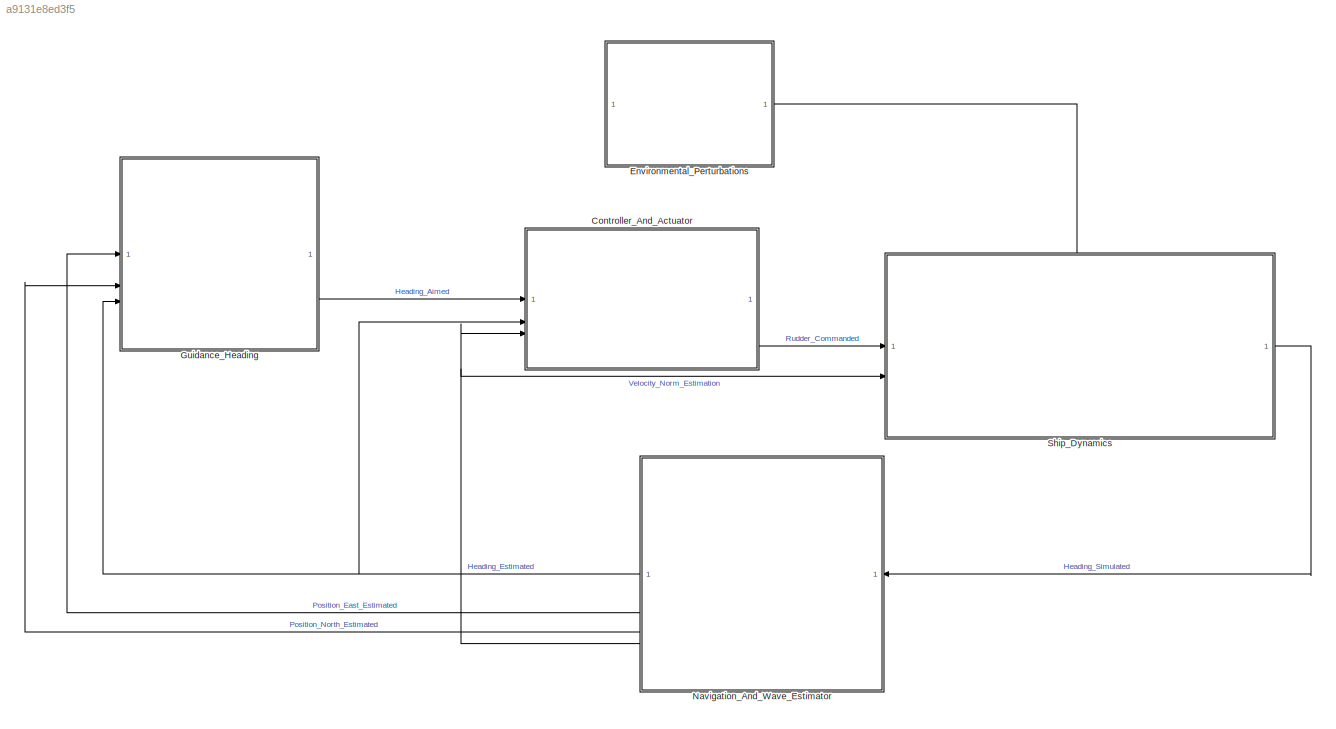
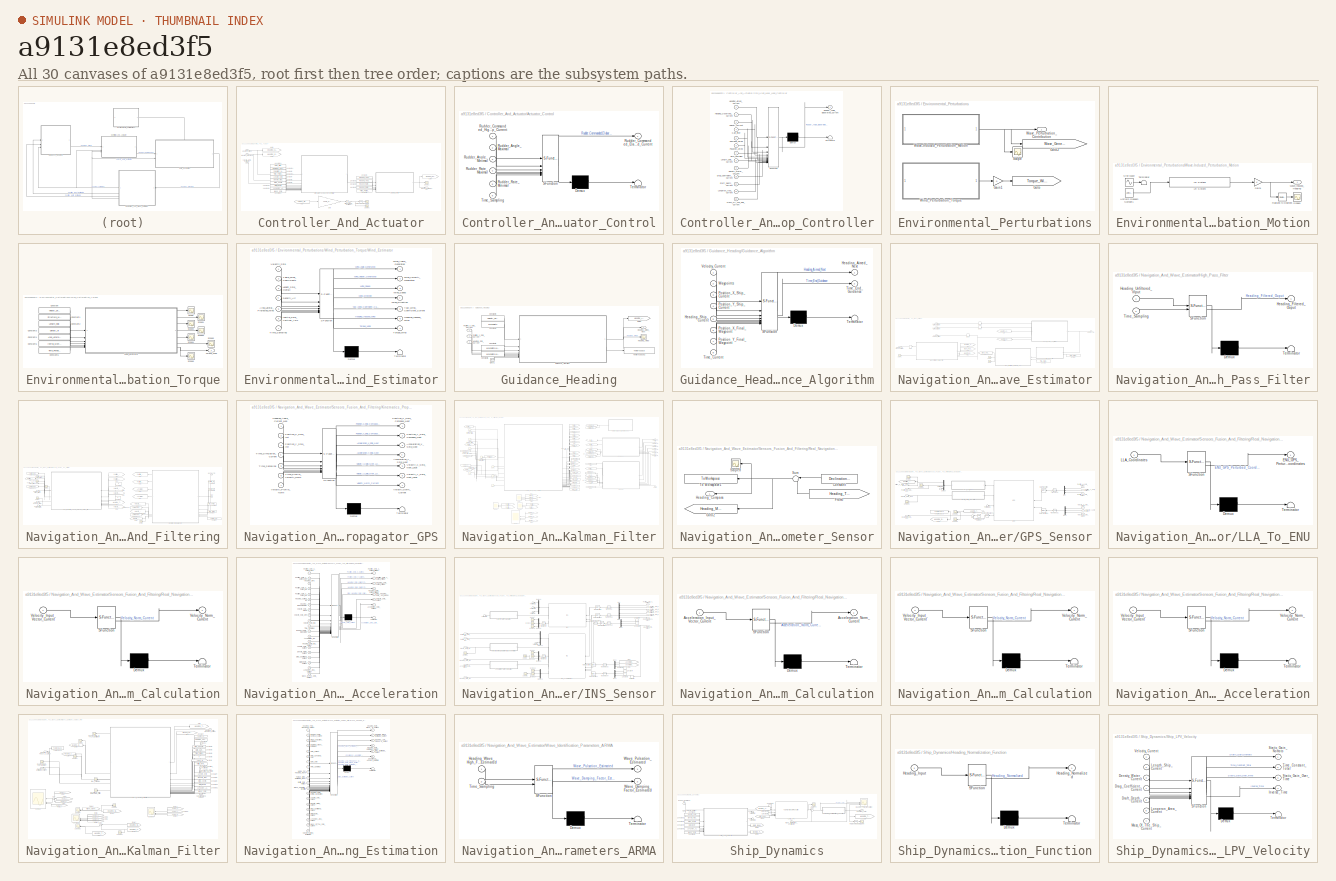
[diagram: thumbnail index - all 30 canvases of the model, root first then tree order]
MODEL slx_a9131e8ed3f5
KIND model
CONFIG AbsTol = auto
CONFIG EnableMultiTasking = off
CONFIG FixedStep = auto
CONFIG MaxStep = auto
CONFIG MinStep = auto
CONFIG RelTol = 1e-3
CONFIG SampleTimeConstraint = Unconstrained
CONFIG SolverName = VariableStepAuto
CONFIG StartTime = 0.0
CONFIG StopTime = 2000
BLOCK [SubSystem] Controller_And_Actuator
BLOCK [SubSystem] Controller_And_Actuator/Actuator_Control
  ErrorFcn = Stateflow.Translate.translate
  PermitHierarchicalResolution = ExplicitOnly
  SFBlockType = MATLAB Function
  SystemSampleTime = Time_Period_Sampling
  TreatAsAtomicUnit = on
BLOCK [Demux] Controller_And_Actuator/Actuator_Control/ Demux 
  Outputs = 1
BLOCK [S-Function] Controller_And_Actuator/Actuator_Control/ SFunction 
  EnableBusSupport = on
  FunctionName = sf_sfun
  PortCounts = [6 2]
  SFcnIsStateOwnerBlock = off
  SFunctionDeploymentMode = off
  Tag = Stateflow S-Function 2
BLOCK [Terminator] Controller_And_Actuator/Actuator_Control/ Terminator 
BLOCK [Inport] Controller_And_Actuator/Actuator_Control/Rudder_Angle_Maximal
  Port = 2
BLOCK [Inport] Controller_And_Actuator/Actuator_Control/Rudder_Angle_Minimal
  Port = 3
BLOCK [Outport] Controller_And_Actuator/Actuator_Control/Rudder_Commanded_Elaborated_Current
BLOCK [Inport] Controller_And_Actuator/Actuator_Control/Rudder_Commanded_High_Level_Loop_Current
BLOCK [Inport] Controller_And_Actuator/Actuator_Control/Rudder_Rate_Maximal
  Port = 4
BLOCK [Inport] Controller_And_Actuator/Actuator_Control/Rudder_Rate_Minimal
  Port = 5
BLOCK [Inport] Controller_And_Actuator/Actuator_Control/Time_Sampling
  Port = 6
BLOCK [Constant] Controller_And_Actuator/Constant1
  Value = Rudder_Angle_Maximal
BLOCK [Constant] Controller_And_Actuator/Constant10
  Value = Draft_Depth
BLOCK [Constant] Controller_And_Actuator/Constant11
  Value = Longeron_Area
BLOCK [Constant] Controller_And_Actuator/Constant12
  Value = Mass_Ship
BLOCK [Constant] Controller_And_Actuator/Constant2
  Value = Rudder_Angle_Minimal
BLOCK [Constant] Controller_And_Actuator/Constant23
  Value = Gain_Filter
BLOCK [Constant] Controller_And_Actuator/Constant24
  Value = Damping_Coefficient
BLOCK [Constant] Controller_And_Actuator/Constant25
  Value = Time_Period_Sampling
BLOCK [Constant] Controller_And_Actuator/Constant3
  Value = Rudder_Rate_Maximal
BLOCK [Constant] Controller_And_Actuator/Constant4
  Value = Rudder_Rate_Minimal
BLOCK [Constant] Controller_And_Actuator/Constant5
  Value = Time_Period_Sampling
BLOCK [Constant] Controller_And_Actuator/Constant6
  Value = Pulsation_Natural
BLOCK [Constant] Controller_And_Actuator/Constant7
  Value = Length_Ship
BLOCK [Constant] Controller_And_Actuator/Constant8
  Value = Density_Water_Salted
BLOCK [Constant] Controller_And_Actuator/Constant9
  Value = Drag_Coefficient
BLOCK [Gain] Controller_And_Actuator/Dimensioning_Coefficient
  Gain = 0
BLOCK [From] Controller_And_Actuator/From
  GotoTag = Torque_Wind_Generated
  TagVisibility = global
BLOCK [Gain] Controller_And_Actuator/Gain
  Gain = 1/Yaw_Control_Hydrodynamics_Derivative
BLOCK [Goto] Controller_And_Actuator/Goto2
  GotoTag = Heading_Guidance
  TagVisibility = global
BLOCK [Goto] Controller_And_Actuator/Goto3
  GotoTag = Heading_Observed
  TagVisibility = global
BLOCK [Goto] Controller_And_Actuator/Goto4
  GotoTag = Rudder_Commanded
  TagVisibility = global
BLOCK [Inport] Controller_And_Actuator/Heading_Aimed
BLOCK [Inport] Controller_And_Actuator/Heading_Observed
  Port = 2
BLOCK [Reference] Controller_And_Actuator/Radians to Degrees  REF=simulink_extras/Transformations/Radians
to Degrees
  SourceBlock = simulink_extras/Transformations/Radians\nto Degrees
  SourceType = RadiansToDegrees
BLOCK [Outport] Controller_And_Actuator/Rudder_Commanded
BLOCK [Scope] Controller_And_Actuator/Scope
  Floating = off
  NumInputPorts = 1
  ScopeSpecificationString = Simulink.scopes.TimeScopeBlockCfg('CurrentConfiguration', extmgr.ConfigurationSet(extmgr.Configuration('Core','General UI',true),extmgr.Configuration('Core','Source UI',true),extmgr.Configuration('Sources','WiredSimulink',true,'DataLoggingVariableName','ScopeData1'),extmgr.Configuration('Visuals','Time Domain',true,'SerializedDisplays',{struct('MinYLimReal','-1.00000','MaxYLimReal','1.00000','YLab...<+1491ch>
BLOCK [Scope] Controller_And_Actuator/Scope1
  Floating = off
  NumInputPorts = 1
  ScopeSpecificationString = Simulink.scopes.TimeScopeBlockCfg('CurrentConfiguration', extmgr.ConfigurationSet(extmgr.Configuration('Core','General UI',true),extmgr.Configuration('Core','Source UI',true),extmgr.Configuration('Sources','WiredSimulink',true,'DataLoggingVariableName','ScopeData2'),extmgr.Configuration('Visuals','Time Domain',true,'SerializedDisplays',{struct('MinYLimReal','-0.06884','MaxYLimReal','0.63816','YLab...<+1483ch>
BLOCK [Scope] Controller_And_Actuator/Scope2
  Floating = off
  NumInputPorts = 1
  ScopeSpecificationString = Simulink.scopes.TimeScopeBlockCfg('CurrentConfiguration', extmgr.ConfigurationSet(extmgr.Configuration('Core','General UI',true),extmgr.Configuration('Core','Source UI',true),extmgr.Configuration('Sources','WiredSimulink',true,'DataLoggingVariableName','ScopeData2'),extmgr.Configuration('Visuals','Time Domain',true,'SerializedDisplays',{struct('MinYLimReal','-1.00000','MaxYLimReal','1.00000','YLab...<+1497ch>
BLOCK [SubSystem] Controller_And_Actuator/Ship_High_Level_Loop_Controller
  ErrorFcn = Stateflow.Translate.translate
  PermitHierarchicalResolution = ExplicitOnly
  SFBlockType = MATLAB Function
  SystemSampleTime = Time_Period_Sampling
  TreatAsAtomicUnit = on
BLOCK [Demux] Controller_And_Actuator/Ship_High_Level_Loop_Controller/ Demux 
  Outputs = 1
BLOCK [S-Function] Controller_And_Actuator/Ship_High_Level_Loop_Controller/ SFunction 
  EnableBusSupport = on
  FunctionName = sf_sfun
  PortCounts = [13 2]
  SFcnIsStateOwnerBlock = off
  SFunctionDeploymentMode = off
  Tag = Stateflow S-Function 13
BLOCK [Terminator] Controller_And_Actuator/Ship_High_Level_Loop_Controller/ Terminator 
BLOCK [Inport] Controller_And_Actuator/Ship_High_Level_Loop_Controller/Damping_Aimed
  Port = 5
BLOCK [Inport] Controller_And_Actuator/Ship_High_Level_Loop_Controller/Density_Water_Current
  Port = 9
BLOCK [Inport] Controller_And_Actuator/Ship_High_Level_Loop_Controller/Draft_Depth_Current
  Port = 11
BLOCK [Inport] Controller_And_Actuator/Ship_High_Level_Loop_Controller/Drag_Coefficient_Current
  Port = 10
BLOCK [Inport] Controller_And_Actuator/Ship_High_Level_Loop_Controller/Gain_Filter
  Port = 4
BLOCK [Inport] Controller_And_Actuator/Ship_High_Level_Loop_Controller/Heading_Aimed_Current
BLOCK [Inport] Controller_And_Actuator/Ship_High_Level_Loop_Controller/Heading_Observed_Current
  Port = 2
BLOCK [Inport] Controller_And_Actuator/Ship_High_Level_Loop_Controller/Length_Ship_Current
  Port = 8
BLOCK [Inport] Controller_And_Actuator/Ship_High_Level_Loop_Controller/Longeron_Area_Current
  Port = 12
BLOCK [Inport] Controller_And_Actuator/Ship_High_Level_Loop_Controller/Mass_Of_The_Ship_Current
  Port = 13
BLOCK [Inport] Controller_And_Actuator/Ship_High_Level_Loop_Controller/Pulsation_Aimed
  Port = 6
BLOCK [Outport] Controller_And_Actuator/Ship_High_Level_Loop_Controller/Rudder_Angle_Elaborated_Current
BLOCK [Inport] Controller_And_Actuator/Ship_High_Level_Loop_Controller/Time_Sampling
  Port = 7
BLOCK [Inport] Controller_And_Actuator/Ship_High_Level_Loop_Controller/Velocity_Current
  Port = 3
BLOCK [Inport] Controller_And_Actuator/Velocity_Norm_Estimated
  Port = 3
BLOCK [SubSystem] Environmental_Perturbations
BLOCK [Gain] Environmental_Perturbations/Gain1
  Gain = 0
BLOCK [Goto] Environmental_Perturbations/Goto
  GotoTag = Torque_Wind_Generated
  TagVisibility = global
BLOCK [Goto] Environmental_Perturbations/Goto2
  GotoTag = Wave_Generated_Signal
  TagVisibility = global
BLOCK [Scope] Environmental_Perturbations/Scope
  Floating = off
  NumInputPorts = 1
  ScopeSpecificationString = Simulink.scopes.TimeScopeBlockCfg('CurrentConfiguration', extmgr.ConfigurationSet(extmgr.Configuration('Core','General UI',true),extmgr.Configuration('Core','Source UI',true),extmgr.Configuration('Sources','WiredSimulink',true,'DataLoggingVariableName','ScopeData2'),extmgr.Configuration('Visuals','Time Domain',true,'SerializedDisplays',{struct('MinYLimReal','-0.07145','MaxYLimReal','0.07087','YLab...<+1499ch>
BLOCK [SubSystem] Environmental_Perturbations/Wave-Induced_Perturbation_Motion
BLOCK [Gain] Environmental_Perturbations/Wave-Induced_Perturbation_Motion/Gain1
BLOCK [Reference] Environmental_Perturbations/Wave-Induced_Perturbation_Motion/LTI System  REF=cstblocks/LTI System
  SourceBlock = cstblocks/LTI System
  SourceType = LTI Block
BLOCK [Reference] Environmental_Perturbations/Wave-Induced_Perturbation_Motion/Radians to Degrees  REF=simulink_extras/Transformations/Radians
to Degrees
  SourceBlock = simulink_extras/Transformations/Radians\nto Degrees
  SourceType = RadiansToDegrees
BLOCK [Scope] Environmental_Perturbations/Wave-Induced_Perturbation_Motion/Scope1
  Floating = off
  NumInputPorts = 1
  ScopeSpecificationString = Simulink.scopes.TimeScopeBlockCfg('CurrentConfiguration', extmgr.ConfigurationSet(extmgr.Configuration('Core','General UI',true),extmgr.Configuration('Core','Source UI',true),extmgr.Configuration('Sources','WiredSimulink',true,'DataLoggingVariableName','ScopeData1'),extmgr.Configuration('Visuals','Time Domain',true,'SerializedDisplays',{struct('MinYLimReal','-7.5','MaxYLimReal','7.5','YLabelReal',...<+1496ch>
BLOCK [Sin] Environmental_Perturbations/Wave-Induced_Perturbation_Motion/Sine Wave
  Amplitude = 2*(pi/180)
  Frequency = Pulsation_Wave
  SampleTime = 0
BLOCK [Terminator] Environmental_Perturbations/Wave-Induced_Perturbation_Motion/Terminator
BLOCK [UniformRandomNumber] Environmental_Perturbations/Wave-Induced_Perturbation_Motion/Uniform Random Number1
  Maximum = 10*(pi/180)
  Minimum = -10*(pi/180)
  SampleTime = Time_Period_Sampling
BLOCK [Outport] Environmental_Perturbations/Wave-Induced_Perturbation_Motion/Wave_Induced_Heading
BLOCK [Outport] Environmental_Perturbations/Wave_Perturbation_Contribution
BLOCK [SubSystem] Environmental_Perturbations/Wind_Perturbation_Torque
BLOCK [Constant] Environmental_Perturbations/Wind_Perturbation_Torque/Constant
  Value = Velocity_Ship_Mean
BLOCK [Constant] Environmental_Perturbations/Wind_Perturbation_Torque/Constant1
  Value = Structure_Wind_Coefficient
BLOCK [Constant] Environmental_Perturbations/Wind_Perturbation_Torque/Constant2
  Value = Length_Ship
BLOCK [Constant] Environmental_Perturbations/Wind_Perturbation_Torque/Constant3
  Value = Density_Air
BLOCK [Constant] Environmental_Perturbations/Wind_Perturbation_Torque/Constant4
  Value = Area_Lateral_Projected_Wind
BLOCK [Constant] Environmental_Perturbations/Wind_Perturbation_Torque/Constant5
  Value = Inertia_Moment
BLOCK [Constant] Environmental_Perturbations/Wind_Perturbation_Torque/Constant6
  Value = Time_Period_Sampling
BLOCK [Scope] Environmental_Perturbations/Wind_Perturbation_Torque/Scope
  Floating = off
  NumInputPorts = 1
  ScopeSpecificationString = Simulink.scopes.TimeScopeBlockCfg('CurrentConfiguration', extmgr.ConfigurationSet(extmgr.Configuration('Core','General UI',true),extmgr.Configuration('Core','Source UI',true),extmgr.Configuration('Sources','WiredSimulink',true,'DataLoggingVariableName','ScopeData1'),extmgr.Configuration('Visuals','Time Domain',true,'SerializedDisplays',{struct('MinYLimReal','0.46624','MaxYLimReal','1.26479','YLabe...<+1546ch>
BLOCK [Scope] Environmental_Perturbations/Wind_Perturbation_Torque/Scope1
  Floating = off
  NumInputPorts = 1
  ScopeSpecificationString = Simulink.scopes.TimeScopeBlockCfg('CurrentConfiguration', extmgr.ConfigurationSet(extmgr.Configuration('Core','General UI',true),extmgr.Configuration('Core','Source UI',true),extmgr.Configuration('Sources','WiredSimulink',true,'DataLoggingVariableName','ScopeData2'),extmgr.Configuration('Visuals','Time Domain',true,'SerializedDisplays',{struct('MinYLimReal','0.11602','MaxYLimReal','1.85545','YLabe...<+1493ch>
BLOCK [Scope] Environmental_Perturbations/Wind_Perturbation_Torque/Scope2
  Floating = off
  NumInputPorts = 1
  ScopeSpecificationString = Simulink.scopes.TimeScopeBlockCfg('CurrentConfiguration', extmgr.ConfigurationSet(extmgr.Configuration('Core','General UI',true),extmgr.Configuration('Core','Source UI',true),extmgr.Configuration('Sources','WiredSimulink',true,'DataLoggingVariableName','ScopeData3'),extmgr.Configuration('Visuals','Time Domain',true,'SerializedDisplays',{struct('MinYLimReal','0.60345','MaxYLimReal','1.85596','YLabe...<+1480ch>
BLOCK [Scope] Environmental_Perturbations/Wind_Perturbation_Torque/Scope3
  Floating = off
  NumInputPorts = 1
  ScopeSpecificationString = Simulink.scopes.TimeScopeBlockCfg('CurrentConfiguration', extmgr.ConfigurationSet(extmgr.Configuration('Core','General UI',true),extmgr.Configuration('Core','Source UI',true),extmgr.Configuration('Sources','WiredSimulink',true,'DataLoggingVariableName','ScopeData4'),extmgr.Configuration('Visuals','Time Domain',true,'SerializedDisplays',{struct('MinYLimReal','0.041','MaxYLimReal','1.52319','YLabelR...<+1476ch>
BLOCK [Scope] Environmental_Perturbations/Wind_Perturbation_Torque/Scope4
  Floating = off
  NumInputPorts = 1
  ScopeSpecificationString = Simulink.scopes.TimeScopeBlockCfg('CurrentConfiguration', extmgr.ConfigurationSet(extmgr.Configuration('Core','General UI',true),extmgr.Configuration('Core','Source UI',true),extmgr.Configuration('Sources','WiredSimulink',true,'DataLoggingVariableName','ScopeData5'),extmgr.Configuration('Visuals','Time Domain',true,'SerializedDisplays',{struct('MinYLimReal','-0.21415','MaxYLimReal','0.12731','YLab...<+1519ch>
BLOCK [Scope] Environmental_Perturbations/Wind_Perturbation_Torque/Scope5
  Floating = off
  NumInputPorts = 1
  ScopeSpecificationString = Simulink.scopes.TimeScopeBlockCfg('CurrentConfiguration', extmgr.ConfigurationSet(extmgr.Configuration('Core','General UI',true),extmgr.Configuration('Core','Source UI',true),extmgr.Configuration('Sources','WiredSimulink',true,'DataLoggingVariableName','ScopeData6'),extmgr.Configuration('Visuals','Time Domain',true,'SerializedDisplays',{struct('MinYLimReal','-25538.74251','MaxYLimReal','229864.390...<+1561ch>
BLOCK [Scope] Environmental_Perturbations/Wind_Perturbation_Torque/Scope6
  Floating = off
  NumInputPorts = 1
  ScopeSpecificationString = Simulink.scopes.TimeScopeBlockCfg('CurrentConfiguration', extmgr.ConfigurationSet(extmgr.Configuration('Core','General UI',true),extmgr.Configuration('Core','Source UI',true),extmgr.Configuration('Sources','WiredSimulink',true,'DataLoggingVariableName','ScopeData7'),extmgr.Configuration('Visuals','Time Domain',true,'SerializedDisplays',{struct('MinYLimReal','-89.63768','MaxYLimReal','829.34771','Y...<+1509ch>
BLOCK [Outport] Environmental_Perturbations/Wind_Perturbation_Torque/Torque_Wind
BLOCK [SubSystem] Environmental_Perturbations/Wind_Perturbation_Torque/Wind_Estimator
  ErrorFcn = Stateflow.Translate.translate
  PermitHierarchicalResolution = ExplicitOnly
  SFBlockType = MATLAB Function
  SystemSampleTime = Time_Period_Sampling
  TreatAsAtomicUnit = on
BLOCK [Demux] Environmental_Perturbations/Wind_Perturbation_Torque/Wind_Estimator/ Demux 
  Outputs = 1
BLOCK [S-Function] Environmental_Perturbations/Wind_Perturbation_Torque/Wind_Estimator/ SFunction 
  EnableBusSupport = on
  FunctionName = sf_sfun
  PortCounts = [7 8]
  SFcnIsStateOwnerBlock = off
  SFunctionDeploymentMode = off
  Tag = Stateflow S-Function 8
BLOCK [Terminator] Environmental_Perturbations/Wind_Perturbation_Torque/Wind_Estimator/ Terminator 
BLOCK [Inport] Environmental_Perturbations/Wind_Perturbation_Torque/Wind_Estimator/Area_Lateral_Projected_Wind
  Port = 5
BLOCK [Inport] Environmental_Perturbations/Wind_Perturbation_Torque/Wind_Estimator/Density_Air
  Port = 4
BLOCK [Outport] Environmental_Perturbations/Wind_Perturbation_Torque/Wind_Estimator/Heading_Induced_Wind
  Port = 6
BLOCK [Inport] Environmental_Perturbations/Wind_Perturbation_Torque/Wind_Estimator/Inertia_Ship_Vertical_Axis
  Port = 6
BLOCK [Inport] Environmental_Perturbations/Wind_Perturbation_Torque/Wind_Estimator/Lenght_Ship_Overall
  Port = 3
BLOCK [Inport] Environmental_Perturbations/Wind_Perturbation_Torque/Wind_Estimator/Table_Wind_Coefficients
  Port = 2
BLOCK [Inport] Environmental_Perturbations/Wind_Perturbation_Torque/Wind_Estimator/Time_Sampling
  Port = 7
BLOCK [Outport] Environmental_Perturbations/Wind_Perturbation_Torque/Wind_Estimator/Torque_Wind
  Port = 7
BLOCK [Inport] Environmental_Perturbations/Wind_Perturbation_Torque/Wind_Estimator/Velocity_Ship
BLOCK [Outport] Environmental_Perturbations/Wind_Perturbation_Torque/Wind_Estimator/Wind_Angle_Generated
BLOCK [Outport] Environmental_Perturbations/Wind_Perturbation_Torque/Wind_Estimator/Wind_Direction
  Port = 4
BLOCK [Outport] Environmental_Perturbations/Wind_Perturbation_Torque/Wind_Estimator/Wind_Speed
  Port = 3
BLOCK [Outport] Environmental_Perturbations/Wind_Perturbation_Torque/Wind_Estimator/Wind_Velocity_Generated
  Port = 2
BLOCK [Outport] Environmental_Perturbations/Wind_Perturbation_Torque/Wind_Estimator/Yaw_Wind_Coefficient_Current
  Port = 5
BLOCK [SubSystem] Guidance_Heading
BLOCK [Clock] Guidance_Heading/Clock1
BLOCK [Constant] Guidance_Heading/Constant3
  Value = Velocity_Ship_Mean
BLOCK [Constant] Guidance_Heading/Constant4
  Value = Waypoints
BLOCK [Constant] Guidance_Heading/Constant5
  Value = Waypoints(end,1)
BLOCK [Constant] Guidance_Heading/Constant6
  Value = Waypoints(end,2)
BLOCK [Goto] Guidance_Heading/Goto5
  GotoTag = Heading_Aimed
  TagVisibility = global
BLOCK [SubSystem] Guidance_Heading/Guidance_Algorithm
  ErrorFcn = Stateflow.Translate.translate
  PermitHierarchicalResolution = ExplicitOnly
  SFBlockType = MATLAB Function
  SystemSampleTime = Time_Guidance_Sampling*3
  TreatAsAtomicUnit = on
BLOCK [Demux] Guidance_Heading/Guidance_Algorithm/ Demux 
  Outputs = 1
BLOCK [S-Function] Guidance_Heading/Guidance_Algorithm/ SFunction 
  EnableBusSupport = on
  FunctionName = sf_sfun
  PortCounts = [8 3]
  SFcnIsStateOwnerBlock = off
  SFunctionDeploymentMode = off
  Tag = Stateflow S-Function 1
BLOCK [Terminator] Guidance_Heading/Guidance_Algorithm/ Terminator 
BLOCK [Outport] Guidance_Heading/Guidance_Algorithm/Heading_Aimed_Next
BLOCK [Inport] Guidance_Heading/Guidance_Algorithm/Heading_Ship_Current
  Port = 5
BLOCK [Inport] Guidance_Heading/Guidance_Algorithm/Position_X_Final_Waypoint
  Port = 6
BLOCK [Inport] Guidance_Heading/Guidance_Algorithm/Position_X_Ship_Current
  Port = 3
BLOCK [Inport] Guidance_Heading/Guidance_Algorithm/Position_Y_Final_Waypoint
  Port = 7
BLOCK [Inport] Guidance_Heading/Guidance_Algorithm/Position_Y_Ship_Current
  Port = 4
BLOCK [Inport] Guidance_Heading/Guidance_Algorithm/Time_Current
  Port = 8
BLOCK [Outport] Guidance_Heading/Guidance_Algorithm/Time_End_Guidance
  Port = 2
BLOCK [Inport] Guidance_Heading/Guidance_Algorithm/Velocity_Current
BLOCK [Inport] Guidance_Heading/Guidance_Algorithm/Waypoints
  Port = 2
BLOCK [Scope] Guidance_Heading/Heading_Aimed
  Floating = off
  NumInputPorts = 1
  ScopeSpecificationString = Simulink.scopes.TimeScopeBlockCfg('CurrentConfiguration', extmgr.ConfigurationSet(extmgr.Configuration('Core','General UI',true),extmgr.Configuration('Core','Source UI',true),extmgr.Configuration('Sources','WiredSimulink',true,'DataLoggingVariableName','ScopeData13'),extmgr.Configuration('Visuals','Time Domain',true,'SerializedDisplays',{struct('MinYLimReal','0.89969','MaxYLimReal','2.67109','YLab...<+1537ch>
BLOCK [Outport] Guidance_Heading/Heading_Aimed_Next
BLOCK [Inport] Guidance_Heading/Heading_Ship_Current
  Port = 3
BLOCK [Inport] Guidance_Heading/Position_X_Ship_Current
BLOCK [Inport] Guidance_Heading/Position_Y_Ship_Current
  Port = 2
BLOCK [ToWorkspace] Guidance_Heading/To Workspace2
  FixptAsFi = on
  MaxDataPoints = inf
  SampleTime = -1
  SaveFormat = Timeseries
  VariableName = Time_End_Guidance_Algorithm
BLOCK [SubSystem] Navigation_And_Wave_Estimator
BLOCK [Constant] Navigation_And_Wave_Estimator/Constant1
  Value = Time_Period_Sampling
BLOCK [Constant] Navigation_And_Wave_Estimator/Constant2
  Value = Time_Period_Sampling
BLOCK [Delay] Navigation_And_Wave_Estimator/Delay
  DelayLength = 1
  InputPortMap = u0
  InputProcessing = Columns as channels (frame based)
  NameLocation = top
  SampleTime = Time_Period_Sampling
BLOCK [Delay] Navigation_And_Wave_Estimator/Delay1
  DelayLength = 1
  InputPortMap = u0
  InputProcessing = Columns as channels (frame based)
  NameLocation = top
  SampleTime = Time_Period_Sampling
BLOCK [Delay] Navigation_And_Wave_Estimator/Delay2
  DelayLength = 1
  InputPortMap = u0
  InputProcessing = Columns as channels (frame based)
  NameLocation = top
  SampleTime = Time_Period_Sampling
BLOCK [Delay] Navigation_And_Wave_Estimator/Delay3
  DelayLength = 1
  InputPortMap = u0
  InputProcessing = Columns as channels (frame based)
  NameLocation = top
  SampleTime = Time_Period_Sampling
BLOCK [From] Navigation_And_Wave_Estimator/From
  GotoTag = Heading_Ship_Fused_Filtered
BLOCK [From] Navigation_And_Wave_Estimator/From1
  GotoTag = Wave_Pulsation_Estimated
BLOCK [From] Navigation_And_Wave_Estimator/From2
  GotoTag = Heading_Rate_Current_Filtered
  TagVisibility = global
BLOCK [Goto] Navigation_And_Wave_Estimator/Goto
  GotoTag = Heading_Ship_Fused_Filtered
BLOCK [Goto] Navigation_And_Wave_Estimator/Goto1
  GotoTag = Wave_Pulsation_Estimated
BLOCK [Goto] Navigation_And_Wave_Estimator/Goto2
  GotoTag = Heading_Rate_Current_Filtered
  TagVisibility = global
BLOCK [Outport] Navigation_And_Wave_Estimator/Heading_Low_Frequency_Filtered_Estimated
BLOCK [Inport] Navigation_And_Wave_Estimator/Heading_Total
BLOCK [SubSystem] Navigation_And_Wave_Estimator/High_Pass_Filter
  ErrorFcn = Stateflow.Translate.translate
  PermitHierarchicalResolution = ExplicitOnly
  SFBlockType = MATLAB Function
  SystemSampleTime = Time_Period_Sampling
  TreatAsAtomicUnit = on
BLOCK [Demux] Navigation_And_Wave_Estimator/High_Pass_Filter/ Demux 
  Outputs = 1
BLOCK [S-Function] Navigation_And_Wave_Estimator/High_Pass_Filter/ SFunction 
  EnableBusSupport = on
  FunctionName = sf_sfun
  PortCounts = [2 2]
  SFcnIsStateOwnerBlock = off
  SFunctionDeploymentMode = off
  Tag = Stateflow S-Function 10
BLOCK [Terminator] Navigation_And_Wave_Estimator/High_Pass_Filter/ Terminator 
BLOCK [Outport] Navigation_And_Wave_Estimator/High_Pass_Filter/Heading_Filtered_Ouput
BLOCK [Inport] Navigation_And_Wave_Estimator/High_Pass_Filter/Heading_Unfiltered_Input
BLOCK [Inport] Navigation_And_Wave_Estimator/High_Pass_Filter/Time_Sampling
  Port = 2
BLOCK [Outport] Navigation_And_Wave_Estimator/Position_X_Ship_Current_Estimated
  Port = 2
BLOCK [Outport] Navigation_And_Wave_Estimator/Position_Y_Ship_Current_Estimated
  Port = 3
BLOCK [Scope] Navigation_And_Wave_Estimator/Scope
  Floating = off
  NumInputPorts = 1
  ScopeSpecificationString = Simulink.scopes.TimeScopeBlockCfg('CurrentConfiguration', extmgr.ConfigurationSet(extmgr.Configuration('Core','General UI',true),extmgr.Configuration('Core','Source UI',true),extmgr.Configuration('Sources','WiredSimulink',true,'DataLoggingVariableName','ScopeData1'),extmgr.Configuration('Visuals','Time Domain',true,'SerializedDisplays',{struct('MinYLimReal','-0.005137','MaxYLimReal','-0.005085','Y...<+1542ch>
BLOCK [Scope] Navigation_And_Wave_Estimator/Scope1
  Floating = off
  NumInputPorts = 1
  ScopeSpecificationString = Simulink.scopes.TimeScopeBlockCfg('CurrentConfiguration', extmgr.ConfigurationSet(extmgr.Configuration('Core','General UI',true),extmgr.Configuration('Core','Source UI',true),extmgr.Configuration('Sources','WiredSimulink',true,'DataLoggingVariableName','ScopeData2'),extmgr.Configuration('Visuals','Time Domain',true,'SerializedDisplays',{struct('MinYLimReal','-9.81619','MaxYLimReal','92.32106','YLa...<+1585ch>
BLOCK [Scope] Navigation_And_Wave_Estimator/Scope2
  Floating = off
  NumInputPorts = 1
  ScopeSpecificationString = Simulink.scopes.TimeScopeBlockCfg('CurrentConfiguration', extmgr.ConfigurationSet(extmgr.Configuration('Core','General UI',true),extmgr.Configuration('Core','Source UI',true),extmgr.Configuration('Sources','WiredSimulink',true,'DataLoggingVariableName','ScopeData1'),extmgr.Configuration('Visuals','Time Domain',true,'SerializedDisplays',{struct('MinYLimReal','-0.16242','MaxYLimReal','0.22551','YLab...<+1508ch>
BLOCK [SubSystem] Navigation_And_Wave_Estimator/Sensors_Fusion_And_Filtering
BLOCK [Clock] Navigation_And_Wave_Estimator/Sensors_Fusion_And_Filtering/Clock
BLOCK [Constant] Navigation_And_Wave_Estimator/Sensors_Fusion_And_Filtering/Constant1
  Value = Position_Initial_X
BLOCK [Constant] Navigation_And_Wave_Estimator/Sensors_Fusion_And_Filtering/Constant2
  Value = Position_Initial_Y
BLOCK [Constant] Navigation_And_Wave_Estimator/Sensors_Fusion_And_Filtering/Constant3
  Value = Time_Period_Sampling
BLOCK [Constant] Navigation_And_Wave_Estimator/Sensors_Fusion_And_Filtering/Constant4
  Value = 0
BLOCK [Constant] Navigation_And_Wave_Estimator/Sensors_Fusion_And_Filtering/Constant5
  Value = 0
BLOCK [Constant] Navigation_And_Wave_Estimator/Sensors_Fusion_And_Filtering/Constant6
  Value = Time_Stored
BLOCK [Constant] Navigation_And_Wave_Estimator/Sensors_Fusion_And_Filtering/Constant7
  Value = Velocity_Norm_Control_Vector
BLOCK [From] Navigation_And_Wave_Estimator/Sensors_Fusion_And_Filtering/From
  GotoTag = Position_X_Ship_Propagated
  TagVisibility = global
BLOCK [From] Navigation_And_Wave_Estimator/Sensors_Fusion_And_Filtering/From1
  GotoTag = Position_Y_Ship_Propagated
  TagVisibility = global
BLOCK [From] Navigation_And_Wave_Estimator/Sensors_Fusion_And_Filtering/From2
  GotoTag = Velocity_X_Ship_Propagated
  TagVisibility = global
BLOCK [From] Navigation_And_Wave_Estimator/Sensors_Fusion_And_Filtering/From3
  GotoTag = Velocity_Y_Ship_Propagated
  TagVisibility = global
BLOCK [From] Navigation_And_Wave_Estimator/Sensors_Fusion_And_Filtering/From4
  GotoTag = Heading_Total_Wave_Control
  TagVisibility = global
BLOCK [From] Navigation_And_Wave_Estimator/Sensors_Fusion_And_Filtering/From5
  GotoTag = Velocity_Norm_Control
BLOCK [Goto] Navigation_And_Wave_Estimator/Sensors_Fusion_And_Filtering/Goto
  GotoTag = Position_X_Filtered
  TagVisibility = global
BLOCK [Goto] Navigation_And_Wave_Estimator/Sensors_Fusion_And_Filtering/Goto1
  GotoTag = Position_X_Ship_Propagated
  TagVisibility = global
BLOCK [Goto] Navigation_And_Wave_Estimator/Sensors_Fusion_And_Filtering/Goto2
  GotoTag = Position_Y_Ship_Propagated
  TagVisibility = global
BLOCK [Goto] Navigation_And_Wave_Estimator/Sensors_Fusion_And_Filtering/Goto3
  GotoTag = Velocity_X_Ship_Propagated
  TagVisibility = global
BLOCK [Goto] Navigation_And_Wave_Estimator/Sensors_Fusion_And_Filtering/Goto4
  GotoTag = Velocity_Y_Ship_Propagated
  TagVisibility = global
BLOCK [Goto] Navigation_And_Wave_Estimator/Sensors_Fusion_And_Filtering/Goto5
  GotoTag = Velocity_Norm_Control
BLOCK [Goto] Navigation_And_Wave_Estimator/Sensors_Fusion_And_Filtering/Goto6
  GotoTag = Acceleration_X_Ship_Propagated
  TagVisibility = global
BLOCK [Goto] Navigation_And_Wave_Estimator/Sensors_Fusion_And_Filtering/Goto7
  GotoTag = Acceleration_Y_Ship_Propagated
  TagVisibility = global
BLOCK [Outport] Navigation_And_Wave_Estimator/Sensors_Fusion_And_Filtering/Heading_Rate_Current_Filtered
  Port = 5
BLOCK [Outport] Navigation_And_Wave_Estimator/Sensors_Fusion_And_Filtering/Heading_Ship_Current_Filtered
  Port = 3
BLOCK [Inport] Navigation_And_Wave_Estimator/Sensors_Fusion_And_Filtering/Heading_Total
BLOCK [SubSystem] Navigation_And_Wave_Estimator/Sensors_Fusion_And_Filtering/Kinematics_Propagator_GPS
  ErrorFcn = Stateflow.Translate.translate
  PermitHierarchicalResolution = ExplicitOnly
  SFBlockType = MATLAB Function
  SystemSampleTime = Time_Period_Sampling
  TreatAsAtomicUnit = on
BLOCK [Demux] Navigation_And_Wave_Estimator/Sensors_Fusion_And_Filtering/Kinematics_Propagator_GPS/ Demux 
  Outputs = 1
BLOCK [S-Function] Navigation_And_Wave_Estimator/Sensors_Fusion_And_Filtering/Kinematics_Propagator_GPS/ SFunction 
  EnableBusSupport = on
  FunctionName = sf_sfun
  PortCounts = [7 8]
  SFcnIsStateOwnerBlock = off
  SFunctionDeploymentMode = off
  Tag = Stateflow S-Function 3
BLOCK [Terminator] Navigation_And_Wave_Estimator/Sensors_Fusion_And_Filtering/Kinematics_Propagator_GPS/ Terminator 
BLOCK [Outport] Navigation_And_Wave_Estimator/Sensors_Fusion_And_Filtering/Kinematics_Propagator_GPS/Acceleration_X_Ship_Next
  Port = 3
BLOCK [Outport] Navigation_And_Wave_Estimator/Sensors_Fusion_And_Filtering/Kinematics_Propagator_GPS/Acceleration_Y_Ship_Next
  Port = 4
BLOCK [Inport] Navigation_And_Wave_Estimator/Sensors_Fusion_And_Filtering/Kinematics_Propagator_GPS/Heading_Angle_Current_Mes
BLOCK [Outport] Navigation_And_Wave_Estimator/Sensors_Fusion_And_Filtering/Kinematics_Propagator_GPS/Position_X_Ship_Compass_Next
BLOCK [Inport] Navigation_And_Wave_Estimator/Sensors_Fusion_And_Filtering/Kinematics_Propagator_GPS/Position_X_Ship_Init
  Port = 2
BLOCK [Outport] Navigation_And_Wave_Estimator/Sensors_Fusion_And_Filtering/Kinematics_Propagator_GPS/Position_Y_Ship_Compass_Next
  Port = 2
BLOCK [Inport] Navigation_And_Wave_Estimator/Sensors_Fusion_And_Filtering/Kinematics_Propagator_GPS/Position_Y_Ship_Init
  Port = 3
BLOCK [Inport] Navigation_And_Wave_Estimator/Sensors_Fusion_And_Filtering/Kinematics_Propagator_GPS/Time_Profile_Velocity_Norm
  Port = 6
BLOCK [Inport] Navigation_And_Wave_Estimator/Sensors_Fusion_And_Filtering/Kinematics_Propagator_GPS/Time_Sampling
  Port = 5
BLOCK [Inport] Navigation_And_Wave_Estimator/Sensors_Fusion_And_Filtering/Kinematics_Propagator_GPS/Time_Simulation_Current
  Port = 4
BLOCK [Outport] Navigation_And_Wave_Estimator/Sensors_Fusion_And_Filtering/Kinematics_Propagator_GPS/Velocity_Norm_Current
  Port = 7
BLOCK [Inport] Navigation_And_Wave_Estimator/Sensors_Fusion_And_Filtering/Kinematics_Propagator_GPS/Velocity_Profile_Norm
  Port = 7
BLOCK [Outport] Navigation_And_Wave_Estimator/Sensors_Fusion_And_Filtering/Kinematics_Propagator_GPS/Velocity_X_Ship_Next_Local
  Port = 5
BLOCK [Outport] Navigation_And_Wave_Estimator/Sensors_Fusion_And_Filtering/Kinematics_Propagator_GPS/Velocity_Y_Ship_Next_Local
  Port = 6
BLOCK [Outport] Navigation_And_Wave_Estimator/Sensors_Fusion_And_Filtering/Position_Ship_X_Current_Filtered
BLOCK [Outport] Navigation_And_Wave_Estimator/Sensors_Fusion_And_Filtering/Position_Ship_Y_Current_Filtered
  Port = 2
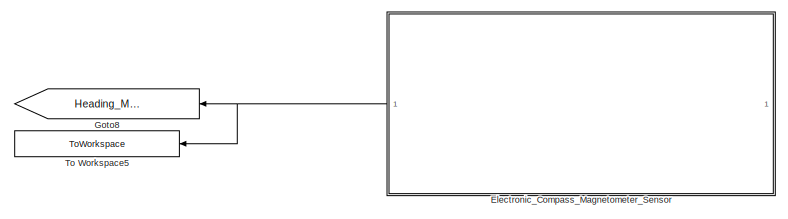
[diagram: Navigation_And_Wave_Estimator/Sensors_Fusion_And_Filtering/Real_Navigation_Sensors_Extended_Kalman_Filter - part 1/7, top right region]
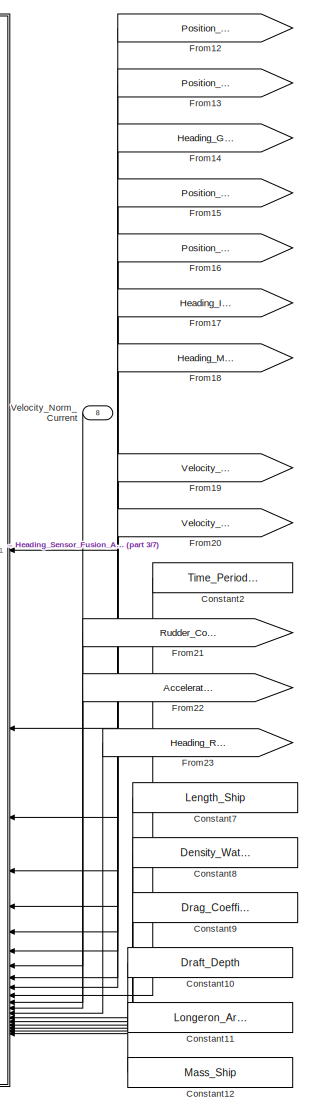
[diagram: Navigation_And_Wave_Estimator/Sensors_Fusion_And_Filtering/Real_Navigation_Sensors_Extended_Kalman_Filter - part 2/7, central region]
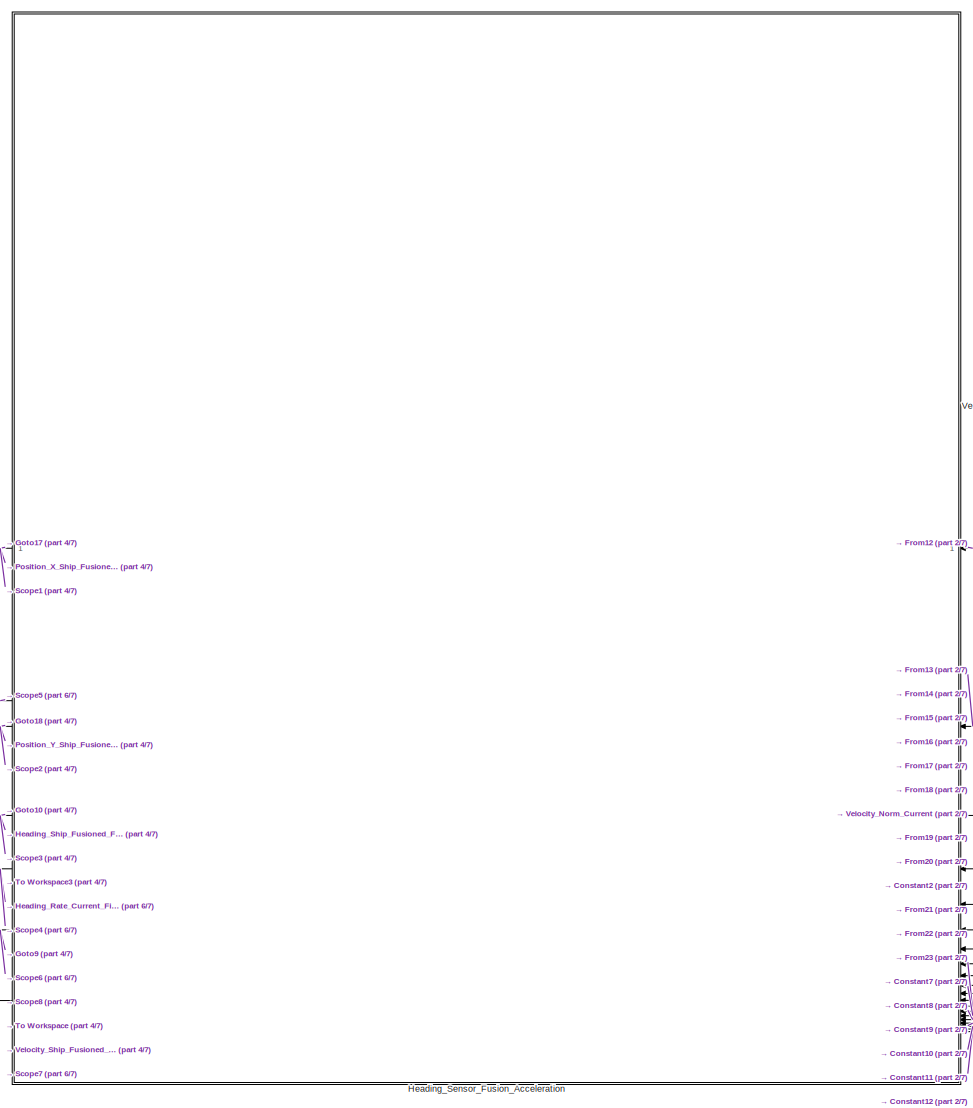
[diagram: Navigation_And_Wave_Estimator/Sensors_Fusion_And_Filtering/Real_Navigation_Sensors_Extended_Kalman_Filter - part 3/7, central region]
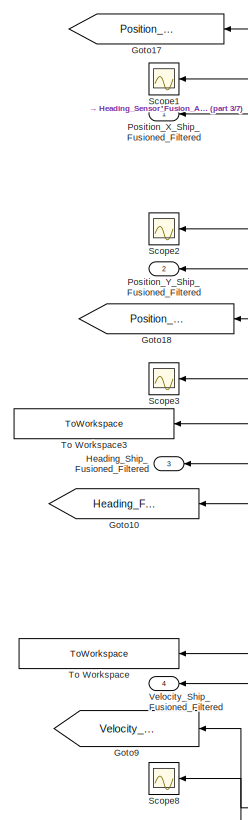
[diagram: Navigation_And_Wave_Estimator/Sensors_Fusion_And_Filtering/Real_Navigation_Sensors_Extended_Kalman_Filter - part 4/7, top left region]
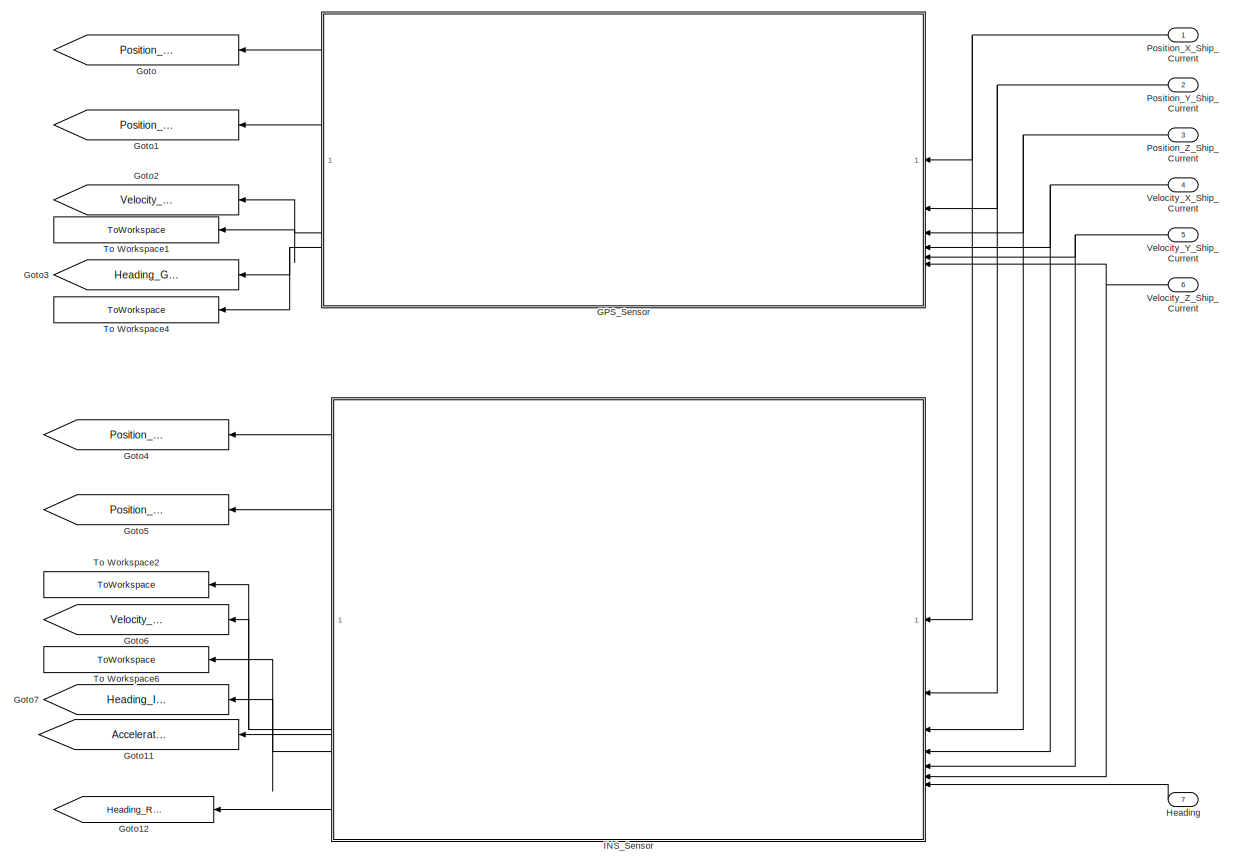
[diagram: Navigation_And_Wave_Estimator/Sensors_Fusion_And_Filtering/Real_Navigation_Sensors_Extended_Kalman_Filter - part 5/7, middle right region]
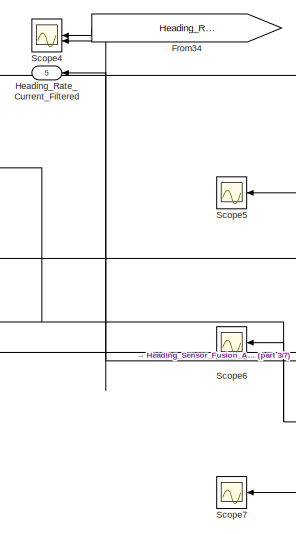
[diagram: Navigation_And_Wave_Estimator/Sensors_Fusion_And_Filtering/Real_Navigation_Sensors_Extended_Kalman_Filter - part 6/7, middle left region]
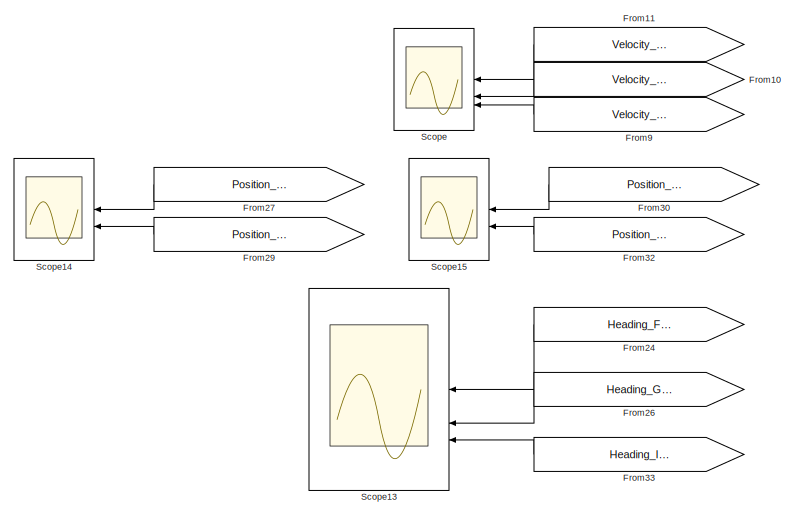
[diagram: Navigation_And_Wave_Estimator/Sensors_Fusion_And_Filtering/Real_Navigation_Sensors_Extended_Kalman_Filter - part 7/7, bottom left region]
BLOCK [SubSystem] Navigation_And_Wave_Estimator/Sensors_Fusion_And_Filtering/Real_Navigation_Sensors_Extended_Kalman_Filter
BLOCK [Constant] Navigation_And_Wave_Estimator/Sensors_Fusion_And_Filtering/Real_Navigation_Sensors_Extended_Kalman_Filter/Constant10
  Value = Draft_Depth
BLOCK [Constant] Navigation_And_Wave_Estimator/Sensors_Fusion_And_Filtering/Real_Navigation_Sensors_Extended_Kalman_Filter/Constant11
  Value = Longeron_Area
BLOCK [Constant] Navigation_And_Wave_Estimator/Sensors_Fusion_And_Filtering/Real_Navigation_Sensors_Extended_Kalman_Filter/Constant12
  Value = Mass_Ship
BLOCK [Constant] Navigation_And_Wave_Estimator/Sensors_Fusion_And_Filtering/Real_Navigation_Sensors_Extended_Kalman_Filter/Constant2
  Value = Time_Period_Sampling
BLOCK [Constant] Navigation_And_Wave_Estimator/Sensors_Fusion_And_Filtering/Real_Navigation_Sensors_Extended_Kalman_Filter/Constant7
  Value = Length_Ship
BLOCK [Constant] Navigation_And_Wave_Estimator/Sensors_Fusion_And_Filtering/Real_Navigation_Sensors_Extended_Kalman_Filter/Constant8
  Value = Density_Water_Salted
BLOCK [Constant] Navigation_And_Wave_Estimator/Sensors_Fusion_And_Filtering/Real_Navigation_Sensors_Extended_Kalman_Filter/Constant9
  Value = Drag_Coefficient
BLOCK [SubSystem] Navigation_And_Wave_Estimator/Sensors_Fusion_And_Filtering/Real_Navigation_Sensors_Extended_Kalman_Filter/Electronic_Compass_Magnetometer_Sensor
BLOCK [Constant] Navigation_And_Wave_Estimator/Sensors_Fusion_And_Filtering/Real_Navigation_Sensors_Extended_Kalman_Filter/Electronic_Compass_Magnetometer_Sensor/Constant
  Value = Declination_Sigean
BLOCK [From] Navigation_And_Wave_Estimator/Sensors_Fusion_And_Filtering/Real_Navigation_Sensors_Extended_Kalman_Filter/Electronic_Compass_Magnetometer_Sensor/From7
  GotoTag = Heading_Total_Wave_Control
  TagVisibility = global
BLOCK [Goto] Navigation_And_Wave_Estimator/Sensors_Fusion_And_Filtering/Real_Navigation_Sensors_Extended_Kalman_Filter/Electronic_Compass_Magnetometer_Sensor/Goto2
  GotoTag = Heading_Magnetometer_Noisy
  TagVisibility = global
BLOCK [Outport] Navigation_And_Wave_Estimator/Sensors_Fusion_And_Filtering/Real_Navigation_Sensors_Extended_Kalman_Filter/Electronic_Compass_Magnetometer_Sensor/Heading_Compass
BLOCK [Scope] Navigation_And_Wave_Estimator/Sensors_Fusion_And_Filtering/Real_Navigation_Sensors_Extended_Kalman_Filter/Electronic_Compass_Magnetometer_Sensor/Scope8
  Floating = off
  NumInputPorts = 1
  ScopeSpecificationString = Simulink.scopes.TimeScopeBlockCfg('CurrentConfiguration', extmgr.ConfigurationSet(extmgr.Configuration('Core','General UI',true),extmgr.Configuration('Core','Source UI',true),extmgr.Configuration('Sources','WiredSimulink',true,'DataLoggingVariableName','ScopeData11'),extmgr.Configuration('Visuals','Time Domain',true,'SerializedDisplays',{struct('MinYLimReal','-0.22743','MaxYLimReal','2.41619','YLa...<+1496ch>
BLOCK [Sum] Navigation_And_Wave_Estimator/Sensors_Fusion_And_Filtering/Real_Navigation_Sensors_Extended_Kalman_Filter/Electronic_Compass_Magnetometer_Sensor/Sum
  Inputs = |++
BLOCK [ToWorkspace] Navigation_And_Wave_Estimator/Sensors_Fusion_And_Filtering/Real_Navigation_Sensors_Extended_Kalman_Filter/Electronic_Compass_Magnetometer_Sensor/To Workspace1
  FixptAsFi = on
  MaxDataPoints = inf
  SampleTime = Time_Period_Sampling
  SaveFormat = Timeseries
  VariableName = Heading_Noisy_Magnetometer
BLOCK [From] Navigation_And_Wave_Estimator/Sensors_Fusion_And_Filtering/Real_Navigation_Sensors_Extended_Kalman_Filter/From10
  GotoTag = Velocity_Norm_GPS
BLOCK [From] Navigation_And_Wave_Estimator/Sensors_Fusion_And_Filtering/Real_Navigation_Sensors_Extended_Kalman_Filter/From11
  GotoTag = Velocity_Norm_INS
BLOCK [From] Navigation_And_Wave_Estimator/Sensors_Fusion_And_Filtering/Real_Navigation_Sensors_Extended_Kalman_Filter/From12
  GotoTag = Position_X_Ship_GPS
BLOCK [From] Navigation_And_Wave_Estimator/Sensors_Fusion_And_Filtering/Real_Navigation_Sensors_Extended_Kalman_Filter/From13
  GotoTag = Position_Y_Ship_GPS
BLOCK [From] Navigation_And_Wave_Estimator/Sensors_Fusion_And_Filtering/Real_Navigation_Sensors_Extended_Kalman_Filter/From14
  GotoTag = Heading_GPS
BLOCK [From] Navigation_And_Wave_Estimator/Sensors_Fusion_And_Filtering/Real_Navigation_Sensors_Extended_Kalman_Filter/From15
  GotoTag = Position_X_Ship_INS
BLOCK [From] Navigation_And_Wave_Estimator/Sensors_Fusion_And_Filtering/Real_Navigation_Sensors_Extended_Kalman_Filter/From16
  GotoTag = Position_Y_Ship_INS
BLOCK [From] Navigation_And_Wave_Estimator/Sensors_Fusion_And_Filtering/Real_Navigation_Sensors_Extended_Kalman_Filter/From17
  GotoTag = Heading_INS
BLOCK [From] Navigation_And_Wave_Estimator/Sensors_Fusion_And_Filtering/Real_Navigation_Sensors_Extended_Kalman_Filter/From18
  GotoTag = Heading_Magnetometer
BLOCK [From] Navigation_And_Wave_Estimator/Sensors_Fusion_And_Filtering/Real_Navigation_Sensors_Extended_Kalman_Filter/From19
  GotoTag = Velocity_Norm_GPS
BLOCK [From] Navigation_And_Wave_Estimator/Sensors_Fusion_And_Filtering/Real_Navigation_Sensors_Extended_Kalman_Filter/From20
  GotoTag = Velocity_Norm_INS
BLOCK [From] Navigation_And_Wave_Estimator/Sensors_Fusion_And_Filtering/Real_Navigation_Sensors_Extended_Kalman_Filter/From21
  GotoTag = Rudder_Commanded
  TagVisibility = global
BLOCK [From] Navigation_And_Wave_Estimator/Sensors_Fusion_And_Filtering/Real_Navigation_Sensors_Extended_Kalman_Filter/From22
  GotoTag = Acceleration_INS_Current
  TagVisibility = global
BLOCK [From] Navigation_And_Wave_Estimator/Sensors_Fusion_And_Filtering/Real_Navigation_Sensors_Extended_Kalman_Filter/From23
  GotoTag = Heading_Rate_INS_Current
  TagVisibility = global
BLOCK [From] Navigation_And_Wave_Estimator/Sensors_Fusion_And_Filtering/Real_Navigation_Sensors_Extended_Kalman_Filter/From24
  GotoTag = Heading_Fused
  TagVisibility = global
BLOCK [From] Navigation_And_Wave_Estimator/Sensors_Fusion_And_Filtering/Real_Navigation_Sensors_Extended_Kalman_Filter/From26
  GotoTag = Heading_GPS_Noisy
  TagVisibility = global
BLOCK [From] Navigation_And_Wave_Estimator/Sensors_Fusion_And_Filtering/Real_Navigation_Sensors_Extended_Kalman_Filter/From27
  GotoTag = Position_X_Filter_New
  TagVisibility = global
BLOCK [From] Navigation_And_Wave_Estimator/Sensors_Fusion_And_Filtering/Real_Navigation_Sensors_Extended_Kalman_Filter/From29
  GotoTag = Position_X_Ship_GPS
BLOCK [From] Navigation_And_Wave_Estimator/Sensors_Fusion_And_Filtering/Real_Navigation_Sensors_Extended_Kalman_Filter/From30
  GotoTag = Position_Y_Filter_New
  TagVisibility = global
BLOCK [From] Navigation_And_Wave_Estimator/Sensors_Fusion_And_Filtering/Real_Navigation_Sensors_Extended_Kalman_Filter/From32
  GotoTag = Position_Y_Ship_GPS
BLOCK [From] Navigation_And_Wave_Estimator/Sensors_Fusion_And_Filtering/Real_Navigation_Sensors_Extended_Kalman_Filter/From33
  GotoTag = Heading_INS
BLOCK [From] Navigation_And_Wave_Estimator/Sensors_Fusion_And_Filtering/Real_Navigation_Sensors_Extended_Kalman_Filter/From34
  GotoTag = Heading_Rate_INS_Current
  TagVisibility = global
BLOCK [From] Navigation_And_Wave_Estimator/Sensors_Fusion_And_Filtering/Real_Navigation_Sensors_Extended_Kalman_Filter/From9
  GotoTag = Velocity_Norm_Fused
  TagVisibility = global
BLOCK [SubSystem] Navigation_And_Wave_Estimator/Sensors_Fusion_And_Filtering/Real_Navigation_Sensors_Extended_Kalman_Filter/GPS_Sensor
BLOCK [Reference] Navigation_And_Wave_Estimator/Sensors_Fusion_And_Filtering/Real_Navigation_Sensors_Extended_Kalman_Filter/GPS_Sensor/Degrees to Radians  REF=simulink_extras/Transformations/Degrees to
Radians
  SourceBlock = simulink_extras/Transformations/Degrees to\nRadians
  SourceType = DegreesToRadians
BLOCK [Demux] Navigation_And_Wave_Estimator/Sensors_Fusion_And_Filtering/Real_Navigation_Sensors_Extended_Kalman_Filter/GPS_Sensor/Demux
  Outputs = 3
BLOCK [From] Navigation_And_Wave_Estimator/Sensors_Fusion_And_Filtering/Real_Navigation_Sensors_Extended_Kalman_Filter/GPS_Sensor/From4
  GotoTag = Heading_Total_Wave_Control
  TagVisibility = global
BLOCK [Reference] Navigation_And_Wave_Estimator/Sensors_Fusion_And_Filtering/Real_Navigation_Sensors_Extended_Kalman_Filter/GPS_Sensor/GPS  REF=sensorgpslib/GPS
  SourceBlock = sensorgpslib/GPS
  SourceType = fusion.internal.simulink.gpsSensor
BLOCK [Goto] Navigation_And_Wave_Estimator/Sensors_Fusion_And_Filtering/Real_Navigation_Sensors_Extended_Kalman_Filter/GPS_Sensor/Goto1
  GotoTag = Heading_GPS_Noisy
  TagVisibility = global
BLOCK [Goto] Navigation_And_Wave_Estimator/Sensors_Fusion_And_Filtering/Real_Navigation_Sensors_Extended_Kalman_Filter/GPS_Sensor/Goto3
  GotoTag = Position_X_Noisy
  TagVisibility = global
BLOCK [Outport] Navigation_And_Wave_Estimator/Sensors_Fusion_And_Filtering/Real_Navigation_Sensors_Extended_Kalman_Filter/GPS_Sensor/Heading_Ship_GPS
  Port = 4
BLOCK [SubSystem] Navigation_And_Wave_Estimator/Sensors_Fusion_And_Filtering/Real_Navigation_Sensors_Extended_Kalman_Filter/GPS_Sensor/LLA_To_ENU
  ErrorFcn = Stateflow.Translate.translate
  PermitHierarchicalResolution = ExplicitOnly
  SFBlockType = MATLAB Function
  SystemSampleTime = Time_Period_Sampling
  TreatAsAtomicUnit = on
BLOCK [Demux] Navigation_And_Wave_Estimator/Sensors_Fusion_And_Filtering/Real_Navigation_Sensors_Extended_Kalman_Filter/GPS_Sensor/LLA_To_ENU/ Demux 
  Outputs = 1
BLOCK [S-Function] Navigation_And_Wave_Estimator/Sensors_Fusion_And_Filtering/Real_Navigation_Sensors_Extended_Kalman_Filter/GPS_Sensor/LLA_To_ENU/ SFunction 
  EnableBusSupport = on
  FunctionName = sf_sfun
  PortCounts = [1 2]
  SFcnIsStateOwnerBlock = off
  SFunctionDeploymentMode = off
  Tag = Stateflow S-Function 6
BLOCK [Terminator] Navigation_And_Wave_Estimator/Sensors_Fusion_And_Filtering/Real_Navigation_Sensors_Extended_Kalman_Filter/GPS_Sensor/LLA_To_ENU/ Terminator 
BLOCK [Outport] Navigation_And_Wave_Estimator/Sensors_Fusion_And_Filtering/Real_Navigation_Sensors_Extended_Kalman_Filter/GPS_Sensor/LLA_To_ENU/ENU_GPS_Perturbed_Coordinates
BLOCK [Inport] Navigation_And_Wave_Estimator/Sensors_Fusion_And_Filtering/Real_Navigation_Sensors_Extended_Kalman_Filter/GPS_Sensor/LLA_To_ENU/LLA_Coordinates
BLOCK [Mux] Navigation_And_Wave_Estimator/Sensors_Fusion_And_Filtering/Real_Navigation_Sensors_Extended_Kalman_Filter/GPS_Sensor/Mux
  DisplayOption = bar
  Inputs = 3
BLOCK [Mux] Navigation_And_Wave_Estimator/Sensors_Fusion_And_Filtering/Real_Navigation_Sensors_Extended_Kalman_Filter/GPS_Sensor/Mux1
  DisplayOption = bar
  Inputs = 3
BLOCK [Inport] Navigation_And_Wave_Estimator/Sensors_Fusion_And_Filtering/Real_Navigation_Sensors_Extended_Kalman_Filter/GPS_Sensor/Position_X_Ship_Current
BLOCK [Outport] Navigation_And_Wave_Estimator/Sensors_Fusion_And_Filtering/Real_Navigation_Sensors_Extended_Kalman_Filter/GPS_Sensor/Position_X_Ship_GPS
BLOCK [Inport] Navigation_And_Wave_Estimator/Sensors_Fusion_And_Filtering/Real_Navigation_Sensors_Extended_Kalman_Filter/GPS_Sensor/Position_Y_Ship_Current
  Port = 2
BLOCK [Outport] Navigation_And_Wave_Estimator/Sensors_Fusion_And_Filtering/Real_Navigation_Sensors_Extended_Kalman_Filter/GPS_Sensor/Position_Y_Ship_GPS
  Port = 2
BLOCK [Inport] Navigation_And_Wave_Estimator/Sensors_Fusion_And_Filtering/Real_Navigation_Sensors_Extended_Kalman_Filter/GPS_Sensor/Position_Z_Ship_Current
  Port = 3
BLOCK [RateTransition] Navigation_And_Wave_Estimator/Sensors_Fusion_And_Filtering/Real_Navigation_Sensors_Extended_Kalman_Filter/GPS_Sensor/Rate Transition
  OutPortSampleTime = Time_Period_Sampling
BLOCK [RateTransition] Navigation_And_Wave_Estimator/Sensors_Fusion_And_Filtering/Real_Navigation_Sensors_Extended_Kalman_Filter/GPS_Sensor/Rate Transition1
  OutPortSampleTime = Time_Period_Sampling
BLOCK [Scope] Navigation_And_Wave_Estimator/Sensors_Fusion_And_Filtering/Real_Navigation_Sensors_Extended_Kalman_Filter/GPS_Sensor/Scope
  Floating = off
  NumInputPorts = 1
  ScopeSpecificationString = Simulink.scopes.TimeScopeBlockCfg('CurrentConfiguration', extmgr.ConfigurationSet(extmgr.Configuration('Core','General UI',true),extmgr.Configuration('Core','Source UI',true),extmgr.Configuration('Sources','WiredSimulink',true,'DataLoggingVariableName','ScopeData1'),extmgr.Configuration('Visuals','Time Domain',true,'SerializedDisplays',{struct('MinYLimReal','126.07639','MaxYLimReal','1580.02188','...<+1517ch>
BLOCK [Scope] Navigation_And_Wave_Estimator/Sensors_Fusion_And_Filtering/Real_Navigation_Sensors_Extended_Kalman_Filter/GPS_Sensor/Scope1
  Floating = off
  NumInputPorts = 1
  ScopeSpecificationString = Simulink.scopes.TimeScopeBlockCfg('CurrentConfiguration', extmgr.ConfigurationSet(extmgr.Configuration('Core','General UI',true),extmgr.Configuration('Core','Source UI',true),extmgr.Configuration('Sources','WiredSimulink',true,'DataLoggingVariableName','ScopeData2'),extmgr.Configuration('Visuals','Time Domain',true,'SerializedDisplays',{struct('MinYLimReal','292.87717','MaxYLimReal','336.51284','Y...<+1513ch>
BLOCK [Scope] Navigation_And_Wave_Estimator/Sensors_Fusion_And_Filtering/Real_Navigation_Sensors_Extended_Kalman_Filter/GPS_Sensor/Scope2
  Floating = off
  NumInputPorts = 2
  ScopeSpecificationString = Simulink.scopes.TimeScopeBlockCfg('CurrentConfiguration', extmgr.ConfigurationSet(extmgr.Configuration('Core','General UI',true),extmgr.Configuration('Core','Source UI',true),extmgr.Configuration('Sources','WiredSimulink',true,'DataLoggingVariableName','ScopeData8'),extmgr.Configuration('Visuals','Time Domain',true,'SerializedDisplays',{struct('MinYLimReal','-0.78525','MaxYLimReal','7.06726','YLab...<+1547ch>
BLOCK [Scope] Navigation_And_Wave_Estimator/Sensors_Fusion_And_Filtering/Real_Navigation_Sensors_Extended_Kalman_Filter/GPS_Sensor/Scope3
  Floating = off
  NumInputPorts = 1
  ScopeSpecificationString = Simulink.scopes.TimeScopeBlockCfg('CurrentConfiguration', extmgr.ConfigurationSet(extmgr.Configuration('Core','General UI',true),extmgr.Configuration('Core','Source UI',true),extmgr.Configuration('Sources','WiredSimulink',true,'DataLoggingVariableName','ScopeData4'),extmgr.Configuration('Visuals','Time Domain',true,'SerializedDisplays',{struct('MinYLimReal','0.31407','MaxYLimReal','1.75845','YLabe...<+1493ch>
BLOCK [Scope] Navigation_And_Wave_Estimator/Sensors_Fusion_And_Filtering/Real_Navigation_Sensors_Extended_Kalman_Filter/GPS_Sensor/Scope4
  Floating = off
  NumInputPorts = 1
  ScopeSpecificationString = Simulink.scopes.TimeScopeBlockCfg('CurrentConfiguration', extmgr.ConfigurationSet(extmgr.Configuration('Core','General UI',true),extmgr.Configuration('Core','Source UI',true),extmgr.Configuration('Sources','WiredSimulink',true,'DataLoggingVariableName','ScopeData2'),extmgr.Configuration('Visuals','Time Domain',true,'SerializedDisplays',{struct('MinYLimReal','0.84054','MaxYLimReal','1.16348','YLabe...<+1490ch>
BLOCK [Sum] Navigation_And_Wave_Estimator/Sensors_Fusion_And_Filtering/Real_Navigation_Sensors_Extended_Kalman_Filter/GPS_Sensor/Sum
  Inputs = |++
BLOCK [Terminator] Navigation_And_Wave_Estimator/Sensors_Fusion_And_Filtering/Real_Navigation_Sensors_Extended_Kalman_Filter/GPS_Sensor/Terminator1
BLOCK [Terminator] Navigation_And_Wave_Estimator/Sensors_Fusion_And_Filtering/Real_Navigation_Sensors_Extended_Kalman_Filter/GPS_Sensor/Terminator4
BLOCK [ToWorkspace] Navigation_And_Wave_Estimator/Sensors_Fusion_And_Filtering/Real_Navigation_Sensors_Extended_Kalman_Filter/GPS_Sensor/To Workspace
  FixptAsFi = on
  MaxDataPoints = inf
  SampleTime = Time_Period_Sampling
  SaveFormat = Timeseries
  VariableName = Heading_Noisy_GPS
BLOCK [Math] Navigation_And_Wave_Estimator/Sensors_Fusion_And_Filtering/Real_Navigation_Sensors_Extended_Kalman_Filter/GPS_Sensor/Transpose
  Operator = transpose
BLOCK [Math] Navigation_And_Wave_Estimator/Sensors_Fusion_And_Filtering/Real_Navigation_Sensors_Extended_Kalman_Filter/GPS_Sensor/Transpose1
  Operator = transpose
BLOCK [UniformRandomNumber] Navigation_And_Wave_Estimator/Sensors_Fusion_And_Filtering/Real_Navigation_Sensors_Extended_Kalman_Filter/GPS_Sensor/Uniform Random Number
  Maximum = 5*(pi/180)
  Minimum = -5*(pi/180)
  SampleTime = Time_Period_Sampling
BLOCK [SubSystem] Navigation_And_Wave_Estimator/Sensors_Fusion_And_Filtering/Real_Navigation_Sensors_Extended_Kalman_Filter/GPS_Sensor/Velocity_Norm_Calculation
  ErrorFcn = Stateflow.Translate.translate
  PermitHierarchicalResolution = ExplicitOnly
  SFBlockType = MATLAB Function
  TreatAsAtomicUnit = on
BLOCK [Demux] Navigation_And_Wave_Estimator/Sensors_Fusion_And_Filtering/Real_Navigation_Sensors_Extended_Kalman_Filter/GPS_Sensor/Velocity_Norm_Calculation/ Demux 
  Outputs = 1
BLOCK [S-Function] Navigation_And_Wave_Estimator/Sensors_Fusion_And_Filtering/Real_Navigation_Sensors_Extended_Kalman_Filter/GPS_Sensor/Velocity_Norm_Calculation/ SFunction 
  EnableBusSupport = on
  FunctionName = sf_sfun
  PortCounts = [1 2]
  SFcnIsStateOwnerBlock = off
  SFunctionDeploymentMode = off
  Tag = Stateflow S-Function 7
BLOCK [Terminator] Navigation_And_Wave_Estimator/Sensors_Fusion_And_Filtering/Real_Navigation_Sensors_Extended_Kalman_Filter/GPS_Sensor/Velocity_Norm_Calculation/ Terminator 
BLOCK [Inport] Navigation_And_Wave_Estimator/Sensors_Fusion_And_Filtering/Real_Navigation_Sensors_Extended_Kalman_Filter/GPS_Sensor/Velocity_Norm_Calculation/Velocity_Input_Vector_Current
BLOCK [Outport] Navigation_And_Wave_Estimator/Sensors_Fusion_And_Filtering/Real_Navigation_Sensors_Extended_Kalman_Filter/GPS_Sensor/Velocity_Norm_Calculation/Velocity_Norm_Current
BLOCK [Outport] Navigation_And_Wave_Estimator/Sensors_Fusion_And_Filtering/Real_Navigation_Sensors_Extended_Kalman_Filter/GPS_Sensor/Velocity_Ship_GPS
  Port = 3
BLOCK [Inport] Navigation_And_Wave_Estimator/Sensors_Fusion_And_Filtering/Real_Navigation_Sensors_Extended_Kalman_Filter/GPS_Sensor/Velocity_X_Ship_Current
  Port = 4
BLOCK [Inport] Navigation_And_Wave_Estimator/Sensors_Fusion_And_Filtering/Real_Navigation_Sensors_Extended_Kalman_Filter/GPS_Sensor/Velocity_Y_Ship_Current
  Port = 5
BLOCK [Inport] Navigation_And_Wave_Estimator/Sensors_Fusion_And_Filtering/Real_Navigation_Sensors_Extended_Kalman_Filter/GPS_Sensor/Velocity_Z_Ship_Current
  Port = 6
BLOCK [Goto] Navigation_And_Wave_Estimator/Sensors_Fusion_And_Filtering/Real_Navigation_Sensors_Extended_Kalman_Filter/Goto
  GotoTag = Position_X_Ship_GPS
BLOCK [Goto] Navigation_And_Wave_Estimator/Sensors_Fusion_And_Filtering/Real_Navigation_Sensors_Extended_Kalman_Filter/Goto1
  GotoTag = Position_Y_Ship_GPS
BLOCK [Goto] Navigation_And_Wave_Estimator/Sensors_Fusion_And_Filtering/Real_Navigation_Sensors_Extended_Kalman_Filter/Goto10
  GotoTag = Heading_Fused
  TagVisibility = global
BLOCK [Goto] Navigation_And_Wave_Estimator/Sensors_Fusion_And_Filtering/Real_Navigation_Sensors_Extended_Kalman_Filter/Goto11
  GotoTag = Acceleration_INS_Current
  TagVisibility = global
BLOCK [Goto] Navigation_And_Wave_Estimator/Sensors_Fusion_And_Filtering/Real_Navigation_Sensors_Extended_Kalman_Filter/Goto12
  GotoTag = Heading_Rate_INS_Current
  TagVisibility = global
BLOCK [Goto] Navigation_And_Wave_Estimator/Sensors_Fusion_And_Filtering/Real_Navigation_Sensors_Extended_Kalman_Filter/Goto17
  GotoTag = Position_X_Filter_New
  TagVisibility = global
BLOCK [Goto] Navigation_And_Wave_Estimator/Sensors_Fusion_And_Filtering/Real_Navigation_Sensors_Extended_Kalman_Filter/Goto18
  GotoTag = Position_Y_Filter_New
  TagVisibility = global
BLOCK [Goto] Navigation_And_Wave_Estimator/Sensors_Fusion_And_Filtering/Real_Navigation_Sensors_Extended_Kalman_Filter/Goto2
  GotoTag = Velocity_Norm_GPS
BLOCK [Goto] Navigation_And_Wave_Estimator/Sensors_Fusion_And_Filtering/Real_Navigation_Sensors_Extended_Kalman_Filter/Goto3
  GotoTag = Heading_GPS
BLOCK [Goto] Navigation_And_Wave_Estimator/Sensors_Fusion_And_Filtering/Real_Navigation_Sensors_Extended_Kalman_Filter/Goto4
  GotoTag = Position_X_Ship_INS
BLOCK [Goto] Navigation_And_Wave_Estimator/Sensors_Fusion_And_Filtering/Real_Navigation_Sensors_Extended_Kalman_Filter/Goto5
  GotoTag = Position_Y_Ship_INS
BLOCK [Goto] Navigation_And_Wave_Estimator/Sensors_Fusion_And_Filtering/Real_Navigation_Sensors_Extended_Kalman_Filter/Goto6
  GotoTag = Velocity_Norm_INS
BLOCK [Goto] Navigation_And_Wave_Estimator/Sensors_Fusion_And_Filtering/Real_Navigation_Sensors_Extended_Kalman_Filter/Goto7
  GotoTag = Heading_INS
BLOCK [Goto] Navigation_And_Wave_Estimator/Sensors_Fusion_And_Filtering/Real_Navigation_Sensors_Extended_Kalman_Filter/Goto8
  GotoTag = Heading_Magnetometer
BLOCK [Goto] Navigation_And_Wave_Estimator/Sensors_Fusion_And_Filtering/Real_Navigation_Sensors_Extended_Kalman_Filter/Goto9
  GotoTag = Velocity_Norm_Fused
  TagVisibility = global
BLOCK [Inport] Navigation_And_Wave_Estimator/Sensors_Fusion_And_Filtering/Real_Navigation_Sensors_Extended_Kalman_Filter/Heading
  Port = 7
BLOCK [Outport] Navigation_And_Wave_Estimator/Sensors_Fusion_And_Filtering/Real_Navigation_Sensors_Extended_Kalman_Filter/Heading_Rate_Current_Filtered
  Port = 5
BLOCK [SubSystem] Navigation_And_Wave_Estimator/Sensors_Fusion_And_Filtering/Real_Navigation_Sensors_Extended_Kalman_Filter/Heading_Sensor_Fusion_Acceleration
  ErrorFcn = Stateflow.Translate.translate
  PermitHierarchicalResolution = ExplicitOnly
  SFBlockType = MATLAB Function
  SystemSampleTime = Time_Period_Sampling
  TreatAsAtomicUnit = on
BLOCK [Demux] Navigation_And_Wave_Estimator/Sensors_Fusion_And_Filtering/Real_Navigation_Sensors_Extended_Kalman_Filter/Heading_Sensor_Fusion_Acceleration/ Demux 
  Outputs = 1
BLOCK [S-Function] Navigation_And_Wave_Estimator/Sensors_Fusion_And_Filtering/Real_Navigation_Sensors_Extended_Kalman_Filter/Heading_Sensor_Fusion_Acceleration/ SFunction 
  EnableBusSupport = on
  FunctionName = sf_sfun
  PortCounts = [20 8]
  SFcnIsStateOwnerBlock = off
  SFunctionDeploymentMode = off
  Tag = Stateflow S-Function 14
BLOCK [Terminator] Navigation_And_Wave_Estimator/Sensors_Fusion_And_Filtering/Real_Navigation_Sensors_Extended_Kalman_Filter/Heading_Sensor_Fusion_Acceleration/ Terminator 
BLOCK [Inport] Navigation_And_Wave_Estimator/Sensors_Fusion_And_Filtering/Real_Navigation_Sensors_Extended_Kalman_Filter/Heading_Sensor_Fusion_Acceleration/Acceleration_INS
  Port = 13
BLOCK [Outport] Navigation_And_Wave_Estimator/Sensors_Fusion_And_Filtering/Real_Navigation_Sensors_Extended_Kalman_Filter/Heading_Sensor_Fusion_Acceleration/Acceleration_Ship_Current
  Port = 7
BLOCK [Outport] Navigation_And_Wave_Estimator/Sensors_Fusion_And_Filtering/Real_Navigation_Sensors_Extended_Kalman_Filter/Heading_Sensor_Fusion_Acceleration/Bias_Heading_Rate_Current_Model
  Port = 5
BLOCK [Inport] Navigation_And_Wave_Estimator/Sensors_Fusion_And_Filtering/Real_Navigation_Sensors_Extended_Kalman_Filter/Heading_Sensor_Fusion_Acceleration/Density_Water_Current
  Port = 16
BLOCK [Inport] Navigation_And_Wave_Estimator/Sensors_Fusion_And_Filtering/Real_Navigation_Sensors_Extended_Kalman_Filter/Heading_Sensor_Fusion_Acceleration/Draft_Depth_Current
  Port = 18
BLOCK [Inport] Navigation_And_Wave_Estimator/Sensors_Fusion_And_Filtering/Real_Navigation_Sensors_Extended_Kalman_Filter/Heading_Sensor_Fusion_Acceleration/Drag_Coefficient_Current
  Port = 17
BLOCK [Inport] Navigation_And_Wave_Estimator/Sensors_Fusion_And_Filtering/Real_Navigation_Sensors_Extended_Kalman_Filter/Heading_Sensor_Fusion_Acceleration/Heading_Current_INS
  Port = 6
BLOCK [Inport] Navigation_And_Wave_Estimator/Sensors_Fusion_And_Filtering/Real_Navigation_Sensors_Extended_Kalman_Filter/Heading_Sensor_Fusion_Acceleration/Heading_GPS
  Port = 3
BLOCK [Inport] Navigation_And_Wave_Estimator/Sensors_Fusion_And_Filtering/Real_Navigation_Sensors_Extended_Kalman_Filter/Heading_Sensor_Fusion_Acceleration/Heading_Magnetometer
  Port = 7
BLOCK [Outport] Navigation_And_Wave_Estimator/Sensors_Fusion_And_Filtering/Real_Navigation_Sensors_Extended_Kalman_Filter/Heading_Sensor_Fusion_Acceleration/Heading_Rate_Current_Filtered
  Port = 4
BLOCK [Inport] Navigation_And_Wave_Estimator/Sensors_Fusion_And_Filtering/Real_Navigation_Sensors_Extended_Kalman_Filter/Heading_Sensor_Fusion_Acceleration/Heading_Rate_INS_Current
  Port = 14
BLOCK [Outport] Navigation_And_Wave_Estimator/Sensors_Fusion_And_Filtering/Real_Navigation_Sensors_Extended_Kalman_Filter/Heading_Sensor_Fusion_Acceleration/Heading_Ship_Current_Filtered
  Port = 3
BLOCK [Inport] Navigation_And_Wave_Estimator/Sensors_Fusion_And_Filtering/Real_Navigation_Sensors_Extended_Kalman_Filter/Heading_Sensor_Fusion_Acceleration/Length_Ship_Current
  Port = 15
BLOCK [Inport] Navigation_And_Wave_Estimator/Sensors_Fusion_And_Filtering/Real_Navigation_Sensors_Extended_Kalman_Filter/Heading_Sensor_Fusion_Acceleration/Longeron_Area_Current
  Port = 19
BLOCK [Inport] Navigation_And_Wave_Estimator/Sensors_Fusion_And_Filtering/Real_Navigation_Sensors_Extended_Kalman_Filter/Heading_Sensor_Fusion_Acceleration/Mass_Of_The_Ship_Current
  Port = 20
BLOCK [Outport] Navigation_And_Wave_Estimator/Sensors_Fusion_And_Filtering/Real_Navigation_Sensors_Extended_Kalman_Filter/Heading_Sensor_Fusion_Acceleration/Position_Ship_X_Current_Filtered
BLOCK [Inport] Navigation_And_Wave_Estimator/Sensors_Fusion_And_Filtering/Real_Navigation_Sensors_Extended_Kalman_Filter/Heading_Sensor_Fusion_Acceleration/Position_Ship_X_Current_GPS
BLOCK [Inport] Navigation_And_Wave_Estimator/Sensors_Fusion_And_Filtering/Real_Navigation_Sensors_Extended_Kalman_Filter/Heading_Sensor_Fusion_Acceleration/Position_Ship_X_Current_INS
  Port = 4
BLOCK [Outport] Navigation_And_Wave_Estimator/Sensors_Fusion_And_Filtering/Real_Navigation_Sensors_Extended_Kalman_Filter/Heading_Sensor_Fusion_Acceleration/Position_Ship_Y_Current_Filtered
  Port = 2
BLOCK [Inport] Navigation_And_Wave_Estimator/Sensors_Fusion_And_Filtering/Real_Navigation_Sensors_Extended_Kalman_Filter/Heading_Sensor_Fusion_Acceleration/Position_Ship_Y_Current_GPS
  Port = 2
BLOCK [Inport] Navigation_And_Wave_Estimator/Sensors_Fusion_And_Filtering/Real_Navigation_Sensors_Extended_Kalman_Filter/Heading_Sensor_Fusion_Acceleration/Position_Ship_Y_Current_INS
  Port = 5
BLOCK [Inport] Navigation_And_Wave_Estimator/Sensors_Fusion_And_Filtering/Real_Navigation_Sensors_Extended_Kalman_Filter/Heading_Sensor_Fusion_Acceleration/Rudder_Angle_Elaborated
  Port = 12
BLOCK [Inport] Navigation_And_Wave_Estimator/Sensors_Fusion_And_Filtering/Real_Navigation_Sensors_Extended_Kalman_Filter/Heading_Sensor_Fusion_Acceleration/Time_Sampling
  Port = 11
BLOCK [Outport] Navigation_And_Wave_Estimator/Sensors_Fusion_And_Filtering/Real_Navigation_Sensors_Extended_Kalman_Filter/Heading_Sensor_Fusion_Acceleration/Velocity_Ship_Current
  Port = 6
BLOCK [Inport] Navigation_And_Wave_Estimator/Sensors_Fusion_And_Filtering/Real_Navigation_Sensors_Extended_Kalman_Filter/Heading_Sensor_Fusion_Acceleration/Velocity_Ship_GPS
  Port = 9
BLOCK [Inport] Navigation_And_Wave_Estimator/Sensors_Fusion_And_Filtering/Real_Navigation_Sensors_Extended_Kalman_Filter/Heading_Sensor_Fusion_Acceleration/Velocity_Ship_INS
  Port = 10
BLOCK [Inport] Navigation_And_Wave_Estimator/Sensors_Fusion_And_Filtering/Real_Navigation_Sensors_Extended_Kalman_Filter/Heading_Sensor_Fusion_Acceleration/Velocity_Ship_Mean
  Port = 8
BLOCK [Outport] Navigation_And_Wave_Estimator/Sensors_Fusion_And_Filtering/Real_Navigation_Sensors_Extended_Kalman_Filter/Heading_Ship_Fusioned_Filtered
  Port = 3
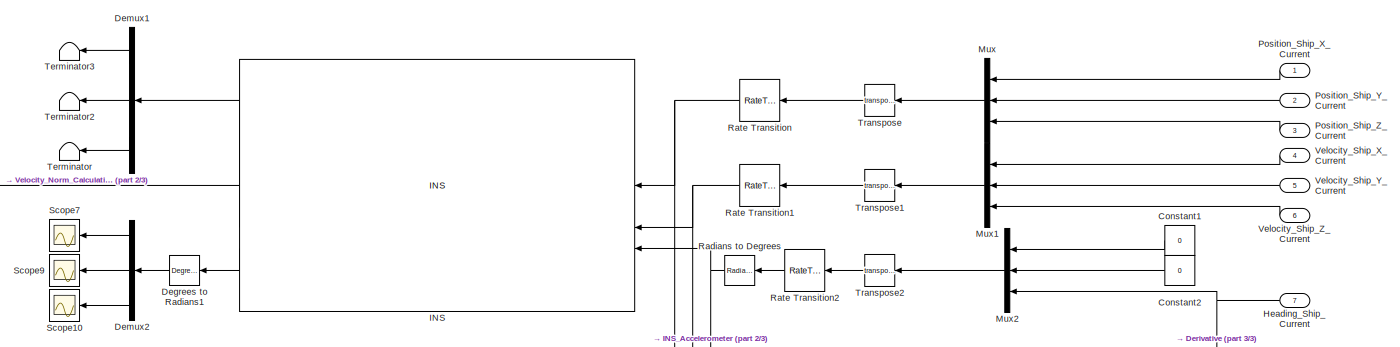
[diagram: Navigation_And_Wave_Estimator/Sensors_Fusion_And_Filtering/Real_Navigation_Sensors_Extended_Kalman_Filter/INS_Sensor - part 1/3, top center region]
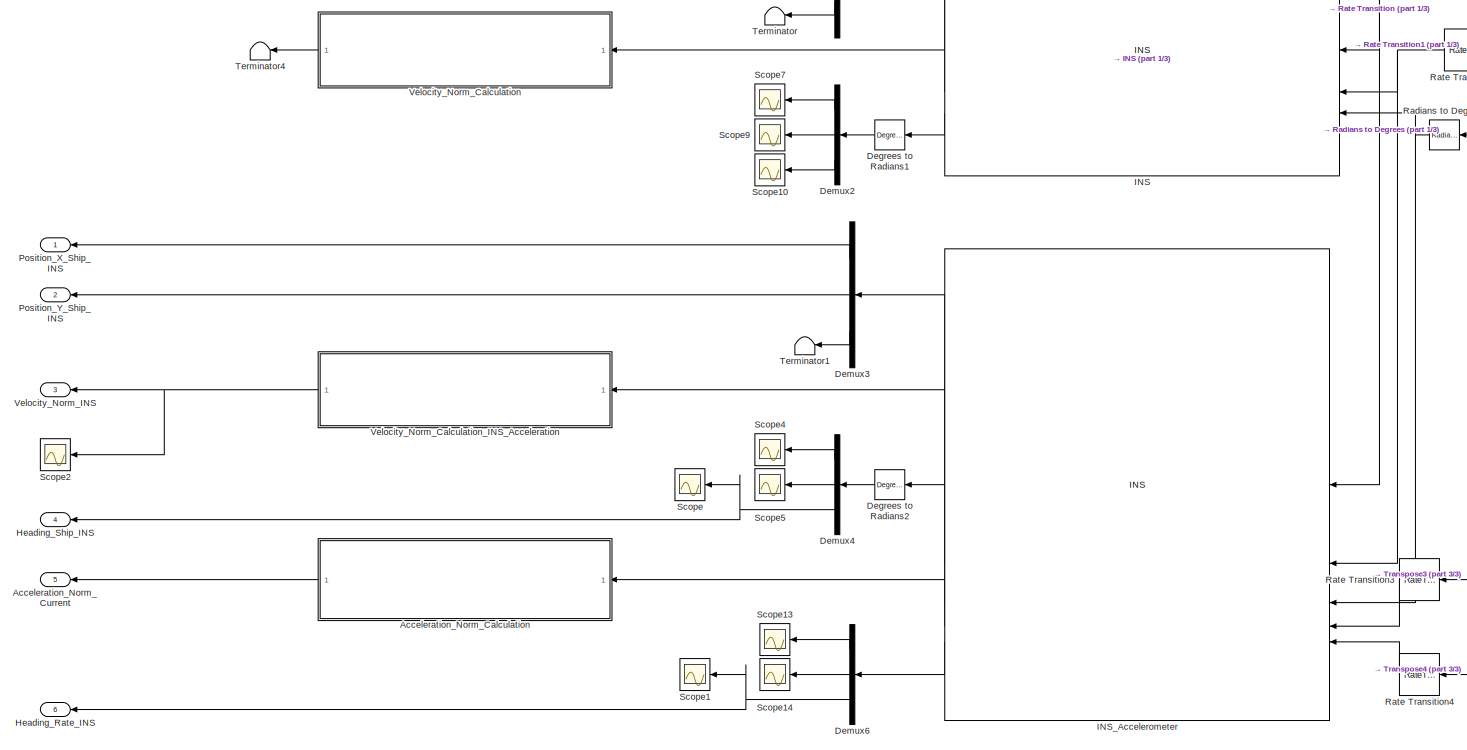
[diagram: Navigation_And_Wave_Estimator/Sensors_Fusion_And_Filtering/Real_Navigation_Sensors_Extended_Kalman_Filter/INS_Sensor - part 2/3, center side, full height]
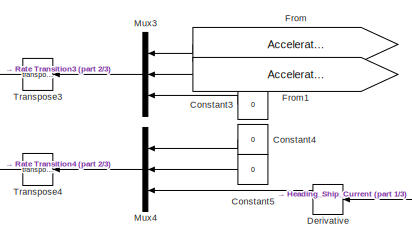
[diagram: Navigation_And_Wave_Estimator/Sensors_Fusion_And_Filtering/Real_Navigation_Sensors_Extended_Kalman_Filter/INS_Sensor - part 3/3, bottom right region]
BLOCK [SubSystem] Navigation_And_Wave_Estimator/Sensors_Fusion_And_Filtering/Real_Navigation_Sensors_Extended_Kalman_Filter/INS_Sensor
BLOCK [SubSystem] Navigation_And_Wave_Estimator/Sensors_Fusion_And_Filtering/Real_Navigation_Sensors_Extended_Kalman_Filter/INS_Sensor/Acceleration_Norm_Calculation
  ErrorFcn = Stateflow.Translate.translate
  PermitHierarchicalResolution = ExplicitOnly
  SFBlockType = MATLAB Function
  TreatAsAtomicUnit = on
BLOCK [Demux] Navigation_And_Wave_Estimator/Sensors_Fusion_And_Filtering/Real_Navigation_Sensors_Extended_Kalman_Filter/INS_Sensor/Acceleration_Norm_Calculation/ Demux 
  Outputs = 1
BLOCK [S-Function] Navigation_And_Wave_Estimator/Sensors_Fusion_And_Filtering/Real_Navigation_Sensors_Extended_Kalman_Filter/INS_Sensor/Acceleration_Norm_Calculation/ SFunction 
  EnableBusSupport = on
  FunctionName = sf_sfun
  PortCounts = [1 2]
  SFcnIsStateOwnerBlock = off
  SFunctionDeploymentMode = off
  Tag = Stateflow S-Function 16
BLOCK [Terminator] Navigation_And_Wave_Estimator/Sensors_Fusion_And_Filtering/Real_Navigation_Sensors_Extended_Kalman_Filter/INS_Sensor/Acceleration_Norm_Calculation/ Terminator 
BLOCK [Inport] Navigation_And_Wave_Estimator/Sensors_Fusion_And_Filtering/Real_Navigation_Sensors_Extended_Kalman_Filter/INS_Sensor/Acceleration_Norm_Calculation/Acceleration_Input_Vector_Current
BLOCK [Outport] Navigation_And_Wave_Estimator/Sensors_Fusion_And_Filtering/Real_Navigation_Sensors_Extended_Kalman_Filter/INS_Sensor/Acceleration_Norm_Calculation/Acceleration_Norm_Current
BLOCK [Outport] Navigation_And_Wave_Estimator/Sensors_Fusion_And_Filtering/Real_Navigation_Sensors_Extended_Kalman_Filter/INS_Sensor/Acceleration_Norm_Current
  Port = 5
BLOCK [Constant] Navigation_And_Wave_Estimator/Sensors_Fusion_And_Filtering/Real_Navigation_Sensors_Extended_Kalman_Filter/INS_Sensor/Constant1
  Value = 0
BLOCK [Constant] Navigation_And_Wave_Estimator/Sensors_Fusion_And_Filtering/Real_Navigation_Sensors_Extended_Kalman_Filter/INS_Sensor/Constant2
  Value = 0
BLOCK [Constant] Navigation_And_Wave_Estimator/Sensors_Fusion_And_Filtering/Real_Navigation_Sensors_Extended_Kalman_Filter/INS_Sensor/Constant3
  Value = 0
BLOCK [Constant] Navigation_And_Wave_Estimator/Sensors_Fusion_And_Filtering/Real_Navigation_Sensors_Extended_Kalman_Filter/INS_Sensor/Constant4
  Value = 0
BLOCK [Constant] Navigation_And_Wave_Estimator/Sensors_Fusion_And_Filtering/Real_Navigation_Sensors_Extended_Kalman_Filter/INS_Sensor/Constant5
  Value = 0
BLOCK [Reference] Navigation_And_Wave_Estimator/Sensors_Fusion_And_Filtering/Real_Navigation_Sensors_Extended_Kalman_Filter/INS_Sensor/Degrees to Radians1  REF=simulink_extras/Transformations/Degrees to
Radians
  SourceBlock = simulink_extras/Transformations/Degrees to\nRadians
  SourceType = DegreesToRadians
BLOCK [Reference] Navigation_And_Wave_Estimator/Sensors_Fusion_And_Filtering/Real_Navigation_Sensors_Extended_Kalman_Filter/INS_Sensor/Degrees to Radians2  REF=simulink_extras/Transformations/Degrees to
Radians
  SourceBlock = simulink_extras/Transformations/Degrees to\nRadians
  SourceType = DegreesToRadians
BLOCK [Demux] Navigation_And_Wave_Estimator/Sensors_Fusion_And_Filtering/Real_Navigation_Sensors_Extended_Kalman_Filter/INS_Sensor/Demux1
  Outputs = 3
BLOCK [Demux] Navigation_And_Wave_Estimator/Sensors_Fusion_And_Filtering/Real_Navigation_Sensors_Extended_Kalman_Filter/INS_Sensor/Demux2
  Outputs = 3
BLOCK [Demux] Navigation_And_Wave_Estimator/Sensors_Fusion_And_Filtering/Real_Navigation_Sensors_Extended_Kalman_Filter/INS_Sensor/Demux3
  Outputs = 3
BLOCK [Demux] Navigation_And_Wave_Estimator/Sensors_Fusion_And_Filtering/Real_Navigation_Sensors_Extended_Kalman_Filter/INS_Sensor/Demux4
  Outputs = 3
BLOCK [Demux] Navigation_And_Wave_Estimator/Sensors_Fusion_And_Filtering/Real_Navigation_Sensors_Extended_Kalman_Filter/INS_Sensor/Demux6
  Outputs = 3
BLOCK [Derivative] Navigation_And_Wave_Estimator/Sensors_Fusion_And_Filtering/Real_Navigation_Sensors_Extended_Kalman_Filter/INS_Sensor/Derivative
BLOCK [From] Navigation_And_Wave_Estimator/Sensors_Fusion_And_Filtering/Real_Navigation_Sensors_Extended_Kalman_Filter/INS_Sensor/From
  GotoTag = Acceleration_X_Ship_Propagated
  TagVisibility = global
BLOCK [From] Navigation_And_Wave_Estimator/Sensors_Fusion_And_Filtering/Real_Navigation_Sensors_Extended_Kalman_Filter/INS_Sensor/From1
  GotoTag = Acceleration_Y_Ship_Propagated
  TagVisibility = global
BLOCK [Outport] Navigation_And_Wave_Estimator/Sensors_Fusion_And_Filtering/Real_Navigation_Sensors_Extended_Kalman_Filter/INS_Sensor/Heading_Rate_INS
  Port = 6
BLOCK [Inport] Navigation_And_Wave_Estimator/Sensors_Fusion_And_Filtering/Real_Navigation_Sensors_Extended_Kalman_Filter/INS_Sensor/Heading_Ship_Current
  Port = 7
BLOCK [Outport] Navigation_And_Wave_Estimator/Sensors_Fusion_And_Filtering/Real_Navigation_Sensors_Extended_Kalman_Filter/INS_Sensor/Heading_Ship_INS
  Port = 4
BLOCK [Reference] Navigation_And_Wave_Estimator/Sensors_Fusion_And_Filtering/Real_Navigation_Sensors_Extended_Kalman_Filter/INS_Sensor/INS  REF=sensorinslib/INS
  LibrarySourceBlock = mspsensorlib/INS
  SourceBlock = sensorinslib/INS
  SourceType = fusion.internal.simulink.insSensor
BLOCK [Reference] Navigation_And_Wave_Estimator/Sensors_Fusion_And_Filtering/Real_Navigation_Sensors_Extended_Kalman_Filter/INS_Sensor/INS_Accelerometer  REF=sensorinslib/INS
  LibrarySourceBlock = mspsensorlib/INS
  SourceBlock = sensorinslib/INS
  SourceType = fusion.internal.simulink.insSensor
BLOCK [Mux] Navigation_And_Wave_Estimator/Sensors_Fusion_And_Filtering/Real_Navigation_Sensors_Extended_Kalman_Filter/INS_Sensor/Mux
  DisplayOption = bar
  Inputs = 3
BLOCK [Mux] Navigation_And_Wave_Estimator/Sensors_Fusion_And_Filtering/Real_Navigation_Sensors_Extended_Kalman_Filter/INS_Sensor/Mux1
  DisplayOption = bar
  Inputs = 3
BLOCK [Mux] Navigation_And_Wave_Estimator/Sensors_Fusion_And_Filtering/Real_Navigation_Sensors_Extended_Kalman_Filter/INS_Sensor/Mux2
  DisplayOption = bar
  Inputs = 3
BLOCK [Mux] Navigation_And_Wave_Estimator/Sensors_Fusion_And_Filtering/Real_Navigation_Sensors_Extended_Kalman_Filter/INS_Sensor/Mux3
  DisplayOption = bar
  Inputs = 3
BLOCK [Mux] Navigation_And_Wave_Estimator/Sensors_Fusion_And_Filtering/Real_Navigation_Sensors_Extended_Kalman_Filter/INS_Sensor/Mux4
  DisplayOption = bar
  Inputs = 3
BLOCK [Inport] Navigation_And_Wave_Estimator/Sensors_Fusion_And_Filtering/Real_Navigation_Sensors_Extended_Kalman_Filter/INS_Sensor/Position_Ship_X_Current
BLOCK [Inport] Navigation_And_Wave_Estimator/Sensors_Fusion_And_Filtering/Real_Navigation_Sensors_Extended_Kalman_Filter/INS_Sensor/Position_Ship_Y_Current
  Port = 2
BLOCK [Inport] Navigation_And_Wave_Estimator/Sensors_Fusion_And_Filtering/Real_Navigation_Sensors_Extended_Kalman_Filter/INS_Sensor/Position_Ship_Z_Current
  Port = 3
BLOCK [Outport] Navigation_And_Wave_Estimator/Sensors_Fusion_And_Filtering/Real_Navigation_Sensors_Extended_Kalman_Filter/INS_Sensor/Position_X_Ship_INS
BLOCK [Outport] Navigation_And_Wave_Estimator/Sensors_Fusion_And_Filtering/Real_Navigation_Sensors_Extended_Kalman_Filter/INS_Sensor/Position_Y_Ship_INS
  Port = 2
BLOCK [Reference] Navigation_And_Wave_Estimator/Sensors_Fusion_And_Filtering/Real_Navigation_Sensors_Extended_Kalman_Filter/INS_Sensor/Radians to Degrees  REF=simulink_extras/Transformations/Radians
to Degrees
  SourceBlock = simulink_extras/Transformations/Radians\nto Degrees
  SourceType = RadiansToDegrees
BLOCK [RateTransition] Navigation_And_Wave_Estimator/Sensors_Fusion_And_Filtering/Real_Navigation_Sensors_Extended_Kalman_Filter/INS_Sensor/Rate Transition
  OutPortSampleTime = Time_Period_Sampling
BLOCK [RateTransition] Navigation_And_Wave_Estimator/Sensors_Fusion_And_Filtering/Real_Navigation_Sensors_Extended_Kalman_Filter/INS_Sensor/Rate Transition1
  OutPortSampleTime = Time_Period_Sampling
BLOCK [RateTransition] Navigation_And_Wave_Estimator/Sensors_Fusion_And_Filtering/Real_Navigation_Sensors_Extended_Kalman_Filter/INS_Sensor/Rate Transition2
  OutPortSampleTime = Time_Period_Sampling
BLOCK [RateTransition] Navigation_And_Wave_Estimator/Sensors_Fusion_And_Filtering/Real_Navigation_Sensors_Extended_Kalman_Filter/INS_Sensor/Rate Transition3
  OutPortSampleTime = Time_Period_Sampling
BLOCK [RateTransition] Navigation_And_Wave_Estimator/Sensors_Fusion_And_Filtering/Real_Navigation_Sensors_Extended_Kalman_Filter/INS_Sensor/Rate Transition4
  OutPortSampleTime = Time_Period_Sampling
BLOCK [Scope] Navigation_And_Wave_Estimator/Sensors_Fusion_And_Filtering/Real_Navigation_Sensors_Extended_Kalman_Filter/INS_Sensor/Scope
  Floating = off
  NumInputPorts = 1
  ScopeSpecificationString = Simulink.scopes.TimeScopeBlockCfg('CurrentConfiguration', extmgr.ConfigurationSet(extmgr.Configuration('Core','General UI',true),extmgr.Configuration('Core','Source UI',true),extmgr.Configuration('Sources','WiredSimulink',true,'DataLoggingVariableName','ScopeData9'),extmgr.Configuration('Visuals','Time Domain',true,'SerializedDisplays',{struct('MinYLimReal','-0.27831','MaxYLimReal','2.32564','YLab...<+1481ch>
BLOCK [Scope] Navigation_And_Wave_Estimator/Sensors_Fusion_And_Filtering/Real_Navigation_Sensors_Extended_Kalman_Filter/INS_Sensor/Scope1
  Floating = off
  NumInputPorts = 1
  ScopeSpecificationString = Simulink.scopes.TimeScopeBlockCfg('CurrentConfiguration', extmgr.ConfigurationSet(extmgr.Configuration('Core','General UI',true),extmgr.Configuration('Core','Source UI',true),extmgr.Configuration('Sources','WiredSimulink',true,'DataLoggingVariableName','ScopeData3'),extmgr.Configuration('Visuals','Time Domain',true,'SerializedDisplays',{struct('MinYLimReal','-0.53699','MaxYLimReal','0.55273','YLab...<+1481ch>
BLOCK [Scope] Navigation_And_Wave_Estimator/Sensors_Fusion_And_Filtering/Real_Navigation_Sensors_Extended_Kalman_Filter/INS_Sensor/Scope10
  Floating = off
  NumInputPorts = 1
  ScopeSpecificationString = Simulink.scopes.TimeScopeBlockCfg('CurrentConfiguration', extmgr.ConfigurationSet(extmgr.Configuration('Core','General UI',true),extmgr.Configuration('Core','Source UI',true),extmgr.Configuration('Sources','WiredSimulink',true,'DataLoggingVariableName','ScopeData6'),extmgr.Configuration('Visuals','Time Domain',true,'SerializedDisplays',{struct('MinYLimReal','-3.9234','MaxYLimReal','3.92565','YLabe...<+1498ch>
BLOCK [Scope] Navigation_And_Wave_Estimator/Sensors_Fusion_And_Filtering/Real_Navigation_Sensors_Extended_Kalman_Filter/INS_Sensor/Scope13
  Floating = off
  NumInputPorts = 1
  ScopeSpecificationString = Simulink.scopes.TimeScopeBlockCfg('CurrentConfiguration', extmgr.ConfigurationSet(extmgr.Configuration('Core','General UI',true),extmgr.Configuration('Core','Source UI',true),extmgr.Configuration('Sources','WiredSimulink',true,'DataLoggingVariableName','ScopeData10'),extmgr.Configuration('Visuals','Time Domain',true,'SerializedDisplays',{struct('MinYLimReal','-0.48541','MaxYLimReal','0.48675','YLa...<+1457ch>
BLOCK [Scope] Navigation_And_Wave_Estimator/Sensors_Fusion_And_Filtering/Real_Navigation_Sensors_Extended_Kalman_Filter/INS_Sensor/Scope14
  Floating = off
  NumInputPorts = 1
  ScopeSpecificationString = Simulink.scopes.TimeScopeBlockCfg('CurrentConfiguration', extmgr.ConfigurationSet(extmgr.Configuration('Core','General UI',true),extmgr.Configuration('Core','Source UI',true),extmgr.Configuration('Sources','WiredSimulink',true,'DataLoggingVariableName','ScopeData11'),extmgr.Configuration('Visuals','Time Domain',true),extmgr.Configuration('Tools','Plot Navigation',true),extmgr.Configuration('Tools'...<+41ch>
BLOCK [Scope] Navigation_And_Wave_Estimator/Sensors_Fusion_And_Filtering/Real_Navigation_Sensors_Extended_Kalman_Filter/INS_Sensor/Scope2
  Floating = off
  NumInputPorts = 1
  ScopeSpecificationString = Simulink.scopes.TimeScopeBlockCfg('CurrentConfiguration', extmgr.ConfigurationSet(extmgr.Configuration('Core','General UI',true),extmgr.Configuration('Core','Source UI',true),extmgr.Configuration('Sources','WiredSimulink',true,'DataLoggingVariableName','ScopeData1'),extmgr.Configuration('Visuals','Time Domain',true,'SerializedDisplays',{struct('MinYLimReal','-0.01099','MaxYLimReal','1.76408','YLab...<+1490ch>
BLOCK [Scope] Navigation_And_Wave_Estimator/Sensors_Fusion_And_Filtering/Real_Navigation_Sensors_Extended_Kalman_Filter/INS_Sensor/Scope4
  Floating = off
  NumInputPorts = 1
  ScopeSpecificationString = Simulink.scopes.TimeScopeBlockCfg('CurrentConfiguration', extmgr.ConfigurationSet(extmgr.Configuration('Core','General UI',true),extmgr.Configuration('Core','Source UI',true),extmgr.Configuration('Sources','WiredSimulink',true,'DataLoggingVariableName','ScopeData5'),extmgr.Configuration('Visuals','Time Domain',true,'SerializedDisplays',{struct('MinYLimReal','-0.95152','MaxYLimReal','0.86533','YLab...<+1500ch>
BLOCK [Scope] Navigation_And_Wave_Estimator/Sensors_Fusion_And_Filtering/Real_Navigation_Sensors_Extended_Kalman_Filter/INS_Sensor/Scope5
  Floating = off
  NumInputPorts = 1
  ScopeSpecificationString = Simulink.scopes.TimeScopeBlockCfg('CurrentConfiguration', extmgr.ConfigurationSet(extmgr.Configuration('Core','General UI',true),extmgr.Configuration('Core','Source UI',true),extmgr.Configuration('Sources','WiredSimulink',true,'DataLoggingVariableName','ScopeData6'),extmgr.Configuration('Visuals','Time Domain',true,'SerializedDisplays',{struct('MinYLimReal','-1.05058','MaxYLimReal','1.01322','YLab...<+1500ch>
BLOCK [Scope] Navigation_And_Wave_Estimator/Sensors_Fusion_And_Filtering/Real_Navigation_Sensors_Extended_Kalman_Filter/INS_Sensor/Scope7
  Floating = off
  NumInputPorts = 1
  ScopeSpecificationString = Simulink.scopes.TimeScopeBlockCfg('CurrentConfiguration', extmgr.ConfigurationSet(extmgr.Configuration('Core','General UI',true),extmgr.Configuration('Core','Source UI',true),extmgr.Configuration('Sources','WiredSimulink',true,'DataLoggingVariableName','ScopeData4'),extmgr.Configuration('Visuals','Time Domain',true,'SerializedDisplays',{struct('MinYLimReal','-0.95152','MaxYLimReal','0.86533','YLab...<+1500ch>
BLOCK [Scope] Navigation_And_Wave_Estimator/Sensors_Fusion_And_Filtering/Real_Navigation_Sensors_Extended_Kalman_Filter/INS_Sensor/Scope9
  Floating = off
  NumInputPorts = 1
  ScopeSpecificationString = Simulink.scopes.TimeScopeBlockCfg('CurrentConfiguration', extmgr.ConfigurationSet(extmgr.Configuration('Core','General UI',true),extmgr.Configuration('Core','Source UI',true),extmgr.Configuration('Sources','WiredSimulink',true,'DataLoggingVariableName','ScopeData5'),extmgr.Configuration('Visuals','Time Domain',true,'SerializedDisplays',{struct('MinYLimReal','-1.05058','MaxYLimReal','1.01322','YLab...<+1500ch>
BLOCK [Terminator] Navigation_And_Wave_Estimator/Sensors_Fusion_And_Filtering/Real_Navigation_Sensors_Extended_Kalman_Filter/INS_Sensor/Terminator
BLOCK [Terminator] Navigation_And_Wave_Estimator/Sensors_Fusion_And_Filtering/Real_Navigation_Sensors_Extended_Kalman_Filter/INS_Sensor/Terminator1
BLOCK [Terminator] Navigation_And_Wave_Estimator/Sensors_Fusion_And_Filtering/Real_Navigation_Sensors_Extended_Kalman_Filter/INS_Sensor/Terminator2
BLOCK [Terminator] Navigation_And_Wave_Estimator/Sensors_Fusion_And_Filtering/Real_Navigation_Sensors_Extended_Kalman_Filter/INS_Sensor/Terminator3
BLOCK [Terminator] Navigation_And_Wave_Estimator/Sensors_Fusion_And_Filtering/Real_Navigation_Sensors_Extended_Kalman_Filter/INS_Sensor/Terminator4
BLOCK [Math] Navigation_And_Wave_Estimator/Sensors_Fusion_And_Filtering/Real_Navigation_Sensors_Extended_Kalman_Filter/INS_Sensor/Transpose
  Operator = transpose
BLOCK [Math] Navigation_And_Wave_Estimator/Sensors_Fusion_And_Filtering/Real_Navigation_Sensors_Extended_Kalman_Filter/INS_Sensor/Transpose1
  Operator = transpose
BLOCK [Math] Navigation_And_Wave_Estimator/Sensors_Fusion_And_Filtering/Real_Navigation_Sensors_Extended_Kalman_Filter/INS_Sensor/Transpose2
  Operator = transpose
BLOCK [Math] Navigation_And_Wave_Estimator/Sensors_Fusion_And_Filtering/Real_Navigation_Sensors_Extended_Kalman_Filter/INS_Sensor/Transpose3
  Operator = transpose
BLOCK [Math] Navigation_And_Wave_Estimator/Sensors_Fusion_And_Filtering/Real_Navigation_Sensors_Extended_Kalman_Filter/INS_Sensor/Transpose4
  Operator = transpose
BLOCK [SubSystem] Navigation_And_Wave_Estimator/Sensors_Fusion_And_Filtering/Real_Navigation_Sensors_Extended_Kalman_Filter/INS_Sensor/Velocity_Norm_Calculation
  ErrorFcn = Stateflow.Translate.translate
  PermitHierarchicalResolution = ExplicitOnly
  SFBlockType = MATLAB Function
  TreatAsAtomicUnit = on
BLOCK [Demux] Navigation_And_Wave_Estimator/Sensors_Fusion_And_Filtering/Real_Navigation_Sensors_Extended_Kalman_Filter/INS_Sensor/Velocity_Norm_Calculation/ Demux 
  Outputs = 1
BLOCK [S-Function] Navigation_And_Wave_Estimator/Sensors_Fusion_And_Filtering/Real_Navigation_Sensors_Extended_Kalman_Filter/INS_Sensor/Velocity_Norm_Calculation/ SFunction 
  EnableBusSupport = on
  FunctionName = sf_sfun
  PortCounts = [1 2]
  SFcnIsStateOwnerBlock = off
  SFunctionDeploymentMode = off
  Tag = Stateflow S-Function 12
BLOCK [Terminator] Navigation_And_Wave_Estimator/Sensors_Fusion_And_Filtering/Real_Navigation_Sensors_Extended_Kalman_Filter/INS_Sensor/Velocity_Norm_Calculation/ Terminator 
BLOCK [Inport] Navigation_And_Wave_Estimator/Sensors_Fusion_And_Filtering/Real_Navigation_Sensors_Extended_Kalman_Filter/INS_Sensor/Velocity_Norm_Calculation/Velocity_Input_Vector_Current
BLOCK [Outport] Navigation_And_Wave_Estimator/Sensors_Fusion_And_Filtering/Real_Navigation_Sensors_Extended_Kalman_Filter/INS_Sensor/Velocity_Norm_Calculation/Velocity_Norm_Current
BLOCK [SubSystem] Navigation_And_Wave_Estimator/Sensors_Fusion_And_Filtering/Real_Navigation_Sensors_Extended_Kalman_Filter/INS_Sensor/Velocity_Norm_Calculation_INS_Acceleration
  ErrorFcn = Stateflow.Translate.translate
  PermitHierarchicalResolution = ExplicitOnly
  SFBlockType = MATLAB Function
  TreatAsAtomicUnit = on
BLOCK [Demux] Navigation_And_Wave_Estimator/Sensors_Fusion_And_Filtering/Real_Navigation_Sensors_Extended_Kalman_Filter/INS_Sensor/Velocity_Norm_Calculation_INS_Acceleration/ Demux 
  Outputs = 1
BLOCK [S-Function] Navigation_And_Wave_Estimator/Sensors_Fusion_And_Filtering/Real_Navigation_Sensors_Extended_Kalman_Filter/INS_Sensor/Velocity_Norm_Calculation_INS_Acceleration/ SFunction 
  EnableBusSupport = on
  FunctionName = sf_sfun
  PortCounts = [1 2]
  SFcnIsStateOwnerBlock = off
  SFunctionDeploymentMode = off
  Tag = Stateflow S-Function 15
BLOCK [Terminator] Navigation_And_Wave_Estimator/Sensors_Fusion_And_Filtering/Real_Navigation_Sensors_Extended_Kalman_Filter/INS_Sensor/Velocity_Norm_Calculation_INS_Acceleration/ Terminator 
BLOCK [Inport] Navigation_And_Wave_Estimator/Sensors_Fusion_And_Filtering/Real_Navigation_Sensors_Extended_Kalman_Filter/INS_Sensor/Velocity_Norm_Calculation_INS_Acceleration/Velocity_Input_Vector_Current
BLOCK [Outport] Navigation_And_Wave_Estimator/Sensors_Fusion_And_Filtering/Real_Navigation_Sensors_Extended_Kalman_Filter/INS_Sensor/Velocity_Norm_Calculation_INS_Acceleration/Velocity_Norm_Current
BLOCK [Outport] Navigation_And_Wave_Estimator/Sensors_Fusion_And_Filtering/Real_Navigation_Sensors_Extended_Kalman_Filter/INS_Sensor/Velocity_Norm_INS
  Port = 3
BLOCK [Inport] Navigation_And_Wave_Estimator/Sensors_Fusion_And_Filtering/Real_Navigation_Sensors_Extended_Kalman_Filter/INS_Sensor/Velocity_Ship_X_Current
  Port = 4
BLOCK [Inport] Navigation_And_Wave_Estimator/Sensors_Fusion_And_Filtering/Real_Navigation_Sensors_Extended_Kalman_Filter/INS_Sensor/Velocity_Ship_Y_Current
  Port = 5
BLOCK [Inport] Navigation_And_Wave_Estimator/Sensors_Fusion_And_Filtering/Real_Navigation_Sensors_Extended_Kalman_Filter/INS_Sensor/Velocity_Ship_Z_Current
  Port = 6
BLOCK [Inport] Navigation_And_Wave_Estimator/Sensors_Fusion_And_Filtering/Real_Navigation_Sensors_Extended_Kalman_Filter/Position_X_Ship_Current
BLOCK [Outport] Navigation_And_Wave_Estimator/Sensors_Fusion_And_Filtering/Real_Navigation_Sensors_Extended_Kalman_Filter/Position_X_Ship_Fusioned_Filtered
BLOCK [Inport] Navigation_And_Wave_Estimator/Sensors_Fusion_And_Filtering/Real_Navigation_Sensors_Extended_Kalman_Filter/Position_Y_Ship_Current
  Port = 2
BLOCK [Outport] Navigation_And_Wave_Estimator/Sensors_Fusion_And_Filtering/Real_Navigation_Sensors_Extended_Kalman_Filter/Position_Y_Ship_Fusioned_Filtered
  Port = 2
BLOCK [Inport] Navigation_And_Wave_Estimator/Sensors_Fusion_And_Filtering/Real_Navigation_Sensors_Extended_Kalman_Filter/Position_Z_Ship_Current
  Port = 3
BLOCK [Scope] Navigation_And_Wave_Estimator/Sensors_Fusion_And_Filtering/Real_Navigation_Sensors_Extended_Kalman_Filter/Scope
  Floating = off
  NumInputPorts = 3
  ScopeSpecificationString = Simulink.scopes.TimeScopeBlockCfg('CurrentConfiguration', extmgr.ConfigurationSet(extmgr.Configuration('Core','General UI',true),extmgr.Configuration('Core','Source UI',true),extmgr.Configuration('Sources','WiredSimulink',true,'DataLoggingVariableName','ScopeData2'),extmgr.Configuration('Visuals','Time Domain',true,'SerializedDisplays',{struct('MinYLimReal','0.09814','MaxYLimReal','1.80034','YLabe...<+1594ch>
BLOCK [Scope] Navigation_And_Wave_Estimator/Sensors_Fusion_And_Filtering/Real_Navigation_Sensors_Extended_Kalman_Filter/Scope1
  Floating = off
  NumInputPorts = 1
  ScopeSpecificationString = Simulink.scopes.TimeScopeBlockCfg('CurrentConfiguration', extmgr.ConfigurationSet(extmgr.Configuration('Core','General UI',true),extmgr.Configuration('Core','Source UI',true),extmgr.Configuration('Sources','WiredSimulink',true,'DataLoggingVariableName','ScopeData3'),extmgr.Configuration('Visuals','Time Domain',true,'SerializedDisplays',{struct('MinYLimReal','225.70086','MaxYLimReal','683.43243','Y...<+1548ch>
BLOCK [Scope] Navigation_And_Wave_Estimator/Sensors_Fusion_And_Filtering/Real_Navigation_Sensors_Extended_Kalman_Filter/Scope13
  Floating = off
  NumInputPorts = 3
  ScopeSpecificationString = Simulink.scopes.TimeScopeBlockCfg('CurrentConfiguration', extmgr.ConfigurationSet(extmgr.Configuration('Core','General UI',true),extmgr.Configuration('Core','Source UI',true),extmgr.Configuration('Sources','WiredSimulink',true,'DataLoggingVariableName','ScopeData6'),extmgr.Configuration('Visuals','Time Domain',true,'SerializedDisplays',{struct('MinYLimReal','0.53242','MaxYLimReal','1.59371','YLabe...<+1605ch>
BLOCK [Scope] Navigation_And_Wave_Estimator/Sensors_Fusion_And_Filtering/Real_Navigation_Sensors_Extended_Kalman_Filter/Scope14
  Floating = off
  NumInputPorts = 2
  ScopeSpecificationString = Simulink.scopes.TimeScopeBlockCfg('CurrentConfiguration', extmgr.ConfigurationSet(extmgr.Configuration('Core','General UI',true),extmgr.Configuration('Core','Source UI',true),extmgr.Configuration('Sources','WiredSimulink',true,'DataLoggingVariableName','ScopeData7'),extmgr.Configuration('Visuals','Time Domain',true,'SerializedDisplays',{struct('MinYLimReal','111.90084','MaxYLimReal','1692.97034','...<+1600ch>
BLOCK [Scope] Navigation_And_Wave_Estimator/Sensors_Fusion_And_Filtering/Real_Navigation_Sensors_Extended_Kalman_Filter/Scope15
  Floating = off
  NumInputPorts = 2
  ScopeSpecificationString = Simulink.scopes.TimeScopeBlockCfg('CurrentConfiguration', extmgr.ConfigurationSet(extmgr.Configuration('Core','General UI',true),extmgr.Configuration('Core','Source UI',true),extmgr.Configuration('Sources','WiredSimulink',true,'DataLoggingVariableName','ScopeData8'),extmgr.Configuration('Visuals','Time Domain',true,'SerializedDisplays',{struct('MinYLimReal','295.39775','MaxYLimReal','515.98417','Y...<+1596ch>
BLOCK [Scope] Navigation_And_Wave_Estimator/Sensors_Fusion_And_Filtering/Real_Navigation_Sensors_Extended_Kalman_Filter/Scope2
  Floating = off
  NumInputPorts = 1
  ScopeSpecificationString = Simulink.scopes.TimeScopeBlockCfg('CurrentConfiguration', extmgr.ConfigurationSet(extmgr.Configuration('Core','General UI',true),extmgr.Configuration('Core','Source UI',true),extmgr.Configuration('Sources','WiredSimulink',true,'DataLoggingVariableName','ScopeData4'),extmgr.Configuration('Visuals','Time Domain',true,'SerializedDisplays',{struct('MinYLimReal','-1456.24852','MaxYLimReal','706.68776',...<+1535ch>
BLOCK [Scope] Navigation_And_Wave_Estimator/Sensors_Fusion_And_Filtering/Real_Navigation_Sensors_Extended_Kalman_Filter/Scope3
  Floating = off
  NumInputPorts = 1
  ScopeSpecificationString = Simulink.scopes.TimeScopeBlockCfg('CurrentConfiguration', extmgr.ConfigurationSet(extmgr.Configuration('Core','General UI',true),extmgr.Configuration('Core','Source UI',true),extmgr.Configuration('Sources','WiredSimulink',true,'DataLoggingVariableName','ScopeData5'),extmgr.Configuration('Visuals','Time Domain',true,'SerializedDisplays',{struct('MinYLimReal','-0.2639','MaxYLimReal','2.32057','YLabe...<+1535ch>
BLOCK [Scope] Navigation_And_Wave_Estimator/Sensors_Fusion_And_Filtering/Real_Navigation_Sensors_Extended_Kalman_Filter/Scope4
  Floating = off
  NumInputPorts = 2
  ScopeSpecificationString = Simulink.scopes.TimeScopeBlockCfg('CurrentConfiguration', extmgr.ConfigurationSet(extmgr.Configuration('Core','General UI',true),extmgr.Configuration('Core','Source UI',true),extmgr.Configuration('Sources','WiredSimulink',true,'DataLoggingVariableName','ScopeData6'),extmgr.Configuration('Visuals','Time Domain',true,'SerializedDisplays',{struct('MinYLimReal','-0.47018','MaxYLimReal','0.46018','YLab...<+1599ch>
BLOCK [Scope] Navigation_And_Wave_Estimator/Sensors_Fusion_And_Filtering/Real_Navigation_Sensors_Extended_Kalman_Filter/Scope5
  Floating = off
  NumInputPorts = 1
  ScopeSpecificationString = Simulink.scopes.TimeScopeBlockCfg('CurrentConfiguration', extmgr.ConfigurationSet(extmgr.Configuration('Core','General UI',true),extmgr.Configuration('Core','Source UI',true),extmgr.Configuration('Sources','WiredSimulink',true,'DataLoggingVariableName','ScopeData7'),extmgr.Configuration('Visuals','Time Domain',true,'SerializedDisplays',{struct('MinYLimReal','-0.21541','MaxYLimReal','0.19399','YLab...<+1539ch>
BLOCK [Scope] Navigation_And_Wave_Estimator/Sensors_Fusion_And_Filtering/Real_Navigation_Sensors_Extended_Kalman_Filter/Scope6
  Floating = off
  NumInputPorts = 1
  ScopeSpecificationString = Simulink.scopes.TimeScopeBlockCfg('CurrentConfiguration', extmgr.ConfigurationSet(extmgr.Configuration('Core','General UI',true),extmgr.Configuration('Core','Source UI',true),extmgr.Configuration('Sources','WiredSimulink',true,'DataLoggingVariableName','ScopeData1'),extmgr.Configuration('Visuals','Time Domain',true,'SerializedDisplays',{struct('MinYLimReal','0.79023','MaxYLimReal','1.47224','YLabe...<+1502ch>
BLOCK [Scope] Navigation_And_Wave_Estimator/Sensors_Fusion_And_Filtering/Real_Navigation_Sensors_Extended_Kalman_Filter/Scope7
  Floating = off
  NumInputPorts = 1
  ScopeSpecificationString = Simulink.scopes.TimeScopeBlockCfg('CurrentConfiguration', extmgr.ConfigurationSet(extmgr.Configuration('Core','General UI',true),extmgr.Configuration('Core','Source UI',true),extmgr.Configuration('Sources','WiredSimulink',true,'DataLoggingVariableName','ScopeData2'),extmgr.Configuration('Visuals','Time Domain',true,'SerializedDisplays',{struct('MinYLimReal','-1.29042','MaxYLimReal','14.30657','YLa...<+1556ch>
BLOCK [Scope] Navigation_And_Wave_Estimator/Sensors_Fusion_And_Filtering/Real_Navigation_Sensors_Extended_Kalman_Filter/Scope8
  Floating = off
  NumInputPorts = 1
  ScopeSpecificationString = Simulink.scopes.TimeScopeBlockCfg('CurrentConfiguration', extmgr.ConfigurationSet(extmgr.Configuration('Core','General UI',true),extmgr.Configuration('Core','Source UI',true),extmgr.Configuration('Sources','WiredSimulink',true,'DataLoggingVariableName','ScopeData1'),extmgr.Configuration('Visuals','Time Domain',true,'SerializedDisplays',{struct('MinYLimReal','0.79668','MaxYLimReal','1.41413','YLabe...<+1546ch>
BLOCK [ToWorkspace] Navigation_And_Wave_Estimator/Sensors_Fusion_And_Filtering/Real_Navigation_Sensors_Extended_Kalman_Filter/To Workspace
  FixptAsFi = on
  MaxDataPoints = inf
  SampleTime = -1
  SaveFormat = Timeseries
  VariableName = Velocity_Norm_Fused_Filtered
BLOCK [ToWorkspace] Navigation_And_Wave_Estimator/Sensors_Fusion_And_Filtering/Real_Navigation_Sensors_Extended_Kalman_Filter/To Workspace1
  FixptAsFi = on
  MaxDataPoints = inf
  SampleTime = -1
  SaveFormat = Timeseries
  VariableName = Velocity_Norm_GPS
BLOCK [ToWorkspace] Navigation_And_Wave_Estimator/Sensors_Fusion_And_Filtering/Real_Navigation_Sensors_Extended_Kalman_Filter/To Workspace2
  FixptAsFi = on
  MaxDataPoints = inf
  SampleTime = -1
  SaveFormat = Timeseries
  VariableName = Velocity_Norm_INS
BLOCK [ToWorkspace] Navigation_And_Wave_Estimator/Sensors_Fusion_And_Filtering/Real_Navigation_Sensors_Extended_Kalman_Filter/To Workspace3
  FixptAsFi = on
  MaxDataPoints = inf
  SampleTime = -1
  SaveFormat = Timeseries
  VariableName = Heading_Fused
BLOCK [ToWorkspace] Navigation_And_Wave_Estimator/Sensors_Fusion_And_Filtering/Real_Navigation_Sensors_Extended_Kalman_Filter/To Workspace4
  FixptAsFi = on
  MaxDataPoints = inf
  SampleTime = -1
  SaveFormat = Timeseries
  VariableName = Heading_GPS
BLOCK [ToWorkspace] Navigation_And_Wave_Estimator/Sensors_Fusion_And_Filtering/Real_Navigation_Sensors_Extended_Kalman_Filter/To Workspace5
  FixptAsFi = on
  MaxDataPoints = inf
  SampleTime = -1
  SaveFormat = Timeseries
  VariableName = Heading_Compass
BLOCK [ToWorkspace] Navigation_And_Wave_Estimator/Sensors_Fusion_And_Filtering/Real_Navigation_Sensors_Extended_Kalman_Filter/To Workspace6
  FixptAsFi = on
  MaxDataPoints = inf
  SampleTime = -1
  SaveFormat = Timeseries
  VariableName = Heading_INS
BLOCK [Inport] Navigation_And_Wave_Estimator/Sensors_Fusion_And_Filtering/Real_Navigation_Sensors_Extended_Kalman_Filter/Velocity_Norm_Current
  Port = 8
BLOCK [Outport] Navigation_And_Wave_Estimator/Sensors_Fusion_And_Filtering/Real_Navigation_Sensors_Extended_Kalman_Filter/Velocity_Ship_Fusioned_Filtered
  Port = 4
BLOCK [Inport] Navigation_And_Wave_Estimator/Sensors_Fusion_And_Filtering/Real_Navigation_Sensors_Extended_Kalman_Filter/Velocity_X_Ship_Current
  Port = 4
BLOCK [Inport] Navigation_And_Wave_Estimator/Sensors_Fusion_And_Filtering/Real_Navigation_Sensors_Extended_Kalman_Filter/Velocity_Y_Ship_Current
  Port = 5
BLOCK [Inport] Navigation_And_Wave_Estimator/Sensors_Fusion_And_Filtering/Real_Navigation_Sensors_Extended_Kalman_Filter/Velocity_Z_Ship_Current
  Port = 6
BLOCK [Scope] Navigation_And_Wave_Estimator/Sensors_Fusion_And_Filtering/Scope
  Floating = off
  NumInputPorts = 1
  ScopeSpecificationString = Simulink.scopes.TimeScopeBlockCfg('CurrentConfiguration', extmgr.ConfigurationSet(extmgr.Configuration('Core','General UI',true),extmgr.Configuration('Core','Source UI',true),extmgr.Configuration('Sources','WiredSimulink',true,'DataLoggingVariableName','ScopeData1'),extmgr.Configuration('Visuals','Time Domain',true,'SerializedDisplays',{struct('MinYLimReal','0.73333','MaxYLimReal','0.93333','YLabe...<+1518ch>
BLOCK [Scope] Navigation_And_Wave_Estimator/Sensors_Fusion_And_Filtering/Scope1
  Floating = off
  NumInputPorts = 1
  ScopeSpecificationString = Simulink.scopes.TimeScopeBlockCfg('CurrentConfiguration', extmgr.ConfigurationSet(extmgr.Configuration('Core','General UI',true),extmgr.Configuration('Core','Source UI',true),extmgr.Configuration('Sources','WiredSimulink',true,'DataLoggingVariableName','ScopeData8'),extmgr.Configuration('Visuals','Time Domain',true,'SerializedDisplays',{struct('MinYLimReal','225.6352','MaxYLimReal','684.02335','YL...<+1556ch>
BLOCK [Scope] Navigation_And_Wave_Estimator/Sensors_Fusion_And_Filtering/Scope2
  Floating = off
  NumInputPorts = 1
  ScopeSpecificationString = Simulink.scopes.TimeScopeBlockCfg('CurrentConfiguration', extmgr.ConfigurationSet(extmgr.Configuration('Core','General UI',true),extmgr.Configuration('Core','Source UI',true),extmgr.Configuration('Sources','WiredSimulink',true,'DataLoggingVariableName','ScopeData9'),extmgr.Configuration('Visuals','Time Domain',true,'SerializedDisplays',{struct('MinYLimReal','295.31615','MaxYLimReal','533.74847','Y...<+1585ch>
BLOCK [Scope] Navigation_And_Wave_Estimator/Sensors_Fusion_And_Filtering/Scope4
  Floating = off
  NumInputPorts = 1
  ScopeSpecificationString = Simulink.scopes.TimeScopeBlockCfg('CurrentConfiguration', extmgr.ConfigurationSet(extmgr.Configuration('Core','General UI',true),extmgr.Configuration('Core','Source UI',true),extmgr.Configuration('Sources','WiredSimulink',true,'DataLoggingVariableName','ScopeData1'),extmgr.Configuration('Visuals','Time Domain',true,'SerializedDisplays',{struct('MinYLimReal','0.79023','MaxYLimReal','1.47224','YLabe...<+1558ch>
BLOCK [ToWorkspace] Navigation_And_Wave_Estimator/Sensors_Fusion_And_Filtering/To Workspace
  FixptAsFi = on
  MaxDataPoints = inf
  SampleTime = Time_Period_Sampling
  SaveFormat = Timeseries
  VariableName = Position_Along_X_Axis
BLOCK [ToWorkspace] Navigation_And_Wave_Estimator/Sensors_Fusion_And_Filtering/To Workspace1
  FixptAsFi = on
  MaxDataPoints = inf
  SampleTime = Time_Period_Sampling
  SaveFormat = Timeseries
  VariableName = Position_Along_Y_Axis
BLOCK [ToWorkspace] Navigation_And_Wave_Estimator/Sensors_Fusion_And_Filtering/To Workspace2
  FixptAsFi = on
  MaxDataPoints = inf
  SampleTime = Time_Period_Sampling
  SaveFormat = Timeseries
  VariableName = Velocity_Along_X_Axis_Local
BLOCK [ToWorkspace] Navigation_And_Wave_Estimator/Sensors_Fusion_And_Filtering/To Workspace3
  FixptAsFi = on
  MaxDataPoints = inf
  SampleTime = Time_Period_Sampling
  SaveFormat = Timeseries
  VariableName = Velocity_Along_Y_Axis_Local
BLOCK [Outport] Navigation_And_Wave_Estimator/Sensors_Fusion_And_Filtering/Velocity_Ship_Fusioned_Filtered
  Port = 4
BLOCK [Outport] Navigation_And_Wave_Estimator/Velocity_Ship_Fusioned_Filtered
  Port = 4
BLOCK [SubSystem] Navigation_And_Wave_Estimator/Wave_Estimation_Kalman_Filter
BLOCK [Scope] Navigation_And_Wave_Estimator/Wave_Estimation_Kalman_Filter/Bias_Estimated
  Floating = off
  NumInputPorts = 1
  ScopeSpecificationString = Simulink.scopes.TimeScopeBlockCfg('CurrentConfiguration', extmgr.ConfigurationSet(extmgr.Configuration('Core','General UI',true),extmgr.Configuration('Core','Source UI',true),extmgr.Configuration('Sources','WiredSimulink',true,'DataLoggingVariableName','ScopeData9'),extmgr.Configuration('Visuals','Time Domain',true,'SerializedDisplays',{struct('MinYLimReal','-0.2111','MaxYLimReal','0.26457','YLabe...<+1517ch>
BLOCK [Clock] Navigation_And_Wave_Estimator/Wave_Estimation_Kalman_Filter/Clock
BLOCK [Constant] Navigation_And_Wave_Estimator/Wave_Estimation_Kalman_Filter/Constant
  SampleTime = Time_Period_Sampling
  Value = Pulsation_Wave
BLOCK [Constant] Navigation_And_Wave_Estimator/Wave_Estimation_Kalman_Filter/Constant1
  SampleTime = Time_Period_Sampling
  Value = Damping_Factor_Waves
BLOCK [Constant] Navigation_And_Wave_Estimator/Wave_Estimation_Kalman_Filter/Constant10
  Value = Draft_Depth
BLOCK [Constant] Navigation_And_Wave_Estimator/Wave_Estimation_Kalman_Filter/Constant11
  Value = Longeron_Area
BLOCK [Constant] Navigation_And_Wave_Estimator/Wave_Estimation_Kalman_Filter/Constant12
  Value = Mass_Ship
BLOCK [Constant] Navigation_And_Wave_Estimator/Wave_Estimation_Kalman_Filter/Constant2
  SampleTime = Time_Period_Sampling
  Value = Time_Constant_Total
BLOCK [Constant] Navigation_And_Wave_Estimator/Wave_Estimation_Kalman_Filter/Constant3
  SampleTime = Time_Period_Sampling
  Value = Static_Gain_Nomoto
BLOCK [Constant] Navigation_And_Wave_Estimator/Wave_Estimation_Kalman_Filter/Constant4
  SampleTime = Time_Period_Sampling
  Value = Time_Period_Sampling
BLOCK [Constant] Navigation_And_Wave_Estimator/Wave_Estimation_Kalman_Filter/Constant5
  Value = 0
BLOCK [Constant] Navigation_And_Wave_Estimator/Wave_Estimation_Kalman_Filter/Constant6
  Value = Inertia_Moment
BLOCK [Constant] Navigation_And_Wave_Estimator/Wave_Estimation_Kalman_Filter/Constant7
  Value = Length_Ship
BLOCK [Constant] Navigation_And_Wave_Estimator/Wave_Estimation_Kalman_Filter/Constant8
  Value = Density_Water_Salted
BLOCK [Constant] Navigation_And_Wave_Estimator/Wave_Estimation_Kalman_Filter/Constant9
  Value = Drag_Coefficient
BLOCK [Scope] Navigation_And_Wave_Estimator/Wave_Estimation_Kalman_Filter/Covariance_Error_Output_Kalman_Filter
  Floating = off
  NumInputPorts = 1
  ScopeSpecificationString = Simulink.scopes.TimeScopeBlockCfg('CurrentConfiguration', extmgr.ConfigurationSet(extmgr.Configuration('Core','General UI',true),extmgr.Configuration('Core','Source UI',true),extmgr.Configuration('Sources','WiredSimulink',true,'DataLoggingVariableName','ScopeData10'),extmgr.Configuration('Visuals','Time Domain',true,'SerializedDisplays',{struct('MinYLimReal','-0.07278','MaxYLimReal','0.10375','YLa...<+2963ch>
BLOCK [From] Navigation_And_Wave_Estimator/Wave_Estimation_Kalman_Filter/From
  GotoTag = Rudder_Commanded
  TagVisibility = global
BLOCK [From] Navigation_And_Wave_Estimator/Wave_Estimation_Kalman_Filter/From1
  GotoTag = Heading_Total_Observed
  TagVisibility = global
BLOCK [From] Navigation_And_Wave_Estimator/Wave_Estimation_Kalman_Filter/From10
  GotoTag = Heading_Aimed
  TagVisibility = global
BLOCK [From] Navigation_And_Wave_Estimator/Wave_Estimation_Kalman_Filter/From11
  GotoTag = Heading_Wave_Estimated
  TagVisibility = global
BLOCK [From] Navigation_And_Wave_Estimator/Wave_Estimation_Kalman_Filter/From13
  GotoTag = Heading_Ship_Estimated
  TagVisibility = global
BLOCK [From] Navigation_And_Wave_Estimator/Wave_Estimation_Kalman_Filter/From15
  GotoTag = Wave_Generated_Signal
  TagVisibility = global
BLOCK [From] Navigation_And_Wave_Estimator/Wave_Estimation_Kalman_Filter/From17
  GotoTag = Heading_Wave_Estimated
  TagVisibility = global
BLOCK [From] Navigation_And_Wave_Estimator/Wave_Estimation_Kalman_Filter/From18
  GotoTag = Heading_Ship_Estimated
  TagVisibility = global
BLOCK [From] Navigation_And_Wave_Estimator/Wave_Estimation_Kalman_Filter/From19
  GotoTag = Heading_GPS_Noisy
  TagVisibility = global
BLOCK [From] Navigation_And_Wave_Estimator/Wave_Estimation_Kalman_Filter/From2
  GotoTag = Heading_Ship_Estimated
  TagVisibility = global
BLOCK [From] Navigation_And_Wave_Estimator/Wave_Estimation_Kalman_Filter/From20
  GotoTag = Heading_Magnetometer_Noisy
  TagVisibility = global
BLOCK [From] Navigation_And_Wave_Estimator/Wave_Estimation_Kalman_Filter/From3
  GotoTag = Torque_Wind_Generated
  TagVisibility = global
BLOCK [From] Navigation_And_Wave_Estimator/Wave_Estimation_Kalman_Filter/From4
  GotoTag = Heading_Wave_Estimated
  TagVisibility = global
BLOCK [From] Navigation_And_Wave_Estimator/Wave_Estimation_Kalman_Filter/From5
  GotoTag = Heading_Ship_Estimated
  TagVisibility = global
BLOCK [From] Navigation_And_Wave_Estimator/Wave_Estimation_Kalman_Filter/From6
  GotoTag = Heading_Ship_Estimated
  TagVisibility = global
BLOCK [From] Navigation_And_Wave_Estimator/Wave_Estimation_Kalman_Filter/From7
  GotoTag = Heading_Wave_Estimated
  TagVisibility = global
BLOCK [From] Navigation_And_Wave_Estimator/Wave_Estimation_Kalman_Filter/From8
  GotoTag = Heading_Aimed
  TagVisibility = global
BLOCK [From] Navigation_And_Wave_Estimator/Wave_Estimation_Kalman_Filter/From9
  GotoTag = Heading_GPS_Noisy
  TagVisibility = global
BLOCK [Goto] Navigation_And_Wave_Estimator/Wave_Estimation_Kalman_Filter/Goto
  GotoTag = Heading_Total_Observed
  TagVisibility = global
BLOCK [Goto] Navigation_And_Wave_Estimator/Wave_Estimation_Kalman_Filter/Goto3
  GotoTag = Heading_Wave_Estimated
  TagVisibility = global
BLOCK [Goto] Navigation_And_Wave_Estimator/Wave_Estimation_Kalman_Filter/Goto4
  GotoTag = Heading_Ship_Estimated
  NameLocation = right
  TagVisibility = global
BLOCK [Outport] Navigation_And_Wave_Estimator/Wave_Estimation_Kalman_Filter/Heading_Low_Frequency_Estimated_Current
BLOCK [Outport] Navigation_And_Wave_Estimator/Wave_Estimation_Kalman_Filter/Heading_Rate_Estimated_Current
  Port = 2
BLOCK [Inport] Navigation_And_Wave_Estimator/Wave_Estimation_Kalman_Filter/Heading_Rate_Estimated_Current_Navigation
  Port = 3
BLOCK [Scope] Navigation_And_Wave_Estimator/Wave_Estimation_Kalman_Filter/Heading_Rate_Of_The_Waves_Estimated
  Floating = off
  NumInputPorts = 1
  ScopeSpecificationString = Simulink.scopes.TimeScopeBlockCfg('CurrentConfiguration', extmgr.ConfigurationSet(extmgr.Configuration('Core','General UI',true),extmgr.Configuration('Core','Source UI',true),extmgr.Configuration('Sources','WiredSimulink',true,'DataLoggingVariableName','ScopeData5'),extmgr.Configuration('Visuals','Time Domain',true,'SerializedDisplays',{struct('MinYLimReal','-0.25126','MaxYLimReal','0.23271','YLab...<+1507ch>
BLOCK [Scope] Navigation_And_Wave_Estimator/Wave_Estimation_Kalman_Filter/Heading_Rate_Ship_Estimated
  Floating = off
  NumInputPorts = 1
  ScopeSpecificationString = Simulink.scopes.TimeScopeBlockCfg('CurrentConfiguration', extmgr.ConfigurationSet(extmgr.Configuration('Core','General UI',true),extmgr.Configuration('Core','Source UI',true),extmgr.Configuration('Sources','WiredSimulink',true,'DataLoggingVariableName','ScopeData8'),extmgr.Configuration('Visuals','Time Domain',true,'SerializedDisplays',{struct('MinYLimReal','-20.1646','MaxYLimReal','28.37911','YLa...<+1477ch>
BLOCK [Inport] Navigation_And_Wave_Estimator/Wave_Estimation_Kalman_Filter/Heading_Total_Observed_Current
BLOCK [Scope] Navigation_And_Wave_Estimator/Wave_Estimation_Kalman_Filter/Scope
  Floating = off
  NumInputPorts = 1
  ScopeSpecificationString = Simulink.scopes.TimeScopeBlockCfg('CurrentConfiguration', extmgr.ConfigurationSet(extmgr.Configuration('Core','General UI',true),extmgr.Configuration('Core','Source UI',true),extmgr.Configuration('Sources','WiredSimulink',true,'DataLoggingVariableName','ScopeData6'),extmgr.Configuration('Visuals','Time Domain',true,'SerializedDisplays',{struct('MinYLimReal','-0.13183','MaxYLimReal','0.13657','YLab...<+1527ch>
BLOCK [Scope] Navigation_And_Wave_Estimator/Wave_Estimation_Kalman_Filter/Scope1
  Floating = off
  NumInputPorts = 1
  ScopeSpecificationString = Simulink.scopes.TimeScopeBlockCfg('CurrentConfiguration', extmgr.ConfigurationSet(extmgr.Configuration('Core','General UI',true),extmgr.Configuration('Core','Source UI',true),extmgr.Configuration('Sources','WiredSimulink',true,'DataLoggingVariableName','ScopeData7'),extmgr.Configuration('Visuals','Time Domain',true,'SerializedDisplays',{struct('MinYLimReal','-0.25875','MaxYLimReal','2.12593','YLab...<+1555ch>
BLOCK [Scope] Navigation_And_Wave_Estimator/Wave_Estimation_Kalman_Filter/Scope10
  Floating = off
  NumInputPorts = 2
  ScopeSpecificationString = Simulink.scopes.TimeScopeBlockCfg('CurrentConfiguration', extmgr.ConfigurationSet(extmgr.Configuration('Core','General UI',true),extmgr.Configuration('Core','Source UI',true),extmgr.Configuration('Sources','WiredSimulink',true,'DataLoggingVariableName','ScopeData2'),extmgr.Configuration('Visuals','Time Domain',true,'SerializedDisplays',{struct('MinYLimReal','-0.24984','MaxYLimReal','2.17776','YLab...<+1536ch>
BLOCK [Scope] Navigation_And_Wave_Estimator/Wave_Estimation_Kalman_Filter/Scope11
  Floating = off
  NumInputPorts = 1
  ScopeSpecificationString = Simulink.scopes.TimeScopeBlockCfg('CurrentConfiguration', extmgr.ConfigurationSet(extmgr.Configuration('Core','General UI',true),extmgr.Configuration('Core','Source UI',true),extmgr.Configuration('Sources','WiredSimulink',true,'DataLoggingVariableName','ScopeData3'),extmgr.Configuration('Visuals','Time Domain',true,'SerializedDisplays',{struct('MinYLimReal','-49.37944','MaxYLimReal','184.11119','Y...<+1524ch>
BLOCK [Scope] Navigation_And_Wave_Estimator/Wave_Estimation_Kalman_Filter/Scope2
  Floating = off
  NumInputPorts = 3
  ScopeSpecificationString = Simulink.scopes.TimeScopeBlockCfg('CurrentConfiguration', extmgr.ConfigurationSet(extmgr.Configuration('Core','General UI',true),extmgr.Configuration('Core','Source UI',true),extmgr.Configuration('Sources','WiredSimulink',true,'DataLoggingVariableName','ScopeData3'),extmgr.Configuration('Visuals','Time Domain',true,'SerializedDisplays',{struct('MinYLimReal','-0.24571','MaxYLimReal','2.21143','YLab...<+1586ch>
BLOCK [Scope] Navigation_And_Wave_Estimator/Wave_Estimation_Kalman_Filter/Scope4
  Floating = off
  NumInputPorts = 2
  ScopeSpecificationString = Simulink.scopes.TimeScopeBlockCfg('CurrentConfiguration', extmgr.ConfigurationSet(extmgr.Configuration('Core','General UI',true),extmgr.Configuration('Core','Source UI',true),extmgr.Configuration('Sources','WiredSimulink',true,'DataLoggingVariableName','ScopeData4'),extmgr.Configuration('Visuals','Time Domain',true,'SerializedDisplays',{struct('MinYLimReal','-0.96476','MaxYLimReal','0.897','YLabel...<+1559ch>
BLOCK [Scope] Navigation_And_Wave_Estimator/Wave_Estimation_Kalman_Filter/Scope5
  Floating = off
  NumInputPorts = 4
  ScopeSpecificationString = Simulink.scopes.TimeScopeBlockCfg('CurrentConfiguration', extmgr.ConfigurationSet(extmgr.Configuration('Core','General UI',true),extmgr.Configuration('Core','Source UI',true),extmgr.Configuration('Sources','WiredSimulink',true,'DataLoggingVariableName','ScopeData5'),extmgr.Configuration('Visuals','Time Domain',true,'SerializedDisplays',{struct('MinYLimReal','-1.67028','MaxYLimReal','7.24669','YLab...<+1621ch>
BLOCK [Scope] Navigation_And_Wave_Estimator/Wave_Estimation_Kalman_Filter/Scope6
  Floating = off
  NumInputPorts = 1
  ScopeSpecificationString = Simulink.scopes.TimeScopeBlockCfg('CurrentConfiguration', extmgr.ConfigurationSet(extmgr.Configuration('Core','General UI',true),extmgr.Configuration('Core','Source UI',true),extmgr.Configuration('Sources','WiredSimulink',true,'DataLoggingVariableName','ScopeData6'),extmgr.Configuration('Visuals','Time Domain',true,'SerializedDisplays',{struct('MinYLimReal','-0.30515','MaxYLimReal','0.34115','YLab...<+1463ch>
BLOCK [Scope] Navigation_And_Wave_Estimator/Wave_Estimation_Kalman_Filter/Scope9
  Floating = off
  NumInputPorts = 3
  ScopeSpecificationString = Simulink.scopes.TimeScopeBlockCfg('CurrentConfiguration', extmgr.ConfigurationSet(extmgr.Configuration('Core','General UI',true),extmgr.Configuration('Core','Source UI',true),extmgr.Configuration('Sources','WiredSimulink',true,'DataLoggingVariableName','ScopeData7'),extmgr.Configuration('Visuals','Time Domain',true,'SerializedDisplays',{struct('MinYLimReal','-0.87765','MaxYLimReal','7.10961','YLab...<+1545ch>
BLOCK [Sum] Navigation_And_Wave_Estimator/Wave_Estimation_Kalman_Filter/Sum
  Inputs = |++
BLOCK [Sum] Navigation_And_Wave_Estimator/Wave_Estimation_Kalman_Filter/Sum1
  Inputs = |++
BLOCK [ToWorkspace] Navigation_And_Wave_Estimator/Wave_Estimation_Kalman_Filter/To Workspace
  FixptAsFi = on
  MaxDataPoints = inf
  SampleTime = Time_Period_Sampling
  SaveFormat = Timeseries
  VariableName = Heading_Kalman_Filtered
BLOCK [Inport] Navigation_And_Wave_Estimator/Wave_Estimation_Kalman_Filter/Velocity_Current_Estimated
  Port = 4
BLOCK [SubSystem] Navigation_And_Wave_Estimator/Wave_Estimation_Kalman_Filter/Wave_Heading_Estimation
  ErrorFcn = Stateflow.Translate.translate
  PermitHierarchicalResolution = ExplicitOnly
  SFBlockType = MATLAB Function
  SystemSampleTime = Time_Period_Sampling
  TreatAsAtomicUnit = on
BLOCK [Demux] Navigation_And_Wave_Estimator/Wave_Estimation_Kalman_Filter/Wave_Heading_Estimation/ Demux 
  Outputs = 1
BLOCK [S-Function] Navigation_And_Wave_Estimator/Wave_Estimation_Kalman_Filter/Wave_Heading_Estimation/ SFunction 
  EnableBusSupport = on
  FunctionName = sf_sfun
  PortCounts = [20 7]
  SFcnIsStateOwnerBlock = off
  SFunctionDeploymentMode = off
  Tag = Stateflow S-Function 4
BLOCK [Terminator] Navigation_And_Wave_Estimator/Wave_Estimation_Kalman_Filter/Wave_Heading_Estimation/ Terminator 
BLOCK [Outport] Navigation_And_Wave_Estimator/Wave_Estimation_Kalman_Filter/Wave_Heading_Estimation/Bias_Estimated_Current
  Port = 5
BLOCK [Outport] Navigation_And_Wave_Estimator/Wave_Estimation_Kalman_Filter/Wave_Heading_Estimation/Covariance_Aposteriori_Estimate
  Port = 6
BLOCK [Inport] Navigation_And_Wave_Estimator/Wave_Estimation_Kalman_Filter/Wave_Heading_Estimation/Damping_Wave_Estimated
  Port = 4
BLOCK [Inport] Navigation_And_Wave_Estimator/Wave_Estimation_Kalman_Filter/Wave_Heading_Estimation/Density_Water_Current
  Port = 15
BLOCK [Inport] Navigation_And_Wave_Estimator/Wave_Estimation_Kalman_Filter/Wave_Heading_Estimation/Draft_Depth_Current
  Port = 17
BLOCK [Inport] Navigation_And_Wave_Estimator/Wave_Estimation_Kalman_Filter/Wave_Heading_Estimation/Drag_Coefficient_Current
  Port = 16
BLOCK [Inport] Navigation_And_Wave_Estimator/Wave_Estimation_Kalman_Filter/Wave_Heading_Estimation/Gain_Ship
  Port = 7
BLOCK [Outport] Navigation_And_Wave_Estimator/Wave_Estimation_Kalman_Filter/Wave_Heading_Estimation/Heading_Low_Frequency_Estimated_Current
  Port = 3
BLOCK [Outport] Navigation_And_Wave_Estimator/Wave_Estimation_Kalman_Filter/Wave_Heading_Estimation/Heading_Rate_Estimated_Current
  Port = 4
BLOCK [Inport] Navigation_And_Wave_Estimator/Wave_Estimation_Kalman_Filter/Wave_Heading_Estimation/Heading_Rate_Estimated_Current_Navigation
  Port = 13
BLOCK [Outport] Navigation_And_Wave_Estimator/Wave_Estimation_Kalman_Filter/Wave_Heading_Estimation/Heading_Rate_Wave_Estimated_Current
BLOCK [Inport] Navigation_And_Wave_Estimator/Wave_Estimation_Kalman_Filter/Wave_Heading_Estimation/Heading_Total_Observed_Current
BLOCK [Outport] Navigation_And_Wave_Estimator/Wave_Estimation_Kalman_Filter/Wave_Heading_Estimation/Heading_Wave_Estimated_Current
  Port = 2
BLOCK [Inport] Navigation_And_Wave_Estimator/Wave_Estimation_Kalman_Filter/Wave_Heading_Estimation/Inertia_Ship_Vertical
  Port = 11
BLOCK [Inport] Navigation_And_Wave_Estimator/Wave_Estimation_Kalman_Filter/Wave_Heading_Estimation/Length_Ship_Current
  Port = 14
BLOCK [Inport] Navigation_And_Wave_Estimator/Wave_Estimation_Kalman_Filter/Wave_Heading_Estimation/Longeron_Area_Current
  Port = 18
BLOCK [Inport] Navigation_And_Wave_Estimator/Wave_Estimation_Kalman_Filter/Wave_Heading_Estimation/Mass_Of_The_Ship_Current
  Port = 19
BLOCK [Inport] Navigation_And_Wave_Estimator/Wave_Estimation_Kalman_Filter/Wave_Heading_Estimation/Noise_For_Heading_wave
  Port = 9
BLOCK [Inport] Navigation_And_Wave_Estimator/Wave_Estimation_Kalman_Filter/Wave_Heading_Estimation/Rudder_Angle_Commanded_Current
  Port = 2
BLOCK [Inport] Navigation_And_Wave_Estimator/Wave_Estimation_Kalman_Filter/Wave_Heading_Estimation/Time_Constant_Ship
  Port = 6
BLOCK [Inport] Navigation_And_Wave_Estimator/Wave_Estimation_Kalman_Filter/Wave_Heading_Estimation/Time_Current
  Port = 5
BLOCK [Inport] Navigation_And_Wave_Estimator/Wave_Estimation_Kalman_Filter/Wave_Heading_Estimation/Time_Sampling
  Port = 8
BLOCK [Inport] Navigation_And_Wave_Estimator/Wave_Estimation_Kalman_Filter/Wave_Heading_Estimation/Torque_Wind_Estimated_Input
  Port = 10
BLOCK [Inport] Navigation_And_Wave_Estimator/Wave_Estimation_Kalman_Filter/Wave_Heading_Estimation/Velocity_Current_Estimated
  Port = 20
BLOCK [Inport] Navigation_And_Wave_Estimator/Wave_Estimation_Kalman_Filter/Wave_Heading_Estimation/Wave_Pulsation_Estimated
  Port = 3
BLOCK [Inport] Navigation_And_Wave_Estimator/Wave_Estimation_Kalman_Filter/Wave_Heading_Estimation/Wave_Pulsation_Identified
  Port = 12
BLOCK [Inport] Navigation_And_Wave_Estimator/Wave_Estimation_Kalman_Filter/Wave_Pulsation_Estimated
  Port = 2
BLOCK [SubSystem] Navigation_And_Wave_Estimator/Wave_Identification_Parameters_ARMA
  ErrorFcn = Stateflow.Translate.translate
  PermitHierarchicalResolution = ExplicitOnly
  SFBlockType = MATLAB Function
  SystemSampleTime = Time_Period_Sampling
  TreatAsAtomicUnit = on
BLOCK [Demux] Navigation_And_Wave_Estimator/Wave_Identification_Parameters_ARMA/ Demux 
  Outputs = 1
BLOCK [S-Function] Navigation_And_Wave_Estimator/Wave_Identification_Parameters_ARMA/ SFunction 
  EnableBusSupport = on
  FunctionName = sf_sfun
  PortCounts = [2 3]
  SFcnIsStateOwnerBlock = off
  SFunctionDeploymentMode = off
  Tag = Stateflow S-Function 9
BLOCK [Terminator] Navigation_And_Wave_Estimator/Wave_Identification_Parameters_ARMA/ Terminator 
BLOCK [Inport] Navigation_And_Wave_Estimator/Wave_Identification_Parameters_ARMA/Heading_Wave_High_Frequency_Estimated
BLOCK [Inport] Navigation_And_Wave_Estimator/Wave_Identification_Parameters_ARMA/Time_Sampling
  Port = 2
BLOCK [Outport] Navigation_And_Wave_Estimator/Wave_Identification_Parameters_ARMA/Wave_Damping_Factor_Estimated
  Port = 2
BLOCK [Outport] Navigation_And_Wave_Estimator/Wave_Identification_Parameters_ARMA/Wave_Pulsation_Estimated
BLOCK [SubSystem] Ship_Dynamics
  PortSchema = {"entries":[{"content":{"sides":[{"content":{"connectorIds":["In1","In2"]},"type":"ConnectorPlacement.EquallySpacedRectSide","uuid":"1262d93f-9737-49c5-b1c8-13d3f825160d"},{"content":{"connectorIds":["Out1"],"side":"RIGHT"},"type":"ConnectorPlacement.EquallySpacedRectSide","uuid":"2783823e-17f0-4da0-9b4a-e84aa912eb5f"},{"content":{"connectorIds":["In3"],"side":"TOP"},"type":"ConnectorPlacement.Equ...<+251ch>
BLOCK [Constant] Ship_Dynamics/Constant1
  Value = Length_Ship
BLOCK [Constant] Ship_Dynamics/Constant2
  Value = Density_Water_Salted
BLOCK [Constant] Ship_Dynamics/Constant3
  Value = Drag_Coefficient
BLOCK [Constant] Ship_Dynamics/Constant4
  Value = Draft_Depth
BLOCK [Constant] Ship_Dynamics/Constant5
  Value = Longeron_Area
BLOCK [Constant] Ship_Dynamics/Constant6
  Value = Mass_Ship
BLOCK [Constant] Ship_Dynamics/Constant7
  Value = 0
BLOCK [Constant] Ship_Dynamics/Constant8
  Value = 0
BLOCK [Constant] Ship_Dynamics/Constant9
  Value = 0
BLOCK [From] Ship_Dynamics/From
  GotoTag = Inverse_Time_Constant
  TagVisibility = global
BLOCK [From] Ship_Dynamics/From1
  GotoTag = Gain_Over_Time
  TagVisibility = global
BLOCK [Goto] Ship_Dynamics/Goto
  GotoTag = Heading_Total_Wave_Control
  TagVisibility = global
BLOCK [Goto] Ship_Dynamics/Goto1
  GotoTag = Inverse_Time_Constant
  TagVisibility = global
BLOCK [Goto] Ship_Dynamics/Goto2
  GotoTag = Gain_Over_Time
  TagVisibility = global
BLOCK [SubSystem] Ship_Dynamics/Heading_Normalization_Function
  ErrorFcn = Stateflow.Translate.translate
  PermitHierarchicalResolution = ExplicitOnly
  SFBlockType = MATLAB Function
  TreatAsAtomicUnit = on
BLOCK [Demux] Ship_Dynamics/Heading_Normalization_Function/ Demux 
  Outputs = 1
BLOCK [S-Function] Ship_Dynamics/Heading_Normalization_Function/ SFunction 
  EnableBusSupport = on
  FunctionName = sf_sfun
  PortCounts = [1 2]
  SFcnIsStateOwnerBlock = off
  SFunctionDeploymentMode = off
  Tag = Stateflow S-Function 11
BLOCK [Terminator] Ship_Dynamics/Heading_Normalization_Function/ Terminator 
BLOCK [Inport] Ship_Dynamics/Heading_Normalization_Function/Heading_Input
BLOCK [Outport] Ship_Dynamics/Heading_Normalization_Function/Heading_Normalized
BLOCK [Outport] Ship_Dynamics/Heading_Total
BLOCK [Scope] Ship_Dynamics/Heading_Total_Generated
  Floating = off
  NumInputPorts = 3
  ScopeSpecificationString = Simulink.scopes.TimeScopeBlockCfg('CurrentConfiguration', extmgr.ConfigurationSet(extmgr.Configuration('Core','General UI',true),extmgr.Configuration('Core','Source UI',true),extmgr.Configuration('Sources','WiredSimulink',true,'DataLoggingVariableName','ScopeData1'),extmgr.Configuration('Visuals','Time Domain',true,'SerializedDisplays',{struct('MinYLimReal','-0.35839','MaxYLimReal','2.17832','YLab...<+1604ch>
BLOCK [Reference] Ship_Dynamics/Radians to Degrees  REF=simulink_extras/Transformations/Radians
to Degrees
  SourceBlock = simulink_extras/Transformations/Radians\nto Degrees
  SourceType = RadiansToDegrees
BLOCK [Inport] Ship_Dynamics/Rudder_Commanded
BLOCK [Scope] Ship_Dynamics/Scope
  Floating = off
  NumInputPorts = 1
  ScopeSpecificationString = Simulink.scopes.TimeScopeBlockCfg('CurrentConfiguration', extmgr.ConfigurationSet(extmgr.Configuration('Core','General UI',true),extmgr.Configuration('Core','Source UI',true),extmgr.Configuration('Sources','WiredSimulink',true,'DataLoggingVariableName','ScopeData2'),extmgr.Configuration('Visuals','Time Domain',true,'SerializedDisplays',{struct('MinYLimReal','-13.7843','MaxYLimReal','124.05866','YL...<+1493ch>
BLOCK [Scope] Ship_Dynamics/Scope1
  Floating = off
  NumInputPorts = 1
  ScopeSpecificationString = Simulink.scopes.TimeScopeBlockCfg('CurrentConfiguration', extmgr.ConfigurationSet(extmgr.Configuration('Core','General UI',true),extmgr.Configuration('Core','Source UI',true),extmgr.Configuration('Sources','WiredSimulink',true,'DataLoggingVariableName','ScopeData1'),extmgr.Configuration('Visuals','Time Domain',true,'SerializedDisplays',{struct('MinYLimReal','-0.23638','MaxYLimReal','2.1274','YLabe...<+1550ch>
BLOCK [Reference] Ship_Dynamics/Ship_LPV  REF=cstblocks/Linear Parameter Varying/Varying Transfer Function
  SourceBlock = cstblocks/Linear Parameter Varying/Varying Transfer Function
  SourceType = Varying Transfer Function
BLOCK [SubSystem] Ship_Dynamics/Ship_LPV_Velocity
  ErrorFcn = Stateflow.Translate.translate
  PermitHierarchicalResolution = ExplicitOnly
  SFBlockType = MATLAB Function
  TreatAsAtomicUnit = on
BLOCK [Demux] Ship_Dynamics/Ship_LPV_Velocity/ Demux 
  Outputs = 1
BLOCK [S-Function] Ship_Dynamics/Ship_LPV_Velocity/ SFunction 
  EnableBusSupport = on
  FunctionName = sf_sfun
  PortCounts = [7 5]
  SFcnIsStateOwnerBlock = off
  SFunctionDeploymentMode = off
  Tag = Stateflow S-Function 17
BLOCK [Terminator] Ship_Dynamics/Ship_LPV_Velocity/ Terminator 
BLOCK [Inport] Ship_Dynamics/Ship_LPV_Velocity/Density_Water_Current
  Port = 3
BLOCK [Inport] Ship_Dynamics/Ship_LPV_Velocity/Draft_Depth_Current
  Port = 5
BLOCK [Inport] Ship_Dynamics/Ship_LPV_Velocity/Drag_Coefficient_Current
  Port = 4
BLOCK [Outport] Ship_Dynamics/Ship_LPV_Velocity/Inverse_Time
  Port = 4
BLOCK [Inport] Ship_Dynamics/Ship_LPV_Velocity/Length_Ship_Current
  Port = 2
BLOCK [Inport] Ship_Dynamics/Ship_LPV_Velocity/Longeron_Area_Current
  Port = 6
BLOCK [Inport] Ship_Dynamics/Ship_LPV_Velocity/Mass_Of_The_Ship_Current
  Port = 7
BLOCK [Outport] Ship_Dynamics/Ship_LPV_Velocity/Static_Gain_Nomoto
BLOCK [Outport] Ship_Dynamics/Ship_LPV_Velocity/Static_Gain_Over_Time
  Port = 3
BLOCK [Outport] Ship_Dynamics/Ship_LPV_Velocity/Time_Constant_Total
  Port = 2
BLOCK [Inport] Ship_Dynamics/Ship_LPV_Velocity/Velocity_Current
BLOCK [Sum] Ship_Dynamics/Sum7
  Inputs = |++
BLOCK [Terminator] Ship_Dynamics/Terminator
BLOCK [Terminator] Ship_Dynamics/Terminator1
BLOCK [Inport] Ship_Dynamics/Velocity_Current
  Port = 2
BLOCK [Inport] Ship_Dynamics/Wave_Perturbation_Contribution
  Port = 3
NET Controller_And_Actuator/Actuator_Control:1 -> Controller_And_Actuator/Goto4:1, Controller_And_Actuator/Rudder_Commanded:1, Controller_And_Actuator/Scope1:1
LINE Controller_And_Actuator/Constant10:1 -> Controller_And_Actuator/Ship_High_Level_Loop_Controller:11
LINE Controller_And_Actuator/Constant11:1 -> Controller_And_Actuator/Ship_High_Level_Loop_Controller:12
LINE Controller_And_Actuator/Constant12:1 -> Controller_And_Actuator/Ship_High_Level_Loop_Controller:13
LINE Controller_And_Actuator/Constant1:1 -> Controller_And_Actuator/Actuator_Control:2
LINE Controller_And_Actuator/Constant23:1 -> Controller_And_Actuator/Ship_High_Level_Loop_Controller:4
LINE Controller_And_Actuator/Constant24:1 -> Controller_And_Actuator/Ship_High_Level_Loop_Controller:5
LINE Controller_And_Actuator/Constant25:1 -> Controller_And_Actuator/Ship_High_Level_Loop_Controller:7
LINE Controller_And_Actuator/Constant2:1 -> Controller_And_Actuator/Actuator_Control:3
LINE Controller_And_Actuator/Constant3:1 -> Controller_And_Actuator/Actuator_Control:4
LINE Controller_And_Actuator/Constant4:1 -> Controller_And_Actuator/Actuator_Control:5
LINE Controller_And_Actuator/Constant5:1 -> Controller_And_Actuator/Actuator_Control:6
LINE Controller_And_Actuator/Constant6:1 -> Controller_And_Actuator/Ship_High_Level_Loop_Controller:6
LINE Controller_And_Actuator/Constant7:1 -> Controller_And_Actuator/Ship_High_Level_Loop_Controller:8
LINE Controller_And_Actuator/Constant8:1 -> Controller_And_Actuator/Ship_High_Level_Loop_Controller:9
LINE Controller_And_Actuator/Constant9:1 -> Controller_And_Actuator/Ship_High_Level_Loop_Controller:10
NET Controller_And_Actuator/Dimensioning_Coefficient:1 -> Controller_And_Actuator/Radians to Degrees:1, Controller_And_Actuator/Scope2:1
LINE Controller_And_Actuator/From:1 -> Controller_And_Actuator/Gain:1
LINE Controller_And_Actuator/Gain:1 -> Controller_And_Actuator/Dimensioning_Coefficient:1
NET Controller_And_Actuator/Heading_Aimed:1 -> Controller_And_Actuator/Goto2:1, Controller_And_Actuator/Ship_High_Level_Loop_Controller:1
NET Controller_And_Actuator/Heading_Observed:1 -> Controller_And_Actuator/Goto3:1, Controller_And_Actuator/Ship_High_Level_Loop_Controller:2
LINE Controller_And_Actuator/Radians to Degrees:1 -> Controller_And_Actuator/Scope:1
LINE Controller_And_Actuator/Ship_High_Level_Loop_Controller:1 -> Controller_And_Actuator/Actuator_Control:1
LINE Controller_And_Actuator/Velocity_Norm_Estimated:1 -> Controller_And_Actuator/Ship_High_Level_Loop_Controller:3
LINE Controller_And_Actuator:1 -> Ship_Dynamics:1
LINE Environmental_Perturbations/Gain1:1 -> Environmental_Perturbations/Goto:1
NET Environmental_Perturbations/Wave-Induced_Perturbation_Motion/Gain1:1 -> Environmental_Perturbations/Wave-Induced_Perturbation_Motion/Radians to Degrees:1, Environmental_Perturbations/Wave-Induced_Perturbation_Motion/Wave_Induced_Heading:1
LINE Environmental_Perturbations/Wave-Induced_Perturbation_Motion/LTI System:1 -> Environmental_Perturbations/Wave-Induced_Perturbation_Motion/Gain1:1
LINE Environmental_Perturbations/Wave-Induced_Perturbation_Motion/Radians to Degrees:1 -> Environmental_Perturbations/Wave-Induced_Perturbation_Motion/Scope1:1
LINE Environmental_Perturbations/Wave-Induced_Perturbation_Motion/Sine Wave:1 -> Environmental_Perturbations/Wave-Induced_Perturbation_Motion/Terminator:1
LINE Environmental_Perturbations/Wave-Induced_Perturbation_Motion/Uniform Random Number1:1 -> Environmental_Perturbations/Wave-Induced_Perturbation_Motion/LTI System:1
NET Environmental_Perturbations/Wave-Induced_Perturbation_Motion:1 -> Environmental_Perturbations/Goto2:1, Environmental_Perturbations/Scope:1, Environmental_Perturbations/Wave_Perturbation_Contribution:1
LINE Environmental_Perturbations/Wind_Perturbation_Torque/Constant1:1 -> Environmental_Perturbations/Wind_Perturbation_Torque/Wind_Estimator:2
LINE Environmental_Perturbations/Wind_Perturbation_Torque/Constant2:1 -> Environmental_Perturbations/Wind_Perturbation_Torque/Wind_Estimator:3
LINE Environmental_Perturbations/Wind_Perturbation_Torque/Constant3:1 -> Environmental_Perturbations/Wind_Perturbation_Torque/Wind_Estimator:4
LINE Environmental_Perturbations/Wind_Perturbation_Torque/Constant4:1 -> Environmental_Perturbations/Wind_Perturbation_Torque/Wind_Estimator:5
LINE Environmental_Perturbations/Wind_Perturbation_Torque/Constant5:1 -> Environmental_Perturbations/Wind_Perturbation_Torque/Wind_Estimator:6
LINE Environmental_Perturbations/Wind_Perturbation_Torque/Constant6:1 -> Environmental_Perturbations/Wind_Perturbation_Torque/Wind_Estimator:7
LINE Environmental_Perturbations/Wind_Perturbation_Torque/Constant:1 -> Environmental_Perturbations/Wind_Perturbation_Torque/Wind_Estimator:1
LINE Environmental_Perturbations/Wind_Perturbation_Torque/Wind_Estimator:1 -> Environmental_Perturbations/Wind_Perturbation_Torque/Scope:1
LINE Environmental_Perturbations/Wind_Perturbation_Torque/Wind_Estimator:2 -> Environmental_Perturbations/Wind_Perturbation_Torque/Scope1:1
LINE Environmental_Perturbations/Wind_Perturbation_Torque/Wind_Estimator:3 -> Environmental_Perturbations/Wind_Perturbation_Torque/Scope2:1
LINE Environmental_Perturbations/Wind_Perturbation_Torque/Wind_Estimator:4 -> Environmental_Perturbations/Wind_Perturbation_Torque/Scope3:1
LINE Environmental_Perturbations/Wind_Perturbation_Torque/Wind_Estimator:5 -> Environmental_Perturbations/Wind_Perturbation_Torque/Scope4:1
LINE Environmental_Perturbations/Wind_Perturbation_Torque/Wind_Estimator:6 -> Environmental_Perturbations/Wind_Perturbation_Torque/Scope5:1
NET Environmental_Perturbations/Wind_Perturbation_Torque/Wind_Estimator:7 -> Environmental_Perturbations/Wind_Perturbation_Torque/Scope6:1, Environmental_Perturbations/Wind_Perturbation_Torque/Torque_Wind:1
LINE Environmental_Perturbations/Wind_Perturbation_Torque:1 -> Environmental_Perturbations/Gain1:1
LINE Environmental_Perturbations:1 -> Ship_Dynamics:3
LINE Guidance_Heading/Clock1:1 -> Guidance_Heading/Guidance_Algorithm:8
LINE Guidance_Heading/Constant3:1 -> Guidance_Heading/Guidance_Algorithm:1
LINE Guidance_Heading/Constant4:1 -> Guidance_Heading/Guidance_Algorithm:2
LINE Guidance_Heading/Constant5:1 -> Guidance_Heading/Guidance_Algorithm:6
LINE Guidance_Heading/Constant6:1 -> Guidance_Heading/Guidance_Algorithm:7
NET Guidance_Heading/Guidance_Algorithm:1 -> Guidance_Heading/Goto5:1, Guidance_Heading/Heading_Aimed:1, Guidance_Heading/Heading_Aimed_Next:1
LINE Guidance_Heading/Guidance_Algorithm:2 -> Guidance_Heading/To Workspace2:1
LINE Guidance_Heading/Heading_Ship_Current:1 -> Guidance_Heading/Guidance_Algorithm:5
LINE Guidance_Heading/Position_X_Ship_Current:1 -> Guidance_Heading/Guidance_Algorithm:3
LINE Guidance_Heading/Position_Y_Ship_Current:1 -> Guidance_Heading/Guidance_Algorithm:4
LINE Guidance_Heading:1 -> Controller_And_Actuator:1
LINE Navigation_And_Wave_Estimator/Constant1:1 -> Navigation_And_Wave_Estimator/High_Pass_Filter:2
LINE Navigation_And_Wave_Estimator/Constant2:1 -> Navigation_And_Wave_Estimator/Wave_Identification_Parameters_ARMA:2
LINE Navigation_And_Wave_Estimator/Delay1:1 -> Navigation_And_Wave_Estimator/Position_X_Ship_Current_Estimated:1
LINE Navigation_And_Wave_Estimator/Delay2:1 -> Navigation_And_Wave_Estimator/Position_Y_Ship_Current_Estimated:1
LINE Navigation_And_Wave_Estimator/Delay3:1 -> Navigation_And_Wave_Estimator/Velocity_Ship_Fusioned_Filtered:1
LINE Navigation_And_Wave_Estimator/Delay:1 -> Navigation_And_Wave_Estimator/Heading_Low_Frequency_Filtered_Estimated:1
LINE Navigation_And_Wave_Estimator/From1:1 -> Navigation_And_Wave_Estimator/Wave_Estimation_Kalman_Filter:2
LINE Navigation_And_Wave_Estimator/From2:1 -> Navigation_And_Wave_Estimator/Wave_Estimation_Kalman_Filter:3
LINE Navigation_And_Wave_Estimator/From:1 -> Navigation_And_Wave_Estimator/Wave_Estimation_Kalman_Filter:1
NET Navigation_And_Wave_Estimator/Heading_Total:1 -> Navigation_And_Wave_Estimator/High_Pass_Filter:1, Navigation_And_Wave_Estimator/Sensors_Fusion_And_Filtering:1
LINE Navigation_And_Wave_Estimator/High_Pass_Filter:1 -> Navigation_And_Wave_Estimator/Wave_Identification_Parameters_ARMA:1
LINE Navigation_And_Wave_Estimator/Sensors_Fusion_And_Filtering/Clock:1 -> Navigation_And_Wave_Estimator/Sensors_Fusion_And_Filtering/Kinematics_Propagator_GPS:4
LINE Navigation_And_Wave_Estimator/Sensors_Fusion_And_Filtering/Constant1:1 -> Navigation_And_Wave_Estimator/Sensors_Fusion_And_Filtering/Kinematics_Propagator_GPS:2
LINE Navigation_And_Wave_Estimator/Sensors_Fusion_And_Filtering/Constant2:1 -> Navigation_And_Wave_Estimator/Sensors_Fusion_And_Filtering/Kinematics_Propagator_GPS:3
LINE Navigation_And_Wave_Estimator/Sensors_Fusion_And_Filtering/Constant3:1 -> Navigation_And_Wave_Estimator/Sensors_Fusion_And_Filtering/Kinematics_Propagator_GPS:5
LINE Navigation_And_Wave_Estimator/Sensors_Fusion_And_Filtering/Constant4:1 -> Navigation_And_Wave_Estimator/Sensors_Fusion_And_Filtering/Real_Navigation_Sensors_Extended_Kalman_Filter:3
LINE Navigation_And_Wave_Estimator/Sensors_Fusion_And_Filtering/Constant5:1 -> Navigation_And_Wave_Estimator/Sensors_Fusion_And_Filtering/Real_Navigation_Sensors_Extended_Kalman_Filter:6
LINE Navigation_And_Wave_Estimator/Sensors_Fusion_And_Filtering/Constant6:1 -> Navigation_And_Wave_Estimator/Sensors_Fusion_And_Filtering/Kinematics_Propagator_GPS:6
LINE Navigation_And_Wave_Estimator/Sensors_Fusion_And_Filtering/Constant7:1 -> Navigation_And_Wave_Estimator/Sensors_Fusion_And_Filtering/Kinematics_Propagator_GPS:7
LINE Navigation_And_Wave_Estimator/Sensors_Fusion_And_Filtering/From1:1 -> Navigation_And_Wave_Estimator/Sensors_Fusion_And_Filtering/Real_Navigation_Sensors_Extended_Kalman_Filter:2
LINE Navigation_And_Wave_Estimator/Sensors_Fusion_And_Filtering/From2:1 -> Navigation_And_Wave_Estimator/Sensors_Fusion_And_Filtering/Real_Navigation_Sensors_Extended_Kalman_Filter:4
LINE Navigation_And_Wave_Estimator/Sensors_Fusion_And_Filtering/From3:1 -> Navigation_And_Wave_Estimator/Sensors_Fusion_And_Filtering/Real_Navigation_Sensors_Extended_Kalman_Filter:5
LINE Navigation_And_Wave_Estimator/Sensors_Fusion_And_Filtering/From4:1 -> Navigation_And_Wave_Estimator/Sensors_Fusion_And_Filtering/Real_Navigation_Sensors_Extended_Kalman_Filter:7
LINE Navigation_And_Wave_Estimator/Sensors_Fusion_And_Filtering/From5:1 -> Navigation_And_Wave_Estimator/Sensors_Fusion_And_Filtering/Real_Navigation_Sensors_Extended_Kalman_Filter:8
LINE Navigation_And_Wave_Estimator/Sensors_Fusion_And_Filtering/From:1 -> Navigation_And_Wave_Estimator/Sensors_Fusion_And_Filtering/Real_Navigation_Sensors_Extended_Kalman_Filter:1
LINE Navigation_And_Wave_Estimator/Sensors_Fusion_And_Filtering/Heading_Total:1 -> Navigation_And_Wave_Estimator/Sensors_Fusion_And_Filtering/Kinematics_Propagator_GPS:1
LINE Navigation_And_Wave_Estimator/Sensors_Fusion_And_Filtering/Kinematics_Propagator_GPS:1 -> Navigation_And_Wave_Estimator/Sensors_Fusion_And_Filtering/Goto1:1
LINE Navigation_And_Wave_Estimator/Sensors_Fusion_And_Filtering/Kinematics_Propagator_GPS:2 -> Navigation_And_Wave_Estimator/Sensors_Fusion_And_Filtering/Goto2:1
LINE Navigation_And_Wave_Estimator/Sensors_Fusion_And_Filtering/Kinematics_Propagator_GPS:3 -> Navigation_And_Wave_Estimator/Sensors_Fusion_And_Filtering/Goto6:1
LINE Navigation_And_Wave_Estimator/Sensors_Fusion_And_Filtering/Kinematics_Propagator_GPS:4 -> Navigation_And_Wave_Estimator/Sensors_Fusion_And_Filtering/Goto7:1
NET Navigation_And_Wave_Estimator/Sensors_Fusion_And_Filtering/Kinematics_Propagator_GPS:5 -> Navigation_And_Wave_Estimator/Sensors_Fusion_And_Filtering/Goto3:1, Navigation_And_Wave_Estimator/Sensors_Fusion_And_Filtering/To Workspace2:1
NET Navigation_And_Wave_Estimator/Sensors_Fusion_And_Filtering/Kinematics_Propagator_GPS:6 -> Navigation_And_Wave_Estimator/Sensors_Fusion_And_Filtering/Goto4:1, Navigation_And_Wave_Estimator/Sensors_Fusion_And_Filtering/To Workspace3:1
NET Navigation_And_Wave_Estimator/Sensors_Fusion_And_Filtering/Kinematics_Propagator_GPS:7 -> Navigation_And_Wave_Estimator/Sensors_Fusion_And_Filtering/Goto5:1, Navigation_And_Wave_Estimator/Sensors_Fusion_And_Filtering/Scope:1
LINE Navigation_And_Wave_Estimator/Sensors_Fusion_And_Filtering/Real_Navigation_Sensors_Extended_Kalman_Filter/Constant10:1 -> Navigation_And_Wave_Estimator/Sensors_Fusion_And_Filtering/Real_Navigation_Sensors_Extended_Kalman_Filter/Heading_Sensor_Fusion_Acceleration:18
LINE Navigation_And_Wave_Estimator/Sensors_Fusion_And_Filtering/Real_Navigation_Sensors_Extended_Kalman_Filter/Constant11:1 -> Navigation_And_Wave_Estimator/Sensors_Fusion_And_Filtering/Real_Navigation_Sensors_Extended_Kalman_Filter/Heading_Sensor_Fusion_Acceleration:19
LINE Navigation_And_Wave_Estimator/Sensors_Fusion_And_Filtering/Real_Navigation_Sensors_Extended_Kalman_Filter/Constant12:1 -> Navigation_And_Wave_Estimator/Sensors_Fusion_And_Filtering/Real_Navigation_Sensors_Extended_Kalman_Filter/Heading_Sensor_Fusion_Acceleration:20
LINE Navigation_And_Wave_Estimator/Sensors_Fusion_And_Filtering/Real_Navigation_Sensors_Extended_Kalman_Filter/Constant2:1 -> Navigation_And_Wave_Estimator/Sensors_Fusion_And_Filtering/Real_Navigation_Sensors_Extended_Kalman_Filter/Heading_Sensor_Fusion_Acceleration:11
LINE Navigation_And_Wave_Estimator/Sensors_Fusion_And_Filtering/Real_Navigation_Sensors_Extended_Kalman_Filter/Constant7:1 -> Navigation_And_Wave_Estimator/Sensors_Fusion_And_Filtering/Real_Navigation_Sensors_Extended_Kalman_Filter/Heading_Sensor_Fusion_Acceleration:15
LINE Navigation_And_Wave_Estimator/Sensors_Fusion_And_Filtering/Real_Navigation_Sensors_Extended_Kalman_Filter/Constant8:1 -> Navigation_And_Wave_Estimator/Sensors_Fusion_And_Filtering/Real_Navigation_Sensors_Extended_Kalman_Filter/Heading_Sensor_Fusion_Acceleration:16
LINE Navigation_And_Wave_Estimator/Sensors_Fusion_And_Filtering/Real_Navigation_Sensors_Extended_Kalman_Filter/Constant9:1 -> Navigation_And_Wave_Estimator/Sensors_Fusion_And_Filtering/Real_Navigation_Sensors_Extended_Kalman_Filter/Heading_Sensor_Fusion_Acceleration:17
LINE Navigation_And_Wave_Estimator/Sensors_Fusion_And_Filtering/Real_Navigation_Sensors_Extended_Kalman_Filter/Electronic_Compass_Magnetometer_Sensor/Constant:1 -> Navigation_And_Wave_Estimator/Sensors_Fusion_And_Filtering/Real_Navigation_Sensors_Extended_Kalman_Filter/Electronic_Compass_Magnetometer_Sensor/Sum:1
LINE Navigation_And_Wave_Estimator/Sensors_Fusion_And_Filtering/Real_Navigation_Sensors_Extended_Kalman_Filter/Electronic_Compass_Magnetometer_Sensor/From7:1 -> Navigation_And_Wave_Estimator/Sensors_Fusion_And_Filtering/Real_Navigation_Sensors_Extended_Kalman_Filter/Electronic_Compass_Magnetometer_Sensor/Sum:2
NET Navigation_And_Wave_Estimator/Sensors_Fusion_And_Filtering/Real_Navigation_Sensors_Extended_Kalman_Filter/Electronic_Compass_Magnetometer_Sensor/Sum:1 -> Navigation_And_Wave_Estimator/Sensors_Fusion_And_Filtering/Real_Navigation_Sensors_Extended_Kalman_Filter/Electronic_Compass_Magnetometer_Sensor/Goto2:1, Navigation_And_Wave_Estimator/Sensors_Fusion_And_Filtering/Real_Navigation_Sensors_Extended_Kalman_Filter/Electronic_Compass_Magnetometer_Sensor/Heading_Compass:1, Navigation_And_Wave_Estimator/Sensors_Fusion_And_Filtering/Real_Navigation_Sensors_Extended_Kalman_Filter/Electronic_Compass_Magnetometer_Sensor/Scope8:1, Navigation_And_Wave_Estimator/Sensors_Fusion_And_Filtering/Real_Navigation_Sensors_Extended_Kalman_Filter/Electronic_Compass_Magnetometer_Sensor/To Workspace1:1
NET Navigation_And_Wave_Estimator/Sensors_Fusion_And_Filtering/Real_Navigation_Sensors_Extended_Kalman_Filter/Electronic_Compass_Magnetometer_Sensor:1 -> Navigation_And_Wave_Estimator/Sensors_Fusion_And_Filtering/Real_Navigation_Sensors_Extended_Kalman_Filter/Goto8:1, Navigation_And_Wave_Estimator/Sensors_Fusion_And_Filtering/Real_Navigation_Sensors_Extended_Kalman_Filter/To Workspace5:1
LINE Navigation_And_Wave_Estimator/Sensors_Fusion_And_Filtering/Real_Navigation_Sensors_Extended_Kalman_Filter/From10:1 -> Navigation_And_Wave_Estimator/Sensors_Fusion_And_Filtering/Real_Navigation_Sensors_Extended_Kalman_Filter/Scope:2
LINE Navigation_And_Wave_Estimator/Sensors_Fusion_And_Filtering/Real_Navigation_Sensors_Extended_Kalman_Filter/From11:1 -> Navigation_And_Wave_Estimator/Sensors_Fusion_And_Filtering/Real_Navigation_Sensors_Extended_Kalman_Filter/Scope:1
LINE Navigation_And_Wave_Estimator/Sensors_Fusion_And_Filtering/Real_Navigation_Sensors_Extended_Kalman_Filter/From12:1 -> Navigation_And_Wave_Estimator/Sensors_Fusion_And_Filtering/Real_Navigation_Sensors_Extended_Kalman_Filter/Heading_Sensor_Fusion_Acceleration:1
LINE Navigation_And_Wave_Estimator/Sensors_Fusion_And_Filtering/Real_Navigation_Sensors_Extended_Kalman_Filter/From13:1 -> Navigation_And_Wave_Estimator/Sensors_Fusion_And_Filtering/Real_Navigation_Sensors_Extended_Kalman_Filter/Heading_Sensor_Fusion_Acceleration:2
LINE Navigation_And_Wave_Estimator/Sensors_Fusion_And_Filtering/Real_Navigation_Sensors_Extended_Kalman_Filter/From14:1 -> Navigation_And_Wave_Estimator/Sensors_Fusion_And_Filtering/Real_Navigation_Sensors_Extended_Kalman_Filter/Heading_Sensor_Fusion_Acceleration:3
LINE Navigation_And_Wave_Estimator/Sensors_Fusion_And_Filtering/Real_Navigation_Sensors_Extended_Kalman_Filter/From15:1 -> Navigation_And_Wave_Estimator/Sensors_Fusion_And_Filtering/Real_Navigation_Sensors_Extended_Kalman_Filter/Heading_Sensor_Fusion_Acceleration:4
LINE Navigation_And_Wave_Estimator/Sensors_Fusion_And_Filtering/Real_Navigation_Sensors_Extended_Kalman_Filter/From16:1 -> Navigation_And_Wave_Estimator/Sensors_Fusion_And_Filtering/Real_Navigation_Sensors_Extended_Kalman_Filter/Heading_Sensor_Fusion_Acceleration:5
LINE Navigation_And_Wave_Estimator/Sensors_Fusion_And_Filtering/Real_Navigation_Sensors_Extended_Kalman_Filter/From17:1 -> Navigation_And_Wave_Estimator/Sensors_Fusion_And_Filtering/Real_Navigation_Sensors_Extended_Kalman_Filter/Heading_Sensor_Fusion_Acceleration:6
LINE Navigation_And_Wave_Estimator/Sensors_Fusion_And_Filtering/Real_Navigation_Sensors_Extended_Kalman_Filter/From18:1 -> Navigation_And_Wave_Estimator/Sensors_Fusion_And_Filtering/Real_Navigation_Sensors_Extended_Kalman_Filter/Heading_Sensor_Fusion_Acceleration:7
LINE Navigation_And_Wave_Estimator/Sensors_Fusion_And_Filtering/Real_Navigation_Sensors_Extended_Kalman_Filter/From19:1 -> Navigation_And_Wave_Estimator/Sensors_Fusion_And_Filtering/Real_Navigation_Sensors_Extended_Kalman_Filter/Heading_Sensor_Fusion_Acceleration:9
LINE Navigation_And_Wave_Estimator/Sensors_Fusion_And_Filtering/Real_Navigation_Sensors_Extended_Kalman_Filter/From20:1 -> Navigation_And_Wave_Estimator/Sensors_Fusion_And_Filtering/Real_Navigation_Sensors_Extended_Kalman_Filter/Heading_Sensor_Fusion_Acceleration:10
LINE Navigation_And_Wave_Estimator/Sensors_Fusion_And_Filtering/Real_Navigation_Sensors_Extended_Kalman_Filter/From21:1 -> Navigation_And_Wave_Estimator/Sensors_Fusion_And_Filtering/Real_Navigation_Sensors_Extended_Kalman_Filter/Heading_Sensor_Fusion_Acceleration:12
LINE Navigation_And_Wave_Estimator/Sensors_Fusion_And_Filtering/Real_Navigation_Sensors_Extended_Kalman_Filter/From22:1 -> Navigation_And_Wave_Estimator/Sensors_Fusion_And_Filtering/Real_Navigation_Sensors_Extended_Kalman_Filter/Heading_Sensor_Fusion_Acceleration:13
LINE Navigation_And_Wave_Estimator/Sensors_Fusion_And_Filtering/Real_Navigation_Sensors_Extended_Kalman_Filter/From23:1 -> Navigation_And_Wave_Estimator/Sensors_Fusion_And_Filtering/Real_Navigation_Sensors_Extended_Kalman_Filter/Heading_Sensor_Fusion_Acceleration:14
LINE Navigation_And_Wave_Estimator/Sensors_Fusion_And_Filtering/Real_Navigation_Sensors_Extended_Kalman_Filter/From24:1 -> Navigation_And_Wave_Estimator/Sensors_Fusion_And_Filtering/Real_Navigation_Sensors_Extended_Kalman_Filter/Scope13:1
LINE Navigation_And_Wave_Estimator/Sensors_Fusion_And_Filtering/Real_Navigation_Sensors_Extended_Kalman_Filter/From26:1 -> Navigation_And_Wave_Estimator/Sensors_Fusion_And_Filtering/Real_Navigation_Sensors_Extended_Kalman_Filter/Scope13:2
LINE Navigation_And_Wave_Estimator/Sensors_Fusion_And_Filtering/Real_Navigation_Sensors_Extended_Kalman_Filter/From27:1 -> Navigation_And_Wave_Estimator/Sensors_Fusion_And_Filtering/Real_Navigation_Sensors_Extended_Kalman_Filter/Scope14:1
LINE Navigation_And_Wave_Estimator/Sensors_Fusion_And_Filtering/Real_Navigation_Sensors_Extended_Kalman_Filter/From29:1 -> Navigation_And_Wave_Estimator/Sensors_Fusion_And_Filtering/Real_Navigation_Sensors_Extended_Kalman_Filter/Scope14:2
LINE Navigation_And_Wave_Estimator/Sensors_Fusion_And_Filtering/Real_Navigation_Sensors_Extended_Kalman_Filter/From30:1 -> Navigation_And_Wave_Estimator/Sensors_Fusion_And_Filtering/Real_Navigation_Sensors_Extended_Kalman_Filter/Scope15:1
LINE Navigation_And_Wave_Estimator/Sensors_Fusion_And_Filtering/Real_Navigation_Sensors_Extended_Kalman_Filter/From32:1 -> Navigation_And_Wave_Estimator/Sensors_Fusion_And_Filtering/Real_Navigation_Sensors_Extended_Kalman_Filter/Scope15:2
LINE Navigation_And_Wave_Estimator/Sensors_Fusion_And_Filtering/Real_Navigation_Sensors_Extended_Kalman_Filter/From33:1 -> Navigation_And_Wave_Estimator/Sensors_Fusion_And_Filtering/Real_Navigation_Sensors_Extended_Kalman_Filter/Scope13:3
LINE Navigation_And_Wave_Estimator/Sensors_Fusion_And_Filtering/Real_Navigation_Sensors_Extended_Kalman_Filter/From34:1 -> Navigation_And_Wave_Estimator/Sensors_Fusion_And_Filtering/Real_Navigation_Sensors_Extended_Kalman_Filter/Scope4:1
LINE Navigation_And_Wave_Estimator/Sensors_Fusion_And_Filtering/Real_Navigation_Sensors_Extended_Kalman_Filter/From9:1 -> Navigation_And_Wave_Estimator/Sensors_Fusion_And_Filtering/Real_Navigation_Sensors_Extended_Kalman_Filter/Scope:3
LINE Navigation_And_Wave_Estimator/Sensors_Fusion_And_Filtering/Real_Navigation_Sensors_Extended_Kalman_Filter/GPS_Sensor/Degrees to Radians:1 -> Navigation_And_Wave_Estimator/Sensors_Fusion_And_Filtering/Real_Navigation_Sensors_Extended_Kalman_Filter/GPS_Sensor/Sum:2
NET Navigation_And_Wave_Estimator/Sensors_Fusion_And_Filtering/Real_Navigation_Sensors_Extended_Kalman_Filter/GPS_Sensor/Demux:1 -> Navigation_And_Wave_Estimator/Sensors_Fusion_And_Filtering/Real_Navigation_Sensors_Extended_Kalman_Filter/GPS_Sensor/Goto3:1, Navigation_And_Wave_Estimator/Sensors_Fusion_And_Filtering/Real_Navigation_Sensors_Extended_Kalman_Filter/GPS_Sensor/Position_X_Ship_GPS:1, Navigation_And_Wave_Estimator/Sensors_Fusion_And_Filtering/Real_Navigation_Sensors_Extended_Kalman_Filter/GPS_Sensor/Scope:1
NET Navigation_And_Wave_Estimator/Sensors_Fusion_And_Filtering/Real_Navigation_Sensors_Extended_Kalman_Filter/GPS_Sensor/Demux:2 -> Navigation_And_Wave_Estimator/Sensors_Fusion_And_Filtering/Real_Navigation_Sensors_Extended_Kalman_Filter/GPS_Sensor/Position_Y_Ship_GPS:1, Navigation_And_Wave_Estimator/Sensors_Fusion_And_Filtering/Real_Navigation_Sensors_Extended_Kalman_Filter/GPS_Sensor/Scope1:1
LINE Navigation_And_Wave_Estimator/Sensors_Fusion_And_Filtering/Real_Navigation_Sensors_Extended_Kalman_Filter/GPS_Sensor/Demux:3 -> Navigation_And_Wave_Estimator/Sensors_Fusion_And_Filtering/Real_Navigation_Sensors_Extended_Kalman_Filter/GPS_Sensor/Terminator4:1
LINE Navigation_And_Wave_Estimator/Sensors_Fusion_And_Filtering/Real_Navigation_Sensors_Extended_Kalman_Filter/GPS_Sensor/From4:1 -> Navigation_And_Wave_Estimator/Sensors_Fusion_And_Filtering/Real_Navigation_Sensors_Extended_Kalman_Filter/GPS_Sensor/Scope2:1
LINE Navigation_And_Wave_Estimator/Sensors_Fusion_And_Filtering/Real_Navigation_Sensors_Extended_Kalman_Filter/GPS_Sensor/GPS:1 -> Navigation_And_Wave_Estimator/Sensors_Fusion_And_Filtering/Real_Navigation_Sensors_Extended_Kalman_Filter/GPS_Sensor/LLA_To_ENU:1
LINE Navigation_And_Wave_Estimator/Sensors_Fusion_And_Filtering/Real_Navigation_Sensors_Extended_Kalman_Filter/GPS_Sensor/GPS:2 -> Navigation_And_Wave_Estimator/Sensors_Fusion_And_Filtering/Real_Navigation_Sensors_Extended_Kalman_Filter/GPS_Sensor/Velocity_Norm_Calculation:1
LINE Navigation_And_Wave_Estimator/Sensors_Fusion_And_Filtering/Real_Navigation_Sensors_Extended_Kalman_Filter/GPS_Sensor/GPS:3 -> Navigation_And_Wave_Estimator/Sensors_Fusion_And_Filtering/Real_Navigation_Sensors_Extended_Kalman_Filter/GPS_Sensor/Terminator1:1
LINE Navigation_And_Wave_Estimator/Sensors_Fusion_And_Filtering/Real_Navigation_Sensors_Extended_Kalman_Filter/GPS_Sensor/GPS:4 -> Navigation_And_Wave_Estimator/Sensors_Fusion_And_Filtering/Real_Navigation_Sensors_Extended_Kalman_Filter/GPS_Sensor/Degrees to Radians:1
LINE Navigation_And_Wave_Estimator/Sensors_Fusion_And_Filtering/Real_Navigation_Sensors_Extended_Kalman_Filter/GPS_Sensor/LLA_To_ENU:1 -> Navigation_And_Wave_Estimator/Sensors_Fusion_And_Filtering/Real_Navigation_Sensors_Extended_Kalman_Filter/GPS_Sensor/Demux:1
LINE Navigation_And_Wave_Estimator/Sensors_Fusion_And_Filtering/Real_Navigation_Sensors_Extended_Kalman_Filter/GPS_Sensor/Mux1:1 -> Navigation_And_Wave_Estimator/Sensors_Fusion_And_Filtering/Real_Navigation_Sensors_Extended_Kalman_Filter/GPS_Sensor/Transpose1:1
LINE Navigation_And_Wave_Estimator/Sensors_Fusion_And_Filtering/Real_Navigation_Sensors_Extended_Kalman_Filter/GPS_Sensor/Mux:1 -> Navigation_And_Wave_Estimator/Sensors_Fusion_And_Filtering/Real_Navigation_Sensors_Extended_Kalman_Filter/GPS_Sensor/Transpose:1
LINE Navigation_And_Wave_Estimator/Sensors_Fusion_And_Filtering/Real_Navigation_Sensors_Extended_Kalman_Filter/GPS_Sensor/Position_X_Ship_Current:1 -> Navigation_And_Wave_Estimator/Sensors_Fusion_And_Filtering/Real_Navigation_Sensors_Extended_Kalman_Filter/GPS_Sensor/Mux:1
LINE Navigation_And_Wave_Estimator/Sensors_Fusion_And_Filtering/Real_Navigation_Sensors_Extended_Kalman_Filter/GPS_Sensor/Position_Y_Ship_Current:1 -> Navigation_And_Wave_Estimator/Sensors_Fusion_And_Filtering/Real_Navigation_Sensors_Extended_Kalman_Filter/GPS_Sensor/Mux:2
LINE Navigation_And_Wave_Estimator/Sensors_Fusion_And_Filtering/Real_Navigation_Sensors_Extended_Kalman_Filter/GPS_Sensor/Position_Z_Ship_Current:1 -> Navigation_And_Wave_Estimator/Sensors_Fusion_And_Filtering/Real_Navigation_Sensors_Extended_Kalman_Filter/GPS_Sensor/Mux:3
LINE Navigation_And_Wave_Estimator/Sensors_Fusion_And_Filtering/Real_Navigation_Sensors_Extended_Kalman_Filter/GPS_Sensor/Rate Transition1:1 -> Navigation_And_Wave_Estimator/Sensors_Fusion_And_Filtering/Real_Navigation_Sensors_Extended_Kalman_Filter/GPS_Sensor/GPS:2
LINE Navigation_And_Wave_Estimator/Sensors_Fusion_And_Filtering/Real_Navigation_Sensors_Extended_Kalman_Filter/GPS_Sensor/Rate Transition:1 -> Navigation_And_Wave_Estimator/Sensors_Fusion_And_Filtering/Real_Navigation_Sensors_Extended_Kalman_Filter/GPS_Sensor/GPS:1
NET Navigation_And_Wave_Estimator/Sensors_Fusion_And_Filtering/Real_Navigation_Sensors_Extended_Kalman_Filter/GPS_Sensor/Sum:1 -> Navigation_And_Wave_Estimator/Sensors_Fusion_And_Filtering/Real_Navigation_Sensors_Extended_Kalman_Filter/GPS_Sensor/Goto1:1, Navigation_And_Wave_Estimator/Sensors_Fusion_And_Filtering/Real_Navigation_Sensors_Extended_Kalman_Filter/GPS_Sensor/Heading_Ship_GPS:1, Navigation_And_Wave_Estimator/Sensors_Fusion_And_Filtering/Real_Navigation_Sensors_Extended_Kalman_Filter/GPS_Sensor/Scope2:2, Navigation_And_Wave_Estimator/Sensors_Fusion_And_Filtering/Real_Navigation_Sensors_Extended_Kalman_Filter/GPS_Sensor/Scope3:1, Navigation_And_Wave_Estimator/Sensors_Fusion_And_Filtering/Real_Navigation_Sensors_Extended_Kalman_Filter/GPS_Sensor/To Workspace:1
LINE Navigation_And_Wave_Estimator/Sensors_Fusion_And_Filtering/Real_Navigation_Sensors_Extended_Kalman_Filter/GPS_Sensor/Transpose1:1 -> Navigation_And_Wave_Estimator/Sensors_Fusion_And_Filtering/Real_Navigation_Sensors_Extended_Kalman_Filter/GPS_Sensor/Rate Transition1:1
LINE Navigation_And_Wave_Estimator/Sensors_Fusion_And_Filtering/Real_Navigation_Sensors_Extended_Kalman_Filter/GPS_Sensor/Transpose:1 -> Navigation_And_Wave_Estimator/Sensors_Fusion_And_Filtering/Real_Navigation_Sensors_Extended_Kalman_Filter/GPS_Sensor/Rate Transition:1
LINE Navigation_And_Wave_Estimator/Sensors_Fusion_And_Filtering/Real_Navigation_Sensors_Extended_Kalman_Filter/GPS_Sensor/Uniform Random Number:1 -> Navigation_And_Wave_Estimator/Sensors_Fusion_And_Filtering/Real_Navigation_Sensors_Extended_Kalman_Filter/GPS_Sensor/Sum:1
NET Navigation_And_Wave_Estimator/Sensors_Fusion_And_Filtering/Real_Navigation_Sensors_Extended_Kalman_Filter/GPS_Sensor/Velocity_Norm_Calculation:1 -> Navigation_And_Wave_Estimator/Sensors_Fusion_And_Filtering/Real_Navigation_Sensors_Extended_Kalman_Filter/GPS_Sensor/Scope4:1, Navigation_And_Wave_Estimator/Sensors_Fusion_And_Filtering/Real_Navigation_Sensors_Extended_Kalman_Filter/GPS_Sensor/Velocity_Ship_GPS:1
LINE Navigation_And_Wave_Estimator/Sensors_Fusion_And_Filtering/Real_Navigation_Sensors_Extended_Kalman_Filter/GPS_Sensor/Velocity_X_Ship_Current:1 -> Navigation_And_Wave_Estimator/Sensors_Fusion_And_Filtering/Real_Navigation_Sensors_Extended_Kalman_Filter/GPS_Sensor/Mux1:1
LINE Navigation_And_Wave_Estimator/Sensors_Fusion_And_Filtering/Real_Navigation_Sensors_Extended_Kalman_Filter/GPS_Sensor/Velocity_Y_Ship_Current:1 -> Navigation_And_Wave_Estimator/Sensors_Fusion_And_Filtering/Real_Navigation_Sensors_Extended_Kalman_Filter/GPS_Sensor/Mux1:2
LINE Navigation_And_Wave_Estimator/Sensors_Fusion_And_Filtering/Real_Navigation_Sensors_Extended_Kalman_Filter/GPS_Sensor/Velocity_Z_Ship_Current:1 -> Navigation_And_Wave_Estimator/Sensors_Fusion_And_Filtering/Real_Navigation_Sensors_Extended_Kalman_Filter/GPS_Sensor/Mux1:3
LINE Navigation_And_Wave_Estimator/Sensors_Fusion_And_Filtering/Real_Navigation_Sensors_Extended_Kalman_Filter/GPS_Sensor:1 -> Navigation_And_Wave_Estimator/Sensors_Fusion_And_Filtering/Real_Navigation_Sensors_Extended_Kalman_Filter/Goto:1
LINE Navigation_And_Wave_Estimator/Sensors_Fusion_And_Filtering/Real_Navigation_Sensors_Extended_Kalman_Filter/GPS_Sensor:2 -> Navigation_And_Wave_Estimator/Sensors_Fusion_And_Filtering/Real_Navigation_Sensors_Extended_Kalman_Filter/Goto1:1
NET Navigation_And_Wave_Estimator/Sensors_Fusion_And_Filtering/Real_Navigation_Sensors_Extended_Kalman_Filter/GPS_Sensor:3 -> Navigation_And_Wave_Estimator/Sensors_Fusion_And_Filtering/Real_Navigation_Sensors_Extended_Kalman_Filter/Goto2:1, Navigation_And_Wave_Estimator/Sensors_Fusion_And_Filtering/Real_Navigation_Sensors_Extended_Kalman_Filter/To Workspace1:1
NET Navigation_And_Wave_Estimator/Sensors_Fusion_And_Filtering/Real_Navigation_Sensors_Extended_Kalman_Filter/GPS_Sensor:4 -> Navigation_And_Wave_Estimator/Sensors_Fusion_And_Filtering/Real_Navigation_Sensors_Extended_Kalman_Filter/Goto3:1, Navigation_And_Wave_Estimator/Sensors_Fusion_And_Filtering/Real_Navigation_Sensors_Extended_Kalman_Filter/To Workspace4:1
LINE Navigation_And_Wave_Estimator/Sensors_Fusion_And_Filtering/Real_Navigation_Sensors_Extended_Kalman_Filter/Heading:1 -> Navigation_And_Wave_Estimator/Sensors_Fusion_And_Filtering/Real_Navigation_Sensors_Extended_Kalman_Filter/INS_Sensor:7
NET Navigation_And_Wave_Estimator/Sensors_Fusion_And_Filtering/Real_Navigation_Sensors_Extended_Kalman_Filter/Heading_Sensor_Fusion_Acceleration:1 -> Navigation_And_Wave_Estimator/Sensors_Fusion_And_Filtering/Real_Navigation_Sensors_Extended_Kalman_Filter/Goto17:1, Navigation_And_Wave_Estimator/Sensors_Fusion_And_Filtering/Real_Navigation_Sensors_Extended_Kalman_Filter/Position_X_Ship_Fusioned_Filtered:1, Navigation_And_Wave_Estimator/Sensors_Fusion_And_Filtering/Real_Navigation_Sensors_Extended_Kalman_Filter/Scope1:1
NET Navigation_And_Wave_Estimator/Sensors_Fusion_And_Filtering/Real_Navigation_Sensors_Extended_Kalman_Filter/Heading_Sensor_Fusion_Acceleration:2 -> Navigation_And_Wave_Estimator/Sensors_Fusion_And_Filtering/Real_Navigation_Sensors_Extended_Kalman_Filter/Goto18:1, Navigation_And_Wave_Estimator/Sensors_Fusion_And_Filtering/Real_Navigation_Sensors_Extended_Kalman_Filter/Position_Y_Ship_Fusioned_Filtered:1, Navigation_And_Wave_Estimator/Sensors_Fusion_And_Filtering/Real_Navigation_Sensors_Extended_Kalman_Filter/Scope2:1
NET Navigation_And_Wave_Estimator/Sensors_Fusion_And_Filtering/Real_Navigation_Sensors_Extended_Kalman_Filter/Heading_Sensor_Fusion_Acceleration:3 -> Navigation_And_Wave_Estimator/Sensors_Fusion_And_Filtering/Real_Navigation_Sensors_Extended_Kalman_Filter/Goto10:1, Navigation_And_Wave_Estimator/Sensors_Fusion_And_Filtering/Real_Navigation_Sensors_Extended_Kalman_Filter/Heading_Ship_Fusioned_Filtered:1, Navigation_And_Wave_Estimator/Sensors_Fusion_And_Filtering/Real_Navigation_Sensors_Extended_Kalman_Filter/Scope3:1, Navigation_And_Wave_Estimator/Sensors_Fusion_And_Filtering/Real_Navigation_Sensors_Extended_Kalman_Filter/To Workspace3:1
NET Navigation_And_Wave_Estimator/Sensors_Fusion_And_Filtering/Real_Navigation_Sensors_Extended_Kalman_Filter/Heading_Sensor_Fusion_Acceleration:4 -> Navigation_And_Wave_Estimator/Sensors_Fusion_And_Filtering/Real_Navigation_Sensors_Extended_Kalman_Filter/Heading_Rate_Current_Filtered:1, Navigation_And_Wave_Estimator/Sensors_Fusion_And_Filtering/Real_Navigation_Sensors_Extended_Kalman_Filter/Scope4:2
LINE Navigation_And_Wave_Estimator/Sensors_Fusion_And_Filtering/Real_Navigation_Sensors_Extended_Kalman_Filter/Heading_Sensor_Fusion_Acceleration:5 -> Navigation_And_Wave_Estimator/Sensors_Fusion_And_Filtering/Real_Navigation_Sensors_Extended_Kalman_Filter/Scope5:1
NET Navigation_And_Wave_Estimator/Sensors_Fusion_And_Filtering/Real_Navigation_Sensors_Extended_Kalman_Filter/Heading_Sensor_Fusion_Acceleration:6 -> Navigation_And_Wave_Estimator/Sensors_Fusion_And_Filtering/Real_Navigation_Sensors_Extended_Kalman_Filter/Goto9:1, Navigation_And_Wave_Estimator/Sensors_Fusion_And_Filtering/Real_Navigation_Sensors_Extended_Kalman_Filter/Scope6:1, Navigation_And_Wave_Estimator/Sensors_Fusion_And_Filtering/Real_Navigation_Sensors_Extended_Kalman_Filter/Scope8:1, Navigation_And_Wave_Estimator/Sensors_Fusion_And_Filtering/Real_Navigation_Sensors_Extended_Kalman_Filter/To Workspace:1, Navigation_And_Wave_Estimator/Sensors_Fusion_And_Filtering/Real_Navigation_Sensors_Extended_Kalman_Filter/Velocity_Ship_Fusioned_Filtered:1
LINE Navigation_And_Wave_Estimator/Sensors_Fusion_And_Filtering/Real_Navigation_Sensors_Extended_Kalman_Filter/Heading_Sensor_Fusion_Acceleration:7 -> Navigation_And_Wave_Estimator/Sensors_Fusion_And_Filtering/Real_Navigation_Sensors_Extended_Kalman_Filter/Scope7:1
LINE Navigation_And_Wave_Estimator/Sensors_Fusion_And_Filtering/Real_Navigation_Sensors_Extended_Kalman_Filter/INS_Sensor/Acceleration_Norm_Calculation:1 -> Navigation_And_Wave_Estimator/Sensors_Fusion_And_Filtering/Real_Navigation_Sensors_Extended_Kalman_Filter/INS_Sensor/Acceleration_Norm_Current:1
LINE Navigation_And_Wave_Estimator/Sensors_Fusion_And_Filtering/Real_Navigation_Sensors_Extended_Kalman_Filter/INS_Sensor/Constant1:1 -> Navigation_And_Wave_Estimator/Sensors_Fusion_And_Filtering/Real_Navigation_Sensors_Extended_Kalman_Filter/INS_Sensor/Mux2:1
LINE Navigation_And_Wave_Estimator/Sensors_Fusion_And_Filtering/Real_Navigation_Sensors_Extended_Kalman_Filter/INS_Sensor/Constant2:1 -> Navigation_And_Wave_Estimator/Sensors_Fusion_And_Filtering/Real_Navigation_Sensors_Extended_Kalman_Filter/INS_Sensor/Mux2:2
LINE Navigation_And_Wave_Estimator/Sensors_Fusion_And_Filtering/Real_Navigation_Sensors_Extended_Kalman_Filter/INS_Sensor/Constant3:1 -> Navigation_And_Wave_Estimator/Sensors_Fusion_And_Filtering/Real_Navigation_Sensors_Extended_Kalman_Filter/INS_Sensor/Mux3:3
LINE Navigation_And_Wave_Estimator/Sensors_Fusion_And_Filtering/Real_Navigation_Sensors_Extended_Kalman_Filter/INS_Sensor/Constant4:1 -> Navigation_And_Wave_Estimator/Sensors_Fusion_And_Filtering/Real_Navigation_Sensors_Extended_Kalman_Filter/INS_Sensor/Mux4:1
LINE Navigation_And_Wave_Estimator/Sensors_Fusion_And_Filtering/Real_Navigation_Sensors_Extended_Kalman_Filter/INS_Sensor/Constant5:1 -> Navigation_And_Wave_Estimator/Sensors_Fusion_And_Filtering/Real_Navigation_Sensors_Extended_Kalman_Filter/INS_Sensor/Mux4:2
LINE Navigation_And_Wave_Estimator/Sensors_Fusion_And_Filtering/Real_Navigation_Sensors_Extended_Kalman_Filter/INS_Sensor/Degrees to Radians1:1 -> Navigation_And_Wave_Estimator/Sensors_Fusion_And_Filtering/Real_Navigation_Sensors_Extended_Kalman_Filter/INS_Sensor/Demux2:1
LINE Navigation_And_Wave_Estimator/Sensors_Fusion_And_Filtering/Real_Navigation_Sensors_Extended_Kalman_Filter/INS_Sensor/Degrees to Radians2:1 -> Navigation_And_Wave_Estimator/Sensors_Fusion_And_Filtering/Real_Navigation_Sensors_Extended_Kalman_Filter/INS_Sensor/Demux4:1
LINE Navigation_And_Wave_Estimator/Sensors_Fusion_And_Filtering/Real_Navigation_Sensors_Extended_Kalman_Filter/INS_Sensor/Demux1:1 -> Navigation_And_Wave_Estimator/Sensors_Fusion_And_Filtering/Real_Navigation_Sensors_Extended_Kalman_Filter/INS_Sensor/Terminator3:1
LINE Navigation_And_Wave_Estimator/Sensors_Fusion_And_Filtering/Real_Navigation_Sensors_Extended_Kalman_Filter/INS_Sensor/Demux1:2 -> Navigation_And_Wave_Estimator/Sensors_Fusion_And_Filtering/Real_Navigation_Sensors_Extended_Kalman_Filter/INS_Sensor/Terminator2:1
LINE Navigation_And_Wave_Estimator/Sensors_Fusion_And_Filtering/Real_Navigation_Sensors_Extended_Kalman_Filter/INS_Sensor/Demux1:3 -> Navigation_And_Wave_Estimator/Sensors_Fusion_And_Filtering/Real_Navigation_Sensors_Extended_Kalman_Filter/INS_Sensor/Terminator:1
LINE Navigation_And_Wave_Estimator/Sensors_Fusion_And_Filtering/Real_Navigation_Sensors_Extended_Kalman_Filter/INS_Sensor/Demux2:1 -> Navigation_And_Wave_Estimator/Sensors_Fusion_And_Filtering/Real_Navigation_Sensors_Extended_Kalman_Filter/INS_Sensor/Scope7:1
LINE Navigation_And_Wave_Estimator/Sensors_Fusion_And_Filtering/Real_Navigation_Sensors_Extended_Kalman_Filter/INS_Sensor/Demux2:2 -> Navigation_And_Wave_Estimator/Sensors_Fusion_And_Filtering/Real_Navigation_Sensors_Extended_Kalman_Filter/INS_Sensor/Scope9:1
LINE Navigation_And_Wave_Estimator/Sensors_Fusion_And_Filtering/Real_Navigation_Sensors_Extended_Kalman_Filter/INS_Sensor/Demux2:3 -> Navigation_And_Wave_Estimator/Sensors_Fusion_And_Filtering/Real_Navigation_Sensors_Extended_Kalman_Filter/INS_Sensor/Scope10:1
LINE Navigation_And_Wave_Estimator/Sensors_Fusion_And_Filtering/Real_Navigation_Sensors_Extended_Kalman_Filter/INS_Sensor/Demux3:1 -> Navigation_And_Wave_Estimator/Sensors_Fusion_And_Filtering/Real_Navigation_Sensors_Extended_Kalman_Filter/INS_Sensor/Position_X_Ship_INS:1
LINE Navigation_And_Wave_Estimator/Sensors_Fusion_And_Filtering/Real_Navigation_Sensors_Extended_Kalman_Filter/INS_Sensor/Demux3:2 -> Navigation_And_Wave_Estimator/Sensors_Fusion_And_Filtering/Real_Navigation_Sensors_Extended_Kalman_Filter/INS_Sensor/Position_Y_Ship_INS:1
LINE Navigation_And_Wave_Estimator/Sensors_Fusion_And_Filtering/Real_Navigation_Sensors_Extended_Kalman_Filter/INS_Sensor/Demux3:3 -> Navigation_And_Wave_Estimator/Sensors_Fusion_And_Filtering/Real_Navigation_Sensors_Extended_Kalman_Filter/INS_Sensor/Terminator1:1
LINE Navigation_And_Wave_Estimator/Sensors_Fusion_And_Filtering/Real_Navigation_Sensors_Extended_Kalman_Filter/INS_Sensor/Demux4:1 -> Navigation_And_Wave_Estimator/Sensors_Fusion_And_Filtering/Real_Navigation_Sensors_Extended_Kalman_Filter/INS_Sensor/Scope4:1
LINE Navigation_And_Wave_Estimator/Sensors_Fusion_And_Filtering/Real_Navigation_Sensors_Extended_Kalman_Filter/INS_Sensor/Demux4:2 -> Navigation_And_Wave_Estimator/Sensors_Fusion_And_Filtering/Real_Navigation_Sensors_Extended_Kalman_Filter/INS_Sensor/Scope5:1
NET Navigation_And_Wave_Estimator/Sensors_Fusion_And_Filtering/Real_Navigation_Sensors_Extended_Kalman_Filter/INS_Sensor/Demux4:3 -> Navigation_And_Wave_Estimator/Sensors_Fusion_And_Filtering/Real_Navigation_Sensors_Extended_Kalman_Filter/INS_Sensor/Heading_Ship_INS:1, Navigation_And_Wave_Estimator/Sensors_Fusion_And_Filtering/Real_Navigation_Sensors_Extended_Kalman_Filter/INS_Sensor/Scope:1
LINE Navigation_And_Wave_Estimator/Sensors_Fusion_And_Filtering/Real_Navigation_Sensors_Extended_Kalman_Filter/INS_Sensor/Demux6:1 -> Navigation_And_Wave_Estimator/Sensors_Fusion_And_Filtering/Real_Navigation_Sensors_Extended_Kalman_Filter/INS_Sensor/Scope13:1
LINE Navigation_And_Wave_Estimator/Sensors_Fusion_And_Filtering/Real_Navigation_Sensors_Extended_Kalman_Filter/INS_Sensor/Demux6:2 -> Navigation_And_Wave_Estimator/Sensors_Fusion_And_Filtering/Real_Navigation_Sensors_Extended_Kalman_Filter/INS_Sensor/Scope14:1
NET Navigation_And_Wave_Estimator/Sensors_Fusion_And_Filtering/Real_Navigation_Sensors_Extended_Kalman_Filter/INS_Sensor/Demux6:3 -> Navigation_And_Wave_Estimator/Sensors_Fusion_And_Filtering/Real_Navigation_Sensors_Extended_Kalman_Filter/INS_Sensor/Heading_Rate_INS:1, Navigation_And_Wave_Estimator/Sensors_Fusion_And_Filtering/Real_Navigation_Sensors_Extended_Kalman_Filter/INS_Sensor/Scope1:1
LINE Navigation_And_Wave_Estimator/Sensors_Fusion_And_Filtering/Real_Navigation_Sensors_Extended_Kalman_Filter/INS_Sensor/Derivative:1 -> Navigation_And_Wave_Estimator/Sensors_Fusion_And_Filtering/Real_Navigation_Sensors_Extended_Kalman_Filter/INS_Sensor/Mux4:3
LINE Navigation_And_Wave_Estimator/Sensors_Fusion_And_Filtering/Real_Navigation_Sensors_Extended_Kalman_Filter/INS_Sensor/From1:1 -> Navigation_And_Wave_Estimator/Sensors_Fusion_And_Filtering/Real_Navigation_Sensors_Extended_Kalman_Filter/INS_Sensor/Mux3:2
LINE Navigation_And_Wave_Estimator/Sensors_Fusion_And_Filtering/Real_Navigation_Sensors_Extended_Kalman_Filter/INS_Sensor/From:1 -> Navigation_And_Wave_Estimator/Sensors_Fusion_And_Filtering/Real_Navigation_Sensors_Extended_Kalman_Filter/INS_Sensor/Mux3:1
NET Navigation_And_Wave_Estimator/Sensors_Fusion_And_Filtering/Real_Navigation_Sensors_Extended_Kalman_Filter/INS_Sensor/Heading_Ship_Current:1 -> Navigation_And_Wave_Estimator/Sensors_Fusion_And_Filtering/Real_Navigation_Sensors_Extended_Kalman_Filter/INS_Sensor/Derivative:1, Navigation_And_Wave_Estimator/Sensors_Fusion_And_Filtering/Real_Navigation_Sensors_Extended_Kalman_Filter/INS_Sensor/Mux2:3
LINE Navigation_And_Wave_Estimator/Sensors_Fusion_And_Filtering/Real_Navigation_Sensors_Extended_Kalman_Filter/INS_Sensor/INS:1 -> Navigation_And_Wave_Estimator/Sensors_Fusion_And_Filtering/Real_Navigation_Sensors_Extended_Kalman_Filter/INS_Sensor/Demux1:1
LINE Navigation_And_Wave_Estimator/Sensors_Fusion_And_Filtering/Real_Navigation_Sensors_Extended_Kalman_Filter/INS_Sensor/INS:2 -> Navigation_And_Wave_Estimator/Sensors_Fusion_And_Filtering/Real_Navigation_Sensors_Extended_Kalman_Filter/INS_Sensor/Velocity_Norm_Calculation:1
LINE Navigation_And_Wave_Estimator/Sensors_Fusion_And_Filtering/Real_Navigation_Sensors_Extended_Kalman_Filter/INS_Sensor/INS:3 -> Navigation_And_Wave_Estimator/Sensors_Fusion_And_Filtering/Real_Navigation_Sensors_Extended_Kalman_Filter/INS_Sensor/Degrees to Radians1:1
LINE Navigation_And_Wave_Estimator/Sensors_Fusion_And_Filtering/Real_Navigation_Sensors_Extended_Kalman_Filter/INS_Sensor/INS_Accelerometer:1 -> Navigation_And_Wave_Estimator/Sensors_Fusion_And_Filtering/Real_Navigation_Sensors_Extended_Kalman_Filter/INS_Sensor/Demux3:1
LINE Navigation_And_Wave_Estimator/Sensors_Fusion_And_Filtering/Real_Navigation_Sensors_Extended_Kalman_Filter/INS_Sensor/INS_Accelerometer:2 -> Navigation_And_Wave_Estimator/Sensors_Fusion_And_Filtering/Real_Navigation_Sensors_Extended_Kalman_Filter/INS_Sensor/Velocity_Norm_Calculation_INS_Acceleration:1
LINE Navigation_And_Wave_Estimator/Sensors_Fusion_And_Filtering/Real_Navigation_Sensors_Extended_Kalman_Filter/INS_Sensor/INS_Accelerometer:3 -> Navigation_And_Wave_Estimator/Sensors_Fusion_And_Filtering/Real_Navigation_Sensors_Extended_Kalman_Filter/INS_Sensor/Degrees to Radians2:1
LINE Navigation_And_Wave_Estimator/Sensors_Fusion_And_Filtering/Real_Navigation_Sensors_Extended_Kalman_Filter/INS_Sensor/INS_Accelerometer:4 -> Navigation_And_Wave_Estimator/Sensors_Fusion_And_Filtering/Real_Navigation_Sensors_Extended_Kalman_Filter/INS_Sensor/Acceleration_Norm_Calculation:1
LINE Navigation_And_Wave_Estimator/Sensors_Fusion_And_Filtering/Real_Navigation_Sensors_Extended_Kalman_Filter/INS_Sensor/INS_Accelerometer:5 -> Navigation_And_Wave_Estimator/Sensors_Fusion_And_Filtering/Real_Navigation_Sensors_Extended_Kalman_Filter/INS_Sensor/Demux6:1
LINE Navigation_And_Wave_Estimator/Sensors_Fusion_And_Filtering/Real_Navigation_Sensors_Extended_Kalman_Filter/INS_Sensor/Mux1:1 -> Navigation_And_Wave_Estimator/Sensors_Fusion_And_Filtering/Real_Navigation_Sensors_Extended_Kalman_Filter/INS_Sensor/Transpose1:1
LINE Navigation_And_Wave_Estimator/Sensors_Fusion_And_Filtering/Real_Navigation_Sensors_Extended_Kalman_Filter/INS_Sensor/Mux2:1 -> Navigation_And_Wave_Estimator/Sensors_Fusion_And_Filtering/Real_Navigation_Sensors_Extended_Kalman_Filter/INS_Sensor/Transpose2:1
LINE Navigation_And_Wave_Estimator/Sensors_Fusion_And_Filtering/Real_Navigation_Sensors_Extended_Kalman_Filter/INS_Sensor/Mux3:1 -> Navigation_And_Wave_Estimator/Sensors_Fusion_And_Filtering/Real_Navigation_Sensors_Extended_Kalman_Filter/INS_Sensor/Transpose3:1
LINE Navigation_And_Wave_Estimator/Sensors_Fusion_And_Filtering/Real_Navigation_Sensors_Extended_Kalman_Filter/INS_Sensor/Mux4:1 -> Navigation_And_Wave_Estimator/Sensors_Fusion_And_Filtering/Real_Navigation_Sensors_Extended_Kalman_Filter/INS_Sensor/Transpose4:1
LINE Navigation_And_Wave_Estimator/Sensors_Fusion_And_Filtering/Real_Navigation_Sensors_Extended_Kalman_Filter/INS_Sensor/Mux:1 -> Navigation_And_Wave_Estimator/Sensors_Fusion_And_Filtering/Real_Navigation_Sensors_Extended_Kalman_Filter/INS_Sensor/Transpose:1
LINE Navigation_And_Wave_Estimator/Sensors_Fusion_And_Filtering/Real_Navigation_Sensors_Extended_Kalman_Filter/INS_Sensor/Position_Ship_X_Current:1 -> Navigation_And_Wave_Estimator/Sensors_Fusion_And_Filtering/Real_Navigation_Sensors_Extended_Kalman_Filter/INS_Sensor/Mux:1
LINE Navigation_And_Wave_Estimator/Sensors_Fusion_And_Filtering/Real_Navigation_Sensors_Extended_Kalman_Filter/INS_Sensor/Position_Ship_Y_Current:1 -> Navigation_And_Wave_Estimator/Sensors_Fusion_And_Filtering/Real_Navigation_Sensors_Extended_Kalman_Filter/INS_Sensor/Mux:2
LINE Navigation_And_Wave_Estimator/Sensors_Fusion_And_Filtering/Real_Navigation_Sensors_Extended_Kalman_Filter/INS_Sensor/Position_Ship_Z_Current:1 -> Navigation_And_Wave_Estimator/Sensors_Fusion_And_Filtering/Real_Navigation_Sensors_Extended_Kalman_Filter/INS_Sensor/Mux:3
NET Navigation_And_Wave_Estimator/Sensors_Fusion_And_Filtering/Real_Navigation_Sensors_Extended_Kalman_Filter/INS_Sensor/Radians to Degrees:1 -> Navigation_And_Wave_Estimator/Sensors_Fusion_And_Filtering/Real_Navigation_Sensors_Extended_Kalman_Filter/INS_Sensor/INS:3, Navigation_And_Wave_Estimator/Sensors_Fusion_And_Filtering/Real_Navigation_Sensors_Extended_Kalman_Filter/INS_Sensor/INS_Accelerometer:3
NET Navigation_And_Wave_Estimator/Sensors_Fusion_And_Filtering/Real_Navigation_Sensors_Extended_Kalman_Filter/INS_Sensor/Rate Transition1:1 -> Navigation_And_Wave_Estimator/Sensors_Fusion_And_Filtering/Real_Navigation_Sensors_Extended_Kalman_Filter/INS_Sensor/INS:2, Navigation_And_Wave_Estimator/Sensors_Fusion_And_Filtering/Real_Navigation_Sensors_Extended_Kalman_Filter/INS_Sensor/INS_Accelerometer:2
LINE Navigation_And_Wave_Estimator/Sensors_Fusion_And_Filtering/Real_Navigation_Sensors_Extended_Kalman_Filter/INS_Sensor/Rate Transition2:1 -> Navigation_And_Wave_Estimator/Sensors_Fusion_And_Filtering/Real_Navigation_Sensors_Extended_Kalman_Filter/INS_Sensor/Radians to Degrees:1
LINE Navigation_And_Wave_Estimator/Sensors_Fusion_And_Filtering/Real_Navigation_Sensors_Extended_Kalman_Filter/INS_Sensor/Rate Transition3:1 -> Navigation_And_Wave_Estimator/Sensors_Fusion_And_Filtering/Real_Navigation_Sensors_Extended_Kalman_Filter/INS_Sensor/INS_Accelerometer:4
LINE Navigation_And_Wave_Estimator/Sensors_Fusion_And_Filtering/Real_Navigation_Sensors_Extended_Kalman_Filter/INS_Sensor/Rate Transition4:1 -> Navigation_And_Wave_Estimator/Sensors_Fusion_And_Filtering/Real_Navigation_Sensors_Extended_Kalman_Filter/INS_Sensor/INS_Accelerometer:5
NET Navigation_And_Wave_Estimator/Sensors_Fusion_And_Filtering/Real_Navigation_Sensors_Extended_Kalman_Filter/INS_Sensor/Rate Transition:1 -> Navigation_And_Wave_Estimator/Sensors_Fusion_And_Filtering/Real_Navigation_Sensors_Extended_Kalman_Filter/INS_Sensor/INS:1, Navigation_And_Wave_Estimator/Sensors_Fusion_And_Filtering/Real_Navigation_Sensors_Extended_Kalman_Filter/INS_Sensor/INS_Accelerometer:1
LINE Navigation_And_Wave_Estimator/Sensors_Fusion_And_Filtering/Real_Navigation_Sensors_Extended_Kalman_Filter/INS_Sensor/Transpose1:1 -> Navigation_And_Wave_Estimator/Sensors_Fusion_And_Filtering/Real_Navigation_Sensors_Extended_Kalman_Filter/INS_Sensor/Rate Transition1:1
LINE Navigation_And_Wave_Estimator/Sensors_Fusion_And_Filtering/Real_Navigation_Sensors_Extended_Kalman_Filter/INS_Sensor/Transpose2:1 -> Navigation_And_Wave_Estimator/Sensors_Fusion_And_Filtering/Real_Navigation_Sensors_Extended_Kalman_Filter/INS_Sensor/Rate Transition2:1
LINE Navigation_And_Wave_Estimator/Sensors_Fusion_And_Filtering/Real_Navigation_Sensors_Extended_Kalman_Filter/INS_Sensor/Transpose3:1 -> Navigation_And_Wave_Estimator/Sensors_Fusion_And_Filtering/Real_Navigation_Sensors_Extended_Kalman_Filter/INS_Sensor/Rate Transition3:1
LINE Navigation_And_Wave_Estimator/Sensors_Fusion_And_Filtering/Real_Navigation_Sensors_Extended_Kalman_Filter/INS_Sensor/Transpose4:1 -> Navigation_And_Wave_Estimator/Sensors_Fusion_And_Filtering/Real_Navigation_Sensors_Extended_Kalman_Filter/INS_Sensor/Rate Transition4:1
LINE Navigation_And_Wave_Estimator/Sensors_Fusion_And_Filtering/Real_Navigation_Sensors_Extended_Kalman_Filter/INS_Sensor/Transpose:1 -> Navigation_And_Wave_Estimator/Sensors_Fusion_And_Filtering/Real_Navigation_Sensors_Extended_Kalman_Filter/INS_Sensor/Rate Transition:1
LINE Navigation_And_Wave_Estimator/Sensors_Fusion_And_Filtering/Real_Navigation_Sensors_Extended_Kalman_Filter/INS_Sensor/Velocity_Norm_Calculation:1 -> Navigation_And_Wave_Estimator/Sensors_Fusion_And_Filtering/Real_Navigation_Sensors_Extended_Kalman_Filter/INS_Sensor/Terminator4:1
NET Navigation_And_Wave_Estimator/Sensors_Fusion_And_Filtering/Real_Navigation_Sensors_Extended_Kalman_Filter/INS_Sensor/Velocity_Norm_Calculation_INS_Acceleration:1 -> Navigation_And_Wave_Estimator/Sensors_Fusion_And_Filtering/Real_Navigation_Sensors_Extended_Kalman_Filter/INS_Sensor/Scope2:1, Navigation_And_Wave_Estimator/Sensors_Fusion_And_Filtering/Real_Navigation_Sensors_Extended_Kalman_Filter/INS_Sensor/Velocity_Norm_INS:1
LINE Navigation_And_Wave_Estimator/Sensors_Fusion_And_Filtering/Real_Navigation_Sensors_Extended_Kalman_Filter/INS_Sensor/Velocity_Ship_X_Current:1 -> Navigation_And_Wave_Estimator/Sensors_Fusion_And_Filtering/Real_Navigation_Sensors_Extended_Kalman_Filter/INS_Sensor/Mux1:1
LINE Navigation_And_Wave_Estimator/Sensors_Fusion_And_Filtering/Real_Navigation_Sensors_Extended_Kalman_Filter/INS_Sensor/Velocity_Ship_Y_Current:1 -> Navigation_And_Wave_Estimator/Sensors_Fusion_And_Filtering/Real_Navigation_Sensors_Extended_Kalman_Filter/INS_Sensor/Mux1:2
LINE Navigation_And_Wave_Estimator/Sensors_Fusion_And_Filtering/Real_Navigation_Sensors_Extended_Kalman_Filter/INS_Sensor/Velocity_Ship_Z_Current:1 -> Navigation_And_Wave_Estimator/Sensors_Fusion_And_Filtering/Real_Navigation_Sensors_Extended_Kalman_Filter/INS_Sensor/Mux1:3
LINE Navigation_And_Wave_Estimator/Sensors_Fusion_And_Filtering/Real_Navigation_Sensors_Extended_Kalman_Filter/INS_Sensor:1 -> Navigation_And_Wave_Estimator/Sensors_Fusion_And_Filtering/Real_Navigation_Sensors_Extended_Kalman_Filter/Goto4:1
LINE Navigation_And_Wave_Estimator/Sensors_Fusion_And_Filtering/Real_Navigation_Sensors_Extended_Kalman_Filter/INS_Sensor:2 -> Navigation_And_Wave_Estimator/Sensors_Fusion_And_Filtering/Real_Navigation_Sensors_Extended_Kalman_Filter/Goto5:1
NET Navigation_And_Wave_Estimator/Sensors_Fusion_And_Filtering/Real_Navigation_Sensors_Extended_Kalman_Filter/INS_Sensor:3 -> Navigation_And_Wave_Estimator/Sensors_Fusion_And_Filtering/Real_Navigation_Sensors_Extended_Kalman_Filter/Goto6:1, Navigation_And_Wave_Estimator/Sensors_Fusion_And_Filtering/Real_Navigation_Sensors_Extended_Kalman_Filter/To Workspace2:1
NET Navigation_And_Wave_Estimator/Sensors_Fusion_And_Filtering/Real_Navigation_Sensors_Extended_Kalman_Filter/INS_Sensor:4 -> Navigation_And_Wave_Estimator/Sensors_Fusion_And_Filtering/Real_Navigation_Sensors_Extended_Kalman_Filter/Goto7:1, Navigation_And_Wave_Estimator/Sensors_Fusion_And_Filtering/Real_Navigation_Sensors_Extended_Kalman_Filter/To Workspace6:1
LINE Navigation_And_Wave_Estimator/Sensors_Fusion_And_Filtering/Real_Navigation_Sensors_Extended_Kalman_Filter/INS_Sensor:5 -> Navigation_And_Wave_Estimator/Sensors_Fusion_And_Filtering/Real_Navigation_Sensors_Extended_Kalman_Filter/Goto11:1
LINE Navigation_And_Wave_Estimator/Sensors_Fusion_And_Filtering/Real_Navigation_Sensors_Extended_Kalman_Filter/INS_Sensor:6 -> Navigation_And_Wave_Estimator/Sensors_Fusion_And_Filtering/Real_Navigation_Sensors_Extended_Kalman_Filter/Goto12:1
NET Navigation_And_Wave_Estimator/Sensors_Fusion_And_Filtering/Real_Navigation_Sensors_Extended_Kalman_Filter/Position_X_Ship_Current:1 -> Navigation_And_Wave_Estimator/Sensors_Fusion_And_Filtering/Real_Navigation_Sensors_Extended_Kalman_Filter/GPS_Sensor:1, Navigation_And_Wave_Estimator/Sensors_Fusion_And_Filtering/Real_Navigation_Sensors_Extended_Kalman_Filter/INS_Sensor:1
NET Navigation_And_Wave_Estimator/Sensors_Fusion_And_Filtering/Real_Navigation_Sensors_Extended_Kalman_Filter/Position_Y_Ship_Current:1 -> Navigation_And_Wave_Estimator/Sensors_Fusion_And_Filtering/Real_Navigation_Sensors_Extended_Kalman_Filter/GPS_Sensor:2, Navigation_And_Wave_Estimator/Sensors_Fusion_And_Filtering/Real_Navigation_Sensors_Extended_Kalman_Filter/INS_Sensor:2
NET Navigation_And_Wave_Estimator/Sensors_Fusion_And_Filtering/Real_Navigation_Sensors_Extended_Kalman_Filter/Position_Z_Ship_Current:1 -> Navigation_And_Wave_Estimator/Sensors_Fusion_And_Filtering/Real_Navigation_Sensors_Extended_Kalman_Filter/GPS_Sensor:3, Navigation_And_Wave_Estimator/Sensors_Fusion_And_Filtering/Real_Navigation_Sensors_Extended_Kalman_Filter/INS_Sensor:3
LINE Navigation_And_Wave_Estimator/Sensors_Fusion_And_Filtering/Real_Navigation_Sensors_Extended_Kalman_Filter/Velocity_Norm_Current:1 -> Navigation_And_Wave_Estimator/Sensors_Fusion_And_Filtering/Real_Navigation_Sensors_Extended_Kalman_Filter/Heading_Sensor_Fusion_Acceleration:8
NET Navigation_And_Wave_Estimator/Sensors_Fusion_And_Filtering/Real_Navigation_Sensors_Extended_Kalman_Filter/Velocity_X_Ship_Current:1 -> Navigation_And_Wave_Estimator/Sensors_Fusion_And_Filtering/Real_Navigation_Sensors_Extended_Kalman_Filter/GPS_Sensor:4, Navigation_And_Wave_Estimator/Sensors_Fusion_And_Filtering/Real_Navigation_Sensors_Extended_Kalman_Filter/INS_Sensor:4
NET Navigation_And_Wave_Estimator/Sensors_Fusion_And_Filtering/Real_Navigation_Sensors_Extended_Kalman_Filter/Velocity_Y_Ship_Current:1 -> Navigation_And_Wave_Estimator/Sensors_Fusion_And_Filtering/Real_Navigation_Sensors_Extended_Kalman_Filter/GPS_Sensor:5, Navigation_And_Wave_Estimator/Sensors_Fusion_And_Filtering/Real_Navigation_Sensors_Extended_Kalman_Filter/INS_Sensor:5
NET Navigation_And_Wave_Estimator/Sensors_Fusion_And_Filtering/Real_Navigation_Sensors_Extended_Kalman_Filter/Velocity_Z_Ship_Current:1 -> Navigation_And_Wave_Estimator/Sensors_Fusion_And_Filtering/Real_Navigation_Sensors_Extended_Kalman_Filter/GPS_Sensor:6, Navigation_And_Wave_Estimator/Sensors_Fusion_And_Filtering/Real_Navigation_Sensors_Extended_Kalman_Filter/INS_Sensor:6
NET Navigation_And_Wave_Estimator/Sensors_Fusion_And_Filtering/Real_Navigation_Sensors_Extended_Kalman_Filter:1 -> Navigation_And_Wave_Estimator/Sensors_Fusion_And_Filtering/Goto:1, Navigation_And_Wave_Estimator/Sensors_Fusion_And_Filtering/Position_Ship_X_Current_Filtered:1, Navigation_And_Wave_Estimator/Sensors_Fusion_And_Filtering/Scope1:1, Navigation_And_Wave_Estimator/Sensors_Fusion_And_Filtering/To Workspace:1
NET Navigation_And_Wave_Estimator/Sensors_Fusion_And_Filtering/Real_Navigation_Sensors_Extended_Kalman_Filter:2 -> Navigation_And_Wave_Estimator/Sensors_Fusion_And_Filtering/Position_Ship_Y_Current_Filtered:1, Navigation_And_Wave_Estimator/Sensors_Fusion_And_Filtering/Scope2:1, Navigation_And_Wave_Estimator/Sensors_Fusion_And_Filtering/To Workspace1:1
LINE Navigation_And_Wave_Estimator/Sensors_Fusion_And_Filtering/Real_Navigation_Sensors_Extended_Kalman_Filter:3 -> Navigation_And_Wave_Estimator/Sensors_Fusion_And_Filtering/Heading_Ship_Current_Filtered:1
NET Navigation_And_Wave_Estimator/Sensors_Fusion_And_Filtering/Real_Navigation_Sensors_Extended_Kalman_Filter:4 -> Navigation_And_Wave_Estimator/Sensors_Fusion_And_Filtering/Scope4:1, Navigation_And_Wave_Estimator/Sensors_Fusion_And_Filtering/Velocity_Ship_Fusioned_Filtered:1
LINE Navigation_And_Wave_Estimator/Sensors_Fusion_And_Filtering/Real_Navigation_Sensors_Extended_Kalman_Filter:5 -> Navigation_And_Wave_Estimator/Sensors_Fusion_And_Filtering/Heading_Rate_Current_Filtered:1
LINE Navigation_And_Wave_Estimator/Sensors_Fusion_And_Filtering:1 -> Navigation_And_Wave_Estimator/Delay1:1
LINE Navigation_And_Wave_Estimator/Sensors_Fusion_And_Filtering:2 -> Navigation_And_Wave_Estimator/Delay2:1
LINE Navigation_And_Wave_Estimator/Sensors_Fusion_And_Filtering:3 -> Navigation_And_Wave_Estimator/Goto:1
NET Navigation_And_Wave_Estimator/Sensors_Fusion_And_Filtering:4 -> Navigation_And_Wave_Estimator/Delay3:1, Navigation_And_Wave_Estimator/Wave_Estimation_Kalman_Filter:4
LINE Navigation_And_Wave_Estimator/Sensors_Fusion_And_Filtering:5 -> Navigation_And_Wave_Estimator/Goto2:1
LINE Navigation_And_Wave_Estimator/Wave_Estimation_Kalman_Filter/Clock:1 -> Navigation_And_Wave_Estimator/Wave_Estimation_Kalman_Filter/Wave_Heading_Estimation:5
LINE Navigation_And_Wave_Estimator/Wave_Estimation_Kalman_Filter/Constant10:1 -> Navigation_And_Wave_Estimator/Wave_Estimation_Kalman_Filter/Wave_Heading_Estimation:17
LINE Navigation_And_Wave_Estimator/Wave_Estimation_Kalman_Filter/Constant11:1 -> Navigation_And_Wave_Estimator/Wave_Estimation_Kalman_Filter/Wave_Heading_Estimation:18
LINE Navigation_And_Wave_Estimator/Wave_Estimation_Kalman_Filter/Constant12:1 -> Navigation_And_Wave_Estimator/Wave_Estimation_Kalman_Filter/Wave_Heading_Estimation:19
LINE Navigation_And_Wave_Estimator/Wave_Estimation_Kalman_Filter/Constant1:1 -> Navigation_And_Wave_Estimator/Wave_Estimation_Kalman_Filter/Wave_Heading_Estimation:4
LINE Navigation_And_Wave_Estimator/Wave_Estimation_Kalman_Filter/Constant2:1 -> Navigation_And_Wave_Estimator/Wave_Estimation_Kalman_Filter/Wave_Heading_Estimation:6
LINE Navigation_And_Wave_Estimator/Wave_Estimation_Kalman_Filter/Constant3:1 -> Navigation_And_Wave_Estimator/Wave_Estimation_Kalman_Filter/Wave_Heading_Estimation:7
LINE Navigation_And_Wave_Estimator/Wave_Estimation_Kalman_Filter/Constant4:1 -> Navigation_And_Wave_Estimator/Wave_Estimation_Kalman_Filter/Wave_Heading_Estimation:8
LINE Navigation_And_Wave_Estimator/Wave_Estimation_Kalman_Filter/Constant5:1 -> Navigation_And_Wave_Estimator/Wave_Estimation_Kalman_Filter/Wave_Heading_Estimation:9
LINE Navigation_And_Wave_Estimator/Wave_Estimation_Kalman_Filter/Constant6:1 -> Navigation_And_Wave_Estimator/Wave_Estimation_Kalman_Filter/Wave_Heading_Estimation:11
LINE Navigation_And_Wave_Estimator/Wave_Estimation_Kalman_Filter/Constant7:1 -> Navigation_And_Wave_Estimator/Wave_Estimation_Kalman_Filter/Wave_Heading_Estimation:14
LINE Navigation_And_Wave_Estimator/Wave_Estimation_Kalman_Filter/Constant8:1 -> Navigation_And_Wave_Estimator/Wave_Estimation_Kalman_Filter/Wave_Heading_Estimation:15
LINE Navigation_And_Wave_Estimator/Wave_Estimation_Kalman_Filter/Constant9:1 -> Navigation_And_Wave_Estimator/Wave_Estimation_Kalman_Filter/Wave_Heading_Estimation:16
LINE Navigation_And_Wave_Estimator/Wave_Estimation_Kalman_Filter/Constant:1 -> Navigation_And_Wave_Estimator/Wave_Estimation_Kalman_Filter/Wave_Heading_Estimation:3
LINE Navigation_And_Wave_Estimator/Wave_Estimation_Kalman_Filter/From10:1 -> Navigation_And_Wave_Estimator/Wave_Estimation_Kalman_Filter/Scope2:3
NET Navigation_And_Wave_Estimator/Wave_Estimation_Kalman_Filter/From11:1 -> Navigation_And_Wave_Estimator/Wave_Estimation_Kalman_Filter/Scope4:2, Navigation_And_Wave_Estimator/Wave_Estimation_Kalman_Filter/Scope6:1
NET Navigation_And_Wave_Estimator/Wave_Estimation_Kalman_Filter/From13:1 -> Navigation_And_Wave_Estimator/Wave_Estimation_Kalman_Filter/Scope11:1, Navigation_And_Wave_Estimator/Wave_Estimation_Kalman_Filter/Sum1:2
LINE Navigation_And_Wave_Estimator/Wave_Estimation_Kalman_Filter/From15:1 -> Navigation_And_Wave_Estimator/Wave_Estimation_Kalman_Filter/Scope4:1
LINE Navigation_And_Wave_Estimator/Wave_Estimation_Kalman_Filter/From17:1 -> Navigation_And_Wave_Estimator/Wave_Estimation_Kalman_Filter/Sum1:1
LINE Navigation_And_Wave_Estimator/Wave_Estimation_Kalman_Filter/From18:1 -> Navigation_And_Wave_Estimator/Wave_Estimation_Kalman_Filter/Scope9:2
LINE Navigation_And_Wave_Estimator/Wave_Estimation_Kalman_Filter/From19:1 -> Navigation_And_Wave_Estimator/Wave_Estimation_Kalman_Filter/Scope9:1
LINE Navigation_And_Wave_Estimator/Wave_Estimation_Kalman_Filter/From1:1 -> Navigation_And_Wave_Estimator/Wave_Estimation_Kalman_Filter/Scope10:2
LINE Navigation_And_Wave_Estimator/Wave_Estimation_Kalman_Filter/From20:1 -> Navigation_And_Wave_Estimator/Wave_Estimation_Kalman_Filter/Scope9:3
LINE Navigation_And_Wave_Estimator/Wave_Estimation_Kalman_Filter/From2:1 -> Navigation_And_Wave_Estimator/Wave_Estimation_Kalman_Filter/Scope5:4
LINE Navigation_And_Wave_Estimator/Wave_Estimation_Kalman_Filter/From3:1 -> Navigation_And_Wave_Estimator/Wave_Estimation_Kalman_Filter/Wave_Heading_Estimation:10
LINE Navigation_And_Wave_Estimator/Wave_Estimation_Kalman_Filter/From4:1 -> Navigation_And_Wave_Estimator/Wave_Estimation_Kalman_Filter/Scope5:3
LINE Navigation_And_Wave_Estimator/Wave_Estimation_Kalman_Filter/From5:1 -> Navigation_And_Wave_Estimator/Wave_Estimation_Kalman_Filter/Scope2:1
LINE Navigation_And_Wave_Estimator/Wave_Estimation_Kalman_Filter/From6:1 -> Navigation_And_Wave_Estimator/Wave_Estimation_Kalman_Filter/Sum:1
LINE Navigation_And_Wave_Estimator/Wave_Estimation_Kalman_Filter/From7:1 -> Navigation_And_Wave_Estimator/Wave_Estimation_Kalman_Filter/Sum:2
LINE Navigation_And_Wave_Estimator/Wave_Estimation_Kalman_Filter/From8:1 -> Navigation_And_Wave_Estimator/Wave_Estimation_Kalman_Filter/Scope5:1
LINE Navigation_And_Wave_Estimator/Wave_Estimation_Kalman_Filter/From9:1 -> Navigation_And_Wave_Estimator/Wave_Estimation_Kalman_Filter/Scope5:2
LINE Navigation_And_Wave_Estimator/Wave_Estimation_Kalman_Filter/From:1 -> Navigation_And_Wave_Estimator/Wave_Estimation_Kalman_Filter/Wave_Heading_Estimation:2
LINE Navigation_And_Wave_Estimator/Wave_Estimation_Kalman_Filter/Heading_Rate_Estimated_Current_Navigation:1 -> Navigation_And_Wave_Estimator/Wave_Estimation_Kalman_Filter/Wave_Heading_Estimation:13
NET Navigation_And_Wave_Estimator/Wave_Estimation_Kalman_Filter/Heading_Total_Observed_Current:1 -> Navigation_And_Wave_Estimator/Wave_Estimation_Kalman_Filter/Goto:1, Navigation_And_Wave_Estimator/Wave_Estimation_Kalman_Filter/Wave_Heading_Estimation:1
LINE Navigation_And_Wave_Estimator/Wave_Estimation_Kalman_Filter/Sum1:1 -> Navigation_And_Wave_Estimator/Wave_Estimation_Kalman_Filter/Scope10:1
LINE Navigation_And_Wave_Estimator/Wave_Estimation_Kalman_Filter/Sum:1 -> Navigation_And_Wave_Estimator/Wave_Estimation_Kalman_Filter/Scope2:2
LINE Navigation_And_Wave_Estimator/Wave_Estimation_Kalman_Filter/Velocity_Current_Estimated:1 -> Navigation_And_Wave_Estimator/Wave_Estimation_Kalman_Filter/Wave_Heading_Estimation:20
LINE Navigation_And_Wave_Estimator/Wave_Estimation_Kalman_Filter/Wave_Heading_Estimation:1 -> Navigation_And_Wave_Estimator/Wave_Estimation_Kalman_Filter/Heading_Rate_Of_The_Waves_Estimated:1
NET Navigation_And_Wave_Estimator/Wave_Estimation_Kalman_Filter/Wave_Heading_Estimation:2 -> Navigation_And_Wave_Estimator/Wave_Estimation_Kalman_Filter/Goto3:1, Navigation_And_Wave_Estimator/Wave_Estimation_Kalman_Filter/Scope:1
NET Navigation_And_Wave_Estimator/Wave_Estimation_Kalman_Filter/Wave_Heading_Estimation:3 -> Navigation_And_Wave_Estimator/Wave_Estimation_Kalman_Filter/Goto4:1, Navigation_And_Wave_Estimator/Wave_Estimation_Kalman_Filter/Heading_Low_Frequency_Estimated_Current:1, Navigation_And_Wave_Estimator/Wave_Estimation_Kalman_Filter/Scope1:1, Navigation_And_Wave_Estimator/Wave_Estimation_Kalman_Filter/To Workspace:1
NET Navigation_And_Wave_Estimator/Wave_Estimation_Kalman_Filter/Wave_Heading_Estimation:4 -> Navigation_And_Wave_Estimator/Wave_Estimation_Kalman_Filter/Heading_Rate_Estimated_Current:1, Navigation_And_Wave_Estimator/Wave_Estimation_Kalman_Filter/Heading_Rate_Ship_Estimated:1
LINE Navigation_And_Wave_Estimator/Wave_Estimation_Kalman_Filter/Wave_Heading_Estimation:5 -> Navigation_And_Wave_Estimator/Wave_Estimation_Kalman_Filter/Bias_Estimated:1
LINE Navigation_And_Wave_Estimator/Wave_Estimation_Kalman_Filter/Wave_Heading_Estimation:6 -> Navigation_And_Wave_Estimator/Wave_Estimation_Kalman_Filter/Covariance_Error_Output_Kalman_Filter:1
LINE Navigation_And_Wave_Estimator/Wave_Estimation_Kalman_Filter/Wave_Pulsation_Estimated:1 -> Navigation_And_Wave_Estimator/Wave_Estimation_Kalman_Filter/Wave_Heading_Estimation:12
LINE Navigation_And_Wave_Estimator/Wave_Estimation_Kalman_Filter:1 -> Navigation_And_Wave_Estimator/Delay:1
LINE Navigation_And_Wave_Estimator/Wave_Estimation_Kalman_Filter:2 -> Navigation_And_Wave_Estimator/Scope2:1
NET Navigation_And_Wave_Estimator/Wave_Identification_Parameters_ARMA:1 -> Navigation_And_Wave_Estimator/Goto1:1, Navigation_And_Wave_Estimator/Scope1:1
LINE Navigation_And_Wave_Estimator/Wave_Identification_Parameters_ARMA:2 -> Navigation_And_Wave_Estimator/Scope:1
NET Navigation_And_Wave_Estimator:1 -> Controller_And_Actuator:2, Guidance_Heading:3
LINE Navigation_And_Wave_Estimator:2 -> Guidance_Heading:1
LINE Navigation_And_Wave_Estimator:3 -> Guidance_Heading:2
NET Navigation_And_Wave_Estimator:4 -> Controller_And_Actuator:3, Ship_Dynamics:2
LINE Ship_Dynamics/Constant1:1 -> Ship_Dynamics/Ship_LPV_Velocity:2
LINE Ship_Dynamics/Constant2:1 -> Ship_Dynamics/Ship_LPV_Velocity:3
LINE Ship_Dynamics/Constant3:1 -> Ship_Dynamics/Ship_LPV_Velocity:4
LINE Ship_Dynamics/Constant4:1 -> Ship_Dynamics/Ship_LPV_Velocity:5
LINE Ship_Dynamics/Constant5:1 -> Ship_Dynamics/Ship_LPV_Velocity:6
LINE Ship_Dynamics/Constant6:1 -> Ship_Dynamics/Ship_LPV_Velocity:7
LINE Ship_Dynamics/Constant7:1 -> Ship_Dynamics/Ship_LPV:2
LINE Ship_Dynamics/Constant8:1 -> Ship_Dynamics/Ship_LPV:5
LINE Ship_Dynamics/Constant9:1 -> Ship_Dynamics/Ship_LPV:4
LINE Ship_Dynamics/From1:1 -> Ship_Dynamics/Ship_LPV:6
LINE Ship_Dynamics/From:1 -> Ship_Dynamics/Ship_LPV:3
NET Ship_Dynamics/Heading_Normalization_Function:1 -> Ship_Dynamics/Goto:1, Ship_Dynamics/Heading_Total:1, Ship_Dynamics/Heading_Total_Generated:3, Ship_Dynamics/Radians to Degrees:1
LINE Ship_Dynamics/Radians to Degrees:1 -> Ship_Dynamics/Scope:1
LINE Ship_Dynamics/Rudder_Commanded:1 -> Ship_Dynamics/Ship_LPV:1
NET Ship_Dynamics/Ship_LPV:1 -> Ship_Dynamics/Scope1:1, Ship_Dynamics/Sum7:1
LINE Ship_Dynamics/Ship_LPV_Velocity:1 -> Ship_Dynamics/Terminator:1
LINE Ship_Dynamics/Ship_LPV_Velocity:2 -> Ship_Dynamics/Terminator1:1
LINE Ship_Dynamics/Ship_LPV_Velocity:3 -> Ship_Dynamics/Goto2:1
LINE Ship_Dynamics/Ship_LPV_Velocity:4 -> Ship_Dynamics/Goto1:1
NET Ship_Dynamics/Sum7:1 -> Ship_Dynamics/Heading_Normalization_Function:1, Ship_Dynamics/Heading_Total_Generated:2
LINE Ship_Dynamics/Velocity_Current:1 -> Ship_Dynamics/Ship_LPV_Velocity:1
NET Ship_Dynamics/Wave_Perturbation_Contribution:1 -> Ship_Dynamics/Heading_Total_Generated:1, Ship_Dynamics/Sum7:2
LINE Ship_Dynamics:1 -> Navigation_And_Wave_Estimator:1
note: NET lines group one-source signal fan-out (src -> all destinations, sorted); 1:1 wires keep LINE
CHART Navigation_And_Wave_Estimator/Wave_Estimation_Kalman_Filter/Wave_Heading_Estimation states=1 transitions=1
  STATE_LABEL 'eML_blk_kernel()'
  STATE_LABEL 'SCRIPT:\nfunction [Heading_Rate_Wave_Estimated_Current,...\n          Heading_Wave_Estimated_Current,...\n          Heading_Low_Frequency_Estimated_Current,...\n          Heading_Rate_Estimated_Current,...\n          Bias_Estimated_Current,...\n          Covariance_Aposteriori_Estimate]= Kalman_Filter_Wave_Estimation(Heading_Total_Observed_Current,...\n                                                    ...<+3608ch>'
CHART Navigation_And_Wave_Estimator/Sensors_Fusion_And_Filtering/Real_Navigation_Sensors_Extended_Kalman_Filter/GPS_Sensor/LLA_To_ENU states=1 transitions=1
  STATE_LABEL 'eML_blk_kernel()'
  STATE_LABEL 'SCRIPT:\nfunction ENU_GPS_Perturbed_Coordinates = Conversion_LLA_To_ENU(LLA_Coordinates)\n\n% Reference point:\nReference_Point_Port_Mahon = [43.059023,3.002915,0];\nSemi_Major_Axis = 6378137.0;\nFlattening = 1/298.25;\n\n% This function serves as a mean to convert LLA coordinates to ENU\n% coordinates:\nENU_GPS_Perturbed_Coordinates = LLA_To_ENU(LLA_Coordinates(1),LLA_Coordinates(2),LLA_Coordinates(3),...\n...<+215ch>'
CHART Navigation_And_Wave_Estimator/Sensors_Fusion_And_Filtering/Real_Navigation_Sensors_Extended_Kalman_Filter/GPS_Sensor/Velocity_Norm_Calculation states=1 transitions=1
  STATE_LABEL 'eML_blk_kernel()'
  STATE_LABEL 'SCRIPT:\nfunction Velocity_Norm_Current = Velocity_Norm(Velocity_Input_Vector_Current)\n\n% Norm calculation:\nVelocity_Norm_Current = sqrt(Velocity_Input_Vector_Current(1)^2 + Velocity_Input_Vector_Current(2)^2 + Velocity_Input_Vector_Current(3)^2);\n\nend\n'
CHART Environmental_Perturbations/Wind_Perturbation_Torque/Wind_Estimator states=1 transitions=1
  STATE_LABEL 'eML_blk_kernel()'
  STATE_LABEL 'SCRIPT:\nfunction [Wind_Angle_Generated,...\n          Wind_Velocity_Generated,...\n          Wind_Speed,...\n          Wind_Direction,...\n          Yaw_Wind_Coefficient_Current,...\n          Heading_Induced_Wind,...\n          Torque_Wind] = Wind_Estimator(Velocity_Ship,...\n                                        Table_Wind_Coefficients,...\n                                        Lenght_Ship_Overall,....<+915ch>'
CHART Navigation_And_Wave_Estimator/Wave_Identification_Parameters_ARMA states=1 transitions=1
  STATE_LABEL 'eML_blk_kernel()'
  STATE_LABEL 'SCRIPT:\nfunction [Wave_Pulsation_Estimated,...\n          Wave_Damping_Factor_Estimated] = Wave_Parameters_Identification_ARMA(Heading_Wave_High_Frequency_Estimated,...\n                                                                               Time_Sampling)\n\n% Two stage Recursive Extended least squares algorithm to estimate the wave\n% pulsation and damping factor:\n[Wave_Pulsation_Estimated,......<+183ch>'
CHART Navigation_And_Wave_Estimator/High_Pass_Filter states=1 transitions=1
  STATE_LABEL 'eML_blk_kernel()'
  STATE_LABEL 'SCRIPT:\nfunction Heading_Filtered_Ouput= High_Pass_Wave_Filter(Heading_Unfiltered_Input,...\n                                                       Time_Sampling)\n\n% Online numerical high-pass filter for pre-processing of the heading for\n% identification:\nHeading_Filtered_Ouput = High_Pass_Wave_Filter_Identification(Heading_Unfiltered_Input,...\n                                                      ...<+29ch>'
CHART Ship_Dynamics/Heading_Normalization_Function states=1 transitions=1
  STATE_LABEL 'eML_blk_kernel()'
  STATE_LABEL 'SCRIPT:\nfunction Heading_Normalized = Heading_Normalization(Heading_Input)\n\n% This function has the purpose of normalizing the heading angle avoiding\n% non-physical values:\nHeading_Normalized = mod(Heading_Input, 2*pi);\n\nend\n'
CHART Navigation_And_Wave_Estimator/Sensors_Fusion_And_Filtering/Real_Navigation_Sensors_Extended_Kalman_Filter/INS_Sensor/Velocity_Norm_Calculation states=1 transitions=1
  STATE_LABEL 'eML_blk_kernel()'
  STATE_LABEL 'SCRIPT:\nfunction Velocity_Norm_Current = Velocity_Norm(Velocity_Input_Vector_Current)\n\nVelocity_Norm_Current = sqrt(Velocity_Input_Vector_Current(1)^2 + Velocity_Input_Vector_Current(2)^2 + Velocity_Input_Vector_Current(3)^2);\n\nend\n'
CHART Controller_And_Actuator/Ship_High_Level_Loop_Controller states=1 transitions=1
  STATE_LABEL 'eML_blk_kernel()'
  STATE_LABEL 'SCRIPT:\nfunction Rudder_Angle_Elaborated_Current = PDF_Controller(Heading_Aimed_Current,...\n                                                          Heading_Observed_Current,...\n                                                          Velocity_Current,...\n                                                          Gain_Filter,...\n                                                          Damping_Ai...<+2023ch>'
CHART Navigation_And_Wave_Estimator/Sensors_Fusion_And_Filtering/Real_Navigation_Sensors_Extended_Kalman_Filter/Heading_Sensor_Fusion_Acceleration states=1 transitions=1
  STATE_LABEL 'eML_blk_kernel()'
  STATE_LABEL 'SCRIPT:\nfunction [Position_Ship_X_Current_Filtered,...\n          Position_Ship_Y_Current_Filtered,...\n          Heading_Ship_Current_Filtered,...\n          Heading_Rate_Current_Filtered,...\n          Bias_Heading_Rate_Current_Model,...\n          Velocity_Ship_Current,...\n          Acceleration_Ship_Current] = Navigation_Kalman_Sensor_Fusion(Position_Ship_X_Current_GPS,...\n                         ...<+3608ch>'
CHART Navigation_And_Wave_Estimator/Sensors_Fusion_And_Filtering/Real_Navigation_Sensors_Extended_Kalman_Filter/INS_Sensor/Velocity_Norm_Calculation_INS_Acceleration states=1 transitions=1
  STATE_LABEL 'eML_blk_kernel()'
  STATE_LABEL 'SCRIPT:\nfunction Velocity_Norm_Current = Velocity_Norm(Velocity_Input_Vector_Current)\n\n% Velocity norm calculation:\nVelocity_Norm_Current = sqrt(Velocity_Input_Vector_Current(1)^2 + Velocity_Input_Vector_Current(2)^2 + Velocity_Input_Vector_Current(3)^2);\n\nend\n'
CHART Navigation_And_Wave_Estimator/Sensors_Fusion_And_Filtering/Real_Navigation_Sensors_Extended_Kalman_Filter/INS_Sensor/Acceleration_Norm_Calculation states=1 transitions=1
  STATE_LABEL 'eML_blk_kernel()'
  STATE_LABEL 'SCRIPT:\nfunction Acceleration_Norm_Current = Acceleration_Norm(Acceleration_Input_Vector_Current)\n\nAcceleration_Norm_Current = sqrt(Acceleration_Input_Vector_Current(1)^2 + Acceleration_Input_Vector_Current(2)^2 + Acceleration_Input_Vector_Current(3)^2);\n\nend\n'
CHART Ship_Dynamics/Ship_LPV_Velocity states=1 transitions=1
  STATE_LABEL 'eML_blk_kernel()'
  STATE_LABEL 'SCRIPT:\nfunction [Static_Gain_Nomoto,...\n          Time_Constant_Total,...\n          Static_Gain_Over_Time,...\n          Inverse_Time] = Static_Gain_Time_Constant_Varying_Velocity(Velocity_Current,...\n                                                                     Length_Ship_Current,...\n                                                                     Density_Water_Current,...\n           ...<+1620ch>'
CHART Guidance_Heading/Guidance_Algorithm states=1 transitions=1
  STATE_LABEL 'eML_blk_kernel()'
  STATE_LABEL 'SCRIPT:\nfunction [Heading_Aimed_Next,Time_End_Guidance] = Guidance_Waypoints_Following(Velocity_Current,...\n                                                                               Waypoints,...\n                                                                               Position_X_Ship_Current,...\n                                                                               Position_Y_Sh...<+1337ch>'
CHART Controller_And_Actuator/Actuator_Control states=1 transitions=1
  STATE_LABEL 'eML_blk_kernel()'
  STATE_LABEL 'SCRIPT:\nfunction Rudder_Commanded_Elaborated_Current = Linear_Actuator_First_Order(Rudder_Commanded_High_Level_Loop_Current,...\n                                                                           Rudder_Angle_Maximal,...\n                                                                           Rudder_Angle_Minimal,...\n                                                                        ...<+1052ch>'
CHART Navigation_And_Wave_Estimator/Sensors_Fusion_And_Filtering/Kinematics_Propagator_GPS states=1 transitions=1
  STATE_LABEL 'eML_blk_kernel()'
  STATE_LABEL 'SCRIPT:\nfunction [Position_X_Ship_Compass_Next,...\n          Position_Y_Ship_Compass_Next,...\n          Acceleration_X_Ship_Next,...\n          Acceleration_Y_Ship_Next,...\n          Velocity_X_Ship_Next_Local,...\n          Velocity_Y_Ship_Next_Local,...\n          Velocity_Norm_Current] = Kinematics_Propagation(Heading_Angle_Current_Mes,...\n                                                          ...<+3608ch>'
CHART  states=0 transitions=0
CHART  states=0 transitions=0
CHART  states=0 transitions=0
CHART  states=0 transitions=0
CHART  states=0 transitions=0
CHART  states=0 transitions=0
CHART  states=0 transitions=0
CHART  states=0 transitions=0
CHART  states=0 transitions=0
CHART  states=0 transitions=0
CHART  states=0 transitions=0
CHART  states=0 transitions=0
CHART  states=0 transitions=0
CHART  states=0 transitions=0
CHART  states=0 transitions=0
CHART  states=0 transitions=0
